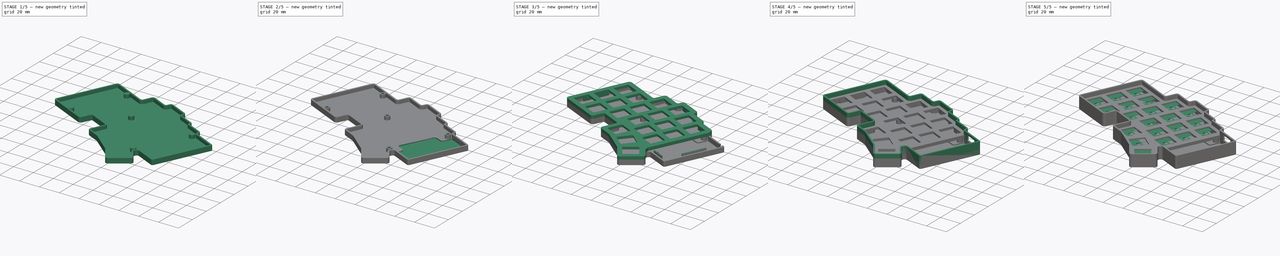
[diagram: build sequence overview — one tinted view per stage of 5, left to right]
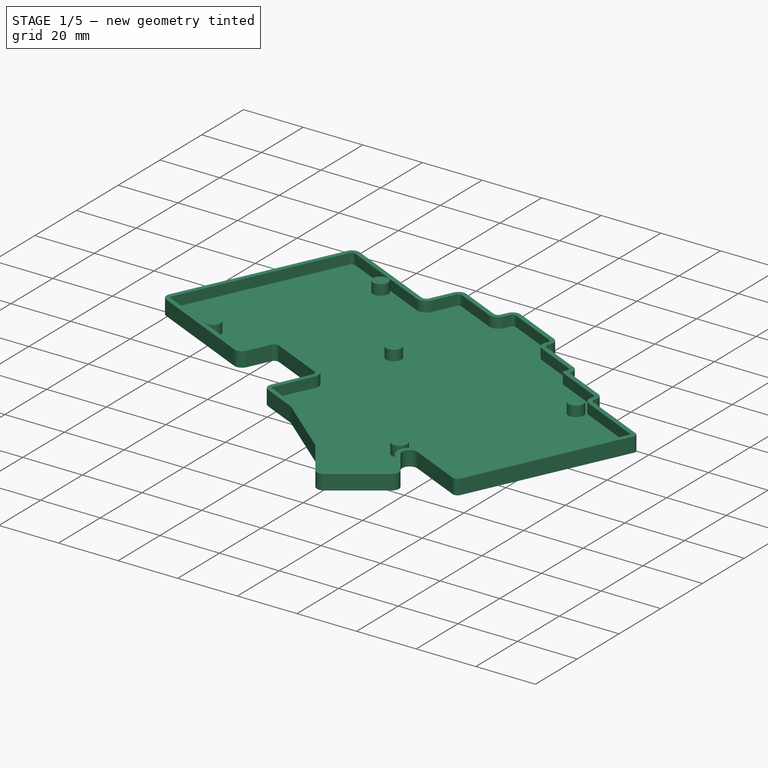
[diagram: stage 1 of 5 — iso view after this stage's code; geometry added in this stage tinted green]
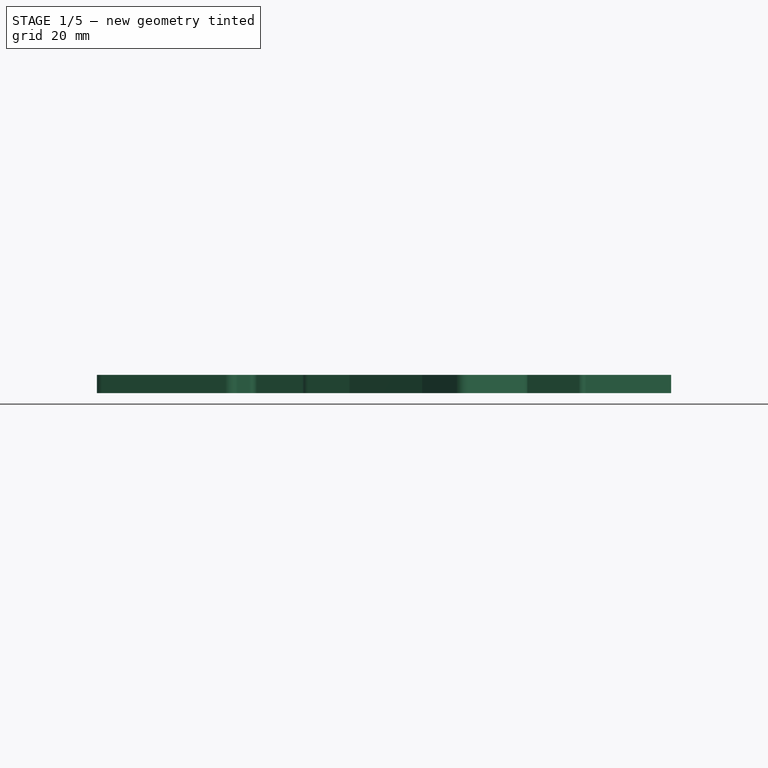
[diagram: stage 1 of 5 — front view after this stage's code; geometry added in this stage tinted green]
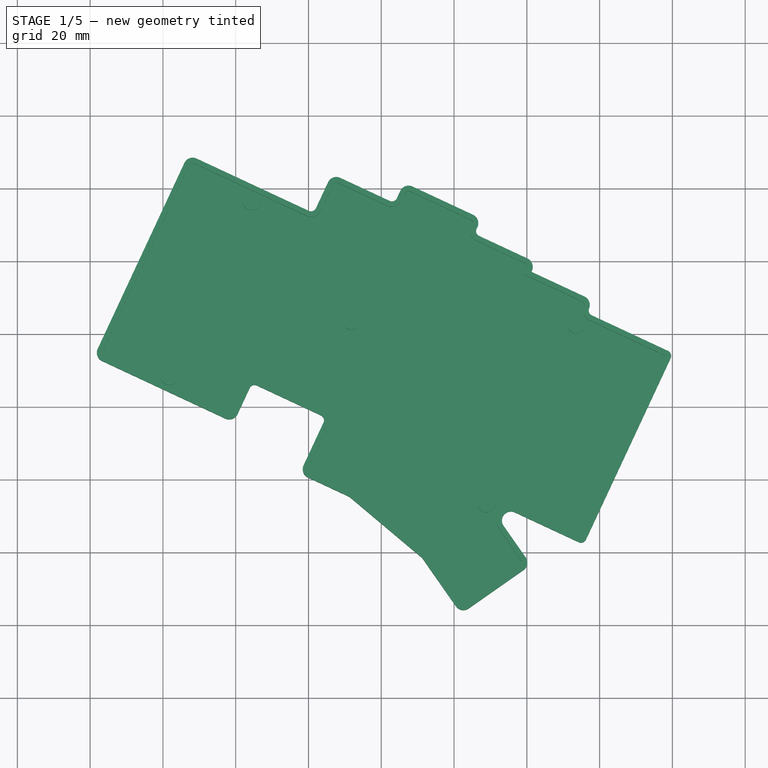
[diagram: stage 1 of 5 — top view after this stage's code; geometry added in this stage tinted green]
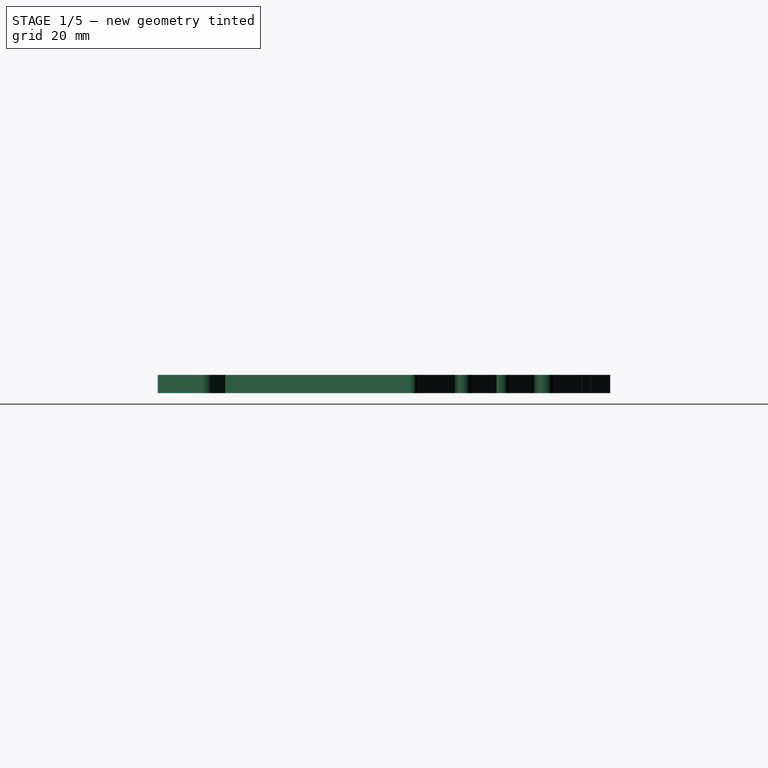
[diagram: stage 1 of 5 — right view after this stage's code; geometry added in this stage tinted green]
FCSTD DOCUMENT  (FreeCAD 0.20R29177 +426 (Git))
Label: Corne_Slim
License: All rights reserved
LicenseURL: http://en.wikipedia.org/wiki/All_rights_reserved
objects: Sketcher::SketchObject×16, PartDesign::Pad×8, PartDesign::Pocket×8, PartDesign::Body×3
note: 51 computed .brp shape members not serialized (recipe doc carries the construction recipe); baked Part::Feature solids carry a one-line shape summary decoded from their .brp

FEATURE [PartDesign::Body] Body002  label="Base_SW_E"
  Group = -> [Sketch004,Pad002,Sketch008,Pocket002,Sketch012,Pad004,Sketch014,Pocket006,Sketch015,Pad006,Sketch016,Pocket007]
  Origin = -> Origin002
  Tip = -> Pocket007
FEATURE [Sketcher::SketchObject] Sketch017
  FullyConstrained = false
  Placement = pos=(0,0,0) rot=(0,0,1;3.14159rad)
  sketch-geometry (88):
    g0: ArcOfCircle CenterX=-107.644 CenterY=-0.677146 CenterZ=0 NormalX=0 NormalY=0 NormalZ=1 AngleXU=3.14159 Radius=1 StartAngle=1.13446 EndAngle=2.70526
    g1: ArcOfCircle CenterX=-127.488 CenterY=1.70474 CenterZ=0 NormalX=0 NormalY=0 NormalZ=1 AngleXU=3.14159 Radius=1 StartAngle=1.13446 EndAngle=2.70526
    g2: LineSegment StartX=-127.911 StartY=0.798428 StartZ=0 EndX=-144.587 EndY=8.5746 EndZ=0
    g3: ArcOfCircle CenterX=-144.164 CenterY=9.48091 CenterZ=0 NormalX=0 NormalY=0 NormalZ=1 AngleXU=3.14159 Radius=1 StartAngle=5.84685 EndAngle=7.41765
    g4: ArcOfCircle CenterX=-100.907 CenterY=77.1421 CenterZ=0 NormalX=0 NormalY=0 NormalZ=1 AngleXU=3.14159 Radius=1 StartAngle=2.70526 EndAngle=4.27536
    g5: LineSegment StartX=-108.066 StartY=-1.58345 StartZ=0 EndX=-121.654 EndY=4.75244 EndZ=0
    g6: LineSegment StartX=-126.582 StartY=1.28212 StartZ=0 EndX=-125.64 EndY=3.30137 EndZ=0
    g7: ArcOfCircle CenterX=-122.921 CenterY=2.03352 CenterZ=0 NormalX=0 NormalY=0 NormalZ=1 AngleXU=3.14159 Radius=3 StartAngle=4.27606 EndAngle=5.84685
    g8: LineSegment StartX=-145.071 StartY=9.90353 StartZ=0 EndX=-144.829 EndY=10.4219 EndZ=0
    g9: ArcOfCircle CenterX=-147.548 CenterY=11.6898 CenterZ=0 NormalX=0 NormalY=0 NormalZ=1 AngleXU=3.14159 Radius=3 StartAngle=2.70526 EndAngle=4.27606
    g10: ArcOfCircle CenterX=-85.1953 CenterY=55.4896 CenterZ=0 NormalX=0 NormalY=0 NormalZ=1 AngleXU=3.14159 Radius=3 StartAngle=1.13376 EndAngle=2.70526
    g11: LineSegment StartX=-105.482 StartY=64.9645 StartZ=0 EndX=-100.001 EndY=76.7195 EndZ=0
    g12: LineSegment StartX=-86.4651 StartY=52.7715 StartZ=0 EndX=-104.033 EndY=60.9786 EndZ=0
    g13: ArcOfCircle CenterX=-102.763 CenterY=63.6967 CenterZ=0 NormalX=0 NormalY=0 NormalZ=1 AngleXU=3.14159 Radius=3 StartAngle=5.84685 EndAngle=7.41695
    g14: LineSegment StartX=-100.484 StartY=78.0481 StartZ=0 EndX=-111.722 EndY=83.298 EndZ=0
    g15: ArcOfCircle CenterX=-110.452 CenterY=86.0161 CenterZ=0 NormalX=0 NormalY=0 NormalZ=1 AngleXU=3.14159 Radius=3 StartAngle=0.871929 EndAngle=1.13377
    g16: LineSegment StartX=-160.152 StartY=24.0289 StartZ=0 EndX=-175.22 EndY=31.0553 EndZ=0
    g17: ArcOfCircle CenterX=-160.575 CenterY=23.1226 CenterZ=0 NormalX=0 NormalY=0 NormalZ=1 AngleXU=3.14159 Radius=1 StartAngle=2.70526 EndAngle=4.27606
    g18: LineSegment StartX=-146.28 StartY=14.4087 StartZ=0 EndX=-159.546 EndY=20.5949 EndZ=0
    g19: LineSegment StartX=-160.03 StartY=21.9239 StartZ=0 EndX=-159.668 EndY=22.7 EndZ=0
    g20: ArcOfCircle CenterX=-159.124 CenterY=21.5013 CenterZ=0 NormalX=0 NormalY=0 NormalZ=1 AngleXU=3.14159 Radius=1 StartAngle=5.84685 EndAngle=7.41765
    g21: ArcOfCircle CenterX=-44.3394 CenterY=45.1257 CenterZ=0 NormalX=0 NormalY=0 NormalZ=1 AngleXU=3.14159 Radius=1 StartAngle=2.70526 EndAngle=4.27536
    g22: LineSegment StartX=-43.9162 StartY=46.0317 StartZ=0 EndX=-77.8082 EndY=61.8648 EndZ=0
    g23: LineSegment StartX=-82.4764 StartY=54.2217 StartZ=0 EndX=-79.1378 EndY=61.3814 EndZ=0
    g24: ArcOfCircle CenterX=-78.2315 CenterY=60.9587 CenterZ=0 NormalX=0 NormalY=0 NormalZ=1 AngleXU=3.14159 Radius=1 StartAngle=4.27536 EndAngle=5.84685
    g25: LineSegment StartX=-106.737 StartY=-1.09976 StartZ=0 EndX=-103.409 EndY=6.03832 EndZ=0
    g26: ArcOfCircle CenterX=-100.69 CenterY=4.77046 CenterZ=0 NormalX=0 NormalY=0 NormalZ=1 AngleXU=3.14159 Radius=3 StartAngle=4.27606 EndAngle=5.84685
    g27: LineSegment StartX=-67.2641 StartY=-6.40271 StartZ=0 EndX=-43.4331 EndY=44.7031 EndZ=0
    g28: LineSegment StartX=-68.5931 StartY=-6.8864 StartZ=0 EndX=-99.422 EndY=7.48938 EndZ=0
    g29: ArcOfCircle CenterX=-68.1704 CenterY=-5.98009 CenterZ=0 NormalX=0 NormalY=0 NormalZ=1 AngleXU=3.14159 Radius=1 StartAngle=1.13446 EndAngle=2.70526
    g30: ArcOfCircle CenterX=-142.568 CenterY=113.369 CenterZ=0 NormalX=0 NormalY=0 NormalZ=1 AngleXU=3.14159 Radius=1 StartAngle=3.75176 EndAngle=5.32324
    g31: LineSegment StartX=-158.215 StartY=103.634 StartZ=0 EndX=-143.142 EndY=114.189 EndZ=0
    g32: ArcOfCircle CenterX=-157.642 CenterY=102.815 CenterZ=0 NormalX=0 NormalY=0 NormalZ=1 AngleXU=3.14159 Radius=1 StartAngle=5.32324 EndAngle=6.89404
    g33: LineSegment StartX=-152.38 StartY=93.5569 StartZ=0 EndX=-158.461 EndY=102.241 EndZ=0
    g34: ArcOfCircle CenterX=-155.657 CenterY=91.2626 CenterZ=0 NormalX=0 NormalY=0 NormalZ=1 AngleXU=3.14159 Radius=4 StartAngle=1.13447 EndAngle=3.75245
    g35: LineSegment StartX=-65.9047 StartY=-7.03664 StartZ=0 EndX=-42.0736 EndY=44.0692 EndZ=0
    g36: ArcOfCircle CenterX=-68.1704 CenterY=-5.98009 CenterZ=0 NormalX=0 NormalY=0 NormalZ=1 AngleXU=3.14159 Radius=2.5 StartAngle=1.13446 EndAngle=2.70526
    g37: LineSegment StartX=-69.227 StartY=-8.24586 StartZ=0 EndX=-100.056 EndY=6.12992 EndZ=0
    g38: ArcOfCircle CenterX=-155.657 CenterY=91.2626 CenterZ=0 NormalX=0 NormalY=0 NormalZ=1 AngleXU=3.14159 Radius=2.5 StartAngle=1.13446 EndAngle=3.75244
    g39: LineSegment StartX=-153.609 StartY=92.6965 StartZ=0 EndX=-159.69 EndY=101.381 EndZ=0
    g40: ArcOfCircle CenterX=-157.642 CenterY=102.815 CenterZ=0 NormalX=0 NormalY=0 NormalZ=1 AngleXU=3.14159 Radius=2.5 StartAngle=5.32324 EndAngle=6.89404
    g41: LineSegment StartX=-159.076 StartY=104.863 StartZ=0 EndX=-144.002 EndY=115.417 EndZ=0
    g42: ArcOfCircle CenterX=-142.568 CenterY=113.369 CenterZ=0 NormalX=0 NormalY=0 NormalZ=1 AngleXU=3.14159 Radius=2.5 StartAngle=3.75176 EndAngle=5.32324
    g43: LineSegment StartX=-99.8491 StartY=79.4071 StartZ=0 EndX=-111.087 EndY=84.6571 EndZ=0
    g44: ArcOfCircle CenterX=-110.452 CenterY=86.0161 CenterZ=0 NormalX=0 NormalY=0 NormalZ=1 AngleXU=3.14159 Radius=1.5 StartAngle=0.871929 EndAngle=1.13377
    g45: ArcOfCircle CenterX=-100.907 CenterY=77.1421 CenterZ=0 NormalX=0 NormalY=0 NormalZ=1 AngleXU=3.14159 Radius=2.5 StartAngle=2.70526 EndAngle=4.27536
    g46: LineSegment StartX=-104.123 StartY=64.3306 StartZ=0 EndX=-98.6415 EndY=76.0855 EndZ=0
    g47: ArcOfCircle CenterX=-102.763 CenterY=63.6967 CenterZ=0 NormalX=0 NormalY=0 NormalZ=1 AngleXU=3.14159 Radius=1.5 StartAngle=5.84685 EndAngle=7.41695
    g48: LineSegment StartX=-85.8302 StartY=54.1305 StartZ=0 EndX=-103.398 EndY=62.3376 EndZ=0
    g49: ArcOfCircle CenterX=-85.1953 CenterY=55.4896 CenterZ=0 NormalX=0 NormalY=0 NormalZ=1 AngleXU=3.14159 Radius=1.5 StartAngle=1.13376 EndAngle=2.70526
    g50: LineSegment StartX=-83.8359 StartY=54.8556 StartZ=0 EndX=-80.4973 EndY=62.0153 EndZ=0
    g51: ArcOfCircle CenterX=-78.2315 CenterY=60.9587 CenterZ=0 NormalX=0 NormalY=0 NormalZ=1 AngleXU=3.14159 Radius=2.5 StartAngle=4.27536 EndAngle=5.84685
    g52: LineSegment StartX=-43.2813 StartY=47.3907 StartZ=0 EndX=-77.1734 EndY=63.2238 EndZ=0
    g53: ArcOfCircle CenterX=-44.3394 CenterY=45.1257 CenterZ=0 NormalX=0 NormalY=0 NormalZ=1 AngleXU=3.14159 Radius=2.5 StartAngle=2.70526 EndAngle=4.27536
    g54: ArcOfCircle CenterX=-100.69 CenterY=4.77046 CenterZ=0 NormalX=0 NormalY=0 NormalZ=1 AngleXU=3.14159 Radius=1.5 StartAngle=4.27606 EndAngle=5.84685
    g55: LineSegment StartX=-105.378 StartY=-1.73369 StartZ=0 EndX=-102.049 EndY=5.40439 EndZ=0
    g56: ArcOfCircle CenterX=-107.644 CenterY=-0.677146 CenterZ=0 NormalX=0 NormalY=0 NormalZ=1 AngleXU=3.14159 Radius=2.5 StartAngle=1.13446 EndAngle=2.70526
    g57: LineSegment StartX=-108.7 StartY=-2.94292 StartZ=0 EndX=-122.288 EndY=3.39298 EndZ=0
    g58: ArcOfCircle CenterX=-122.921 CenterY=2.03352 CenterZ=0 NormalX=0 NormalY=0 NormalZ=1 AngleXU=3.14159 Radius=1.5 StartAngle=4.27606 EndAngle=5.84685
    g59: LineSegment StartX=-125.223 StartY=0.64819 StartZ=0 EndX=-124.281 EndY=2.66744 EndZ=0
    g60: ArcOfCircle CenterX=-127.488 CenterY=1.70474 CenterZ=0 NormalX=0 NormalY=0 NormalZ=1 AngleXU=3.14159 Radius=2.5 StartAngle=1.13446 EndAngle=2.70526
    g61: LineSegment StartX=-128.545 StartY=-0.561034 StartZ=0 EndX=-145.221 EndY=7.21514 EndZ=0
    g62: ArcOfCircle CenterX=-144.164 CenterY=9.48091 CenterZ=0 NormalX=0 NormalY=0 NormalZ=1 AngleXU=3.14159 Radius=2.5 StartAngle=5.84685 EndAngle=7.41765
    g63: LineSegment StartX=-146.43 StartY=10.5375 StartZ=0 EndX=-146.188 EndY=11.0559 EndZ=0
    g64: ArcOfCircle CenterX=-147.548 CenterY=11.6898 CenterZ=0 NormalX=0 NormalY=0 NormalZ=1 AngleXU=3.14159 Radius=1.5 StartAngle=2.70526 EndAngle=4.27606
    g65: LineSegment StartX=-146.914 StartY=13.0493 StartZ=0 EndX=-160.18 EndY=19.2355 EndZ=0
    g66: ArcOfCircle CenterX=-159.124 CenterY=21.5013 CenterZ=0 NormalX=0 NormalY=0 NormalZ=1 AngleXU=3.14159 Radius=2.5 StartAngle=5.84685 EndAngle=7.41765
    g67: LineSegment StartX=-161.39 StartY=22.5578 StartZ=0 EndX=-161.366 EndY=22.6089 EndZ=0
    g68: LineSegment StartX=-161.511 StartY=23.0075 StartZ=0 EndX=-175.854 EndY=29.6958 EndZ=0
    g69: ArcOfCircle CenterX=-161.638 CenterY=22.7357 CenterZ=0 NormalX=0 NormalY=0 NormalZ=1 AngleXU=3.14159 Radius=0.3 StartAngle=2.70526 EndAngle=4.27606
    g70: LineSegment StartX=-177.859 StartY=34.8612 StartZ=0 EndX=-198.794 EndY=44.6233 EndZ=0
    g71: ArcOfCircle CenterX=-198.16 CenterY=45.9828 CenterZ=0 NormalX=0 NormalY=0 NormalZ=1 AngleXU=3.14159 Radius=1.5 StartAngle=5.84657 EndAngle=7.41765
    g72: LineSegment StartX=-177.225 StartY=36.2207 StartZ=0 EndX=-198.16 EndY=45.9828 EndZ=0
    g73: LineSegment StartX=-157.347 StartY=87.6374 StartZ=0 EndX=-174.902 EndY=95.823 EndZ=0
    g74: LineSegment StartX=-198.16 StartY=45.9828 StartZ=0 EndX=-174.902 EndY=95.823 EndZ=0
    g75: LineSegment StartX=-199.519 StartY=46.6171 StartZ=0 EndX=-176.261 EndY=96.4573 EndZ=0
    g76: LineSegment StartX=-156.713 StartY=88.9968 StartZ=0 EndX=-174.268 EndY=97.1825 EndZ=0
    g77: ArcOfCircle CenterX=-174.902 CenterY=95.823 CenterZ=0 NormalX=0 NormalY=0 NormalZ=1 AngleXU=3.14159 Radius=1.5 StartAngle=4.27606 EndAngle=5.84657
    g78: ArcOfCircle CenterX=-178.493 CenterY=33.5017 CenterZ=0 NormalX=0 NormalY=0 NormalZ=1 AngleXU=3.14159 Radius=3 StartAngle=2.78845 EndAngle=4.27606
    g79: ArcOfCircle CenterX=-174.797 CenterY=31.9616 CenterZ=0 NormalX=0 NormalY=0 NormalZ=1 AngleXU=3.14159 Radius=1 StartAngle=5.93004 EndAngle=7.41765
    g80: LineSegment StartX=-175.678 StartY=32.4642 StartZ=0 EndX=-175.736 EndY=32.3074 EndZ=0
    g81: ArcOfCircle CenterX=-174.797 CenterY=31.9616 CenterZ=0 NormalX=0 NormalY=0 NormalZ=1 AngleXU=3.14159 Radius=2.5 StartAngle=5.93004 EndAngle=7.41765
    g82: ArcOfCircle CenterX=-178.493 CenterY=33.5017 CenterZ=0 NormalX=0 NormalY=0 NormalZ=1 AngleXU=3.14159 Radius=1.5 StartAngle=2.78845 EndAngle=4.27606
    g83: LineSegment StartX=-177.085 StartY=32.983 StartZ=0 EndX=-177.143 EndY=32.8262 EndZ=0
    g84: LineSegment StartX=-131.232 StartY=101.519 StartZ=0 EndX=-140.519 EndY=114.802 EndZ=0
    g85: LineSegment StartX=-111.417 StartY=84.8677 StartZ=0 EndX=-131.232 EndY=101.519 EndZ=0
    g86: LineSegment StartX=-132.349 StartY=100.498 StartZ=0 EndX=-141.748 EndY=113.942 EndZ=0
    g87: LineSegment StartX=-112.383 StartY=83.7194 StartZ=0 EndX=-132.349 EndY=100.498 EndZ=0
  constraints (88):
    c: Coincident(g71,g75)
    c: Coincident(g70,g71)
    c: Coincident(g72,g74)
    c: Coincident(g70,g82)
    c: Coincident(g72,g78)
    c: Coincident(g81,g83)
    c: Coincident(g82,g83)
    c: Coincident(g75,g77)
    c: Coincident(g68,g81)
    c: Coincident(g79,g80)
    c: Coincident(g78,g80)
    c: Coincident(g16,g79)
    c: Coincident(g73,g74)
    c: Coincident(g76,g77)
    c: Coincident(g68,g69)
    c: Coincident(g66,g67)
    c: Coincident(g67,g69)
    c: Coincident(g65,g66)
    c: Coincident(g16,g17)
    c: Coincident(g19,g20)
    c: Coincident(g39,g40)
    c: Coincident(g17,g19)
    c: Coincident(g18,g20)
    c: Coincident(g40,g41)
    c: Coincident(g32,g33)
    c: Coincident(g31,g32)
    c: Coincident(g34,g73)
    c: Coincident(g38,g76)
    c: Coincident(g38,g39)
    c: Coincident(g33,g34)
    c: Coincident(g64,g65)
    c: Coincident(g62,g63)
    c: Coincident(g9,g18)
    c: Coincident(g63,g64)
    c: Coincident(g61,g62)
    c: Coincident(g3,g8)
    c: Coincident(g8,g9)
    c: Coincident(g2,g3)
    c: Coincident(g41,g42)
    c: Coincident(g30,g31)
    c: Coincident(g30,g86)
    c: Coincident(g42,g84)
    c: Coincident(g86,g87)
    c: Coincident(g84,g85)
    c: Coincident(g60,g61)
    c: Coincident(g1,g2)
    c: Coincident(g1,g6)
    c: Coincident(g6,g7)
    c: Coincident(g59,g60)
    c: Coincident(g58,g59)
    c: Coincident(g57,g58)
    c: Coincident(g5,g7)
    c: Coincident(g15,g87)
    c: Coincident(g14,g15)
    c: Coincident(g44,g85)
    c: Coincident(g43,g44)
    c: Coincident(g56,g57)
    c: Coincident(g0,g5)
    c: Coincident(g0,g25)
    c: Coincident(g11,g13)
    c: Coincident(g55,g56)
    c: Coincident(g46,g47)
    c: Coincident(g12,g13)
    c: Coincident(g25,g26)
    c: Coincident(g47,g48)
    c: Coincident(g54,g55)
    c: Coincident(g4,g14)
    c: Coincident(g37,g54)
    c: Coincident(g4,g11)
    c: Coincident(g43,g45)
    c: Coincident(g26,g28)
    c: Coincident(g45,g46)
    c: Coincident(g10,g12)
    c: Coincident(g48,g49)
    c: Coincident(g49,g50)
    c: Coincident(g10,g23)
    c: Coincident(g50,g51)
    c: Coincident(g23,g24)
    c: Coincident(g22,g24)
    c: Coincident(g51,g52)
    c: Coincident(g36,g37)
    c: Coincident(g28,g29)
    c: Coincident(g27,g29)
    c: Coincident(g35,g36)
    c: Coincident(g21,g22)
    c: Coincident(g21,g27)
    c: Coincident(g52,g53)
    c: Coincident(g35,g53)
FEATURE [PartDesign::Pad] Pad007
  Direction = (0,0,1)
  Length = 5
  Length2 = 10
  Placement = pos=(0,0,0) rot=(0,0,1;3.14159rad)
  Profile = -> Sketch017
  ReferenceAxis = -> Sketch017 [N_Axis]
  Reversed = true
  Type = 0
FEATURE [Sketcher::SketchObject] Sketch018
  FullyConstrained = false
  sketch-geometry (5):
    g0: Circle CenterX=148.963 CenterY=-86.4822 CenterZ=0 NormalX=0 NormalY=0 NormalZ=-1 AngleXU=0 Radius=1.4
    g1: Circle CenterX=173.648 CenterY=-37.2613 CenterZ=0 NormalX=0 NormalY=0 NormalZ=-1 AngleXU=0 Radius=1.4
    g2: Circle CenterX=111.811 CenterY=-36.247 CenterZ=0 NormalX=0 NormalY=0 NormalZ=-1 AngleXU=0 Radius=1.4
    g3: Circle CenterX=84.4174 CenterY=-3.42808 CenterZ=0 NormalX=0 NormalY=0 NormalZ=-1 AngleXU=0 Radius=1.4
    g4: Circle CenterX=61.8261 CenterY=-51.4332 CenterZ=0 NormalX=0 NormalY=0 NormalZ=-1 AngleXU=0 Radius=1.4
FEATURE [Sketcher::SketchObject] Sketch019
  FullyConstrained = false
  Placement = pos=(0,0,-5) rot=(0,0,1;0rad)
  sketch-geometry (45):
    g0: LineSegment StartX=65.9047 StartY=7.03664 StartZ=0 EndX=42.0736 EndY=-44.0692 EndZ=0
    g1: ArcOfCircle CenterX=68.1704 CenterY=5.98009 CenterZ=0 NormalX=0 NormalY=0 NormalZ=1 AngleXU=0 Radius=2.5 StartAngle=1.13446 EndAngle=2.70526
    g2: LineSegment StartX=69.227 StartY=8.24586 StartZ=0 EndX=100.056 EndY=-6.12992 EndZ=0
    g3: ArcOfCircle CenterX=155.657 CenterY=-91.2626 CenterZ=0 NormalX=0 NormalY=0 NormalZ=1 AngleXU=0 Radius=2.5 StartAngle=1.13446 EndAngle=3.75244
    g4: LineSegment StartX=153.609 StartY=-92.6965 StartZ=0 EndX=159.69 EndY=-101.381 EndZ=0
    g5: ArcOfCircle CenterX=157.642 CenterY=-102.815 CenterZ=0 NormalX=0 NormalY=0 NormalZ=1 AngleXU=0 Radius=2.5 StartAngle=5.32324 EndAngle=6.89404
    g6: LineSegment StartX=159.076 StartY=-104.863 StartZ=0 EndX=144.002 EndY=-115.417 EndZ=0
    g7: ArcOfCircle CenterX=142.568 CenterY=-113.369 CenterZ=0 NormalX=0 NormalY=0 NormalZ=1 AngleXU=0 Radius=2.5 StartAngle=3.75176 EndAngle=5.32324
    g8: LineSegment StartX=99.8491 StartY=-79.4071 StartZ=0 EndX=111.087 EndY=-84.6571 EndZ=0
    g9: ArcOfCircle CenterX=110.452 CenterY=-86.0161 CenterZ=0 NormalX=0 NormalY=0 NormalZ=1 AngleXU=0 Radius=1.5 StartAngle=0.871929 EndAngle=1.13377
    g10: ArcOfCircle CenterX=100.907 CenterY=-77.1421 CenterZ=0 NormalX=0 NormalY=0 NormalZ=1 AngleXU=0 Radius=2.5 StartAngle=2.70526 EndAngle=4.27536
    g11: LineSegment StartX=104.123 StartY=-64.3306 StartZ=0 EndX=98.6415 EndY=-76.0855 EndZ=0
    g12: ArcOfCircle CenterX=102.763 CenterY=-63.6967 CenterZ=0 NormalX=0 NormalY=0 NormalZ=1 AngleXU=0 Radius=1.5 StartAngle=5.84685 EndAngle=7.41695
    g13: LineSegment StartX=85.8302 StartY=-54.1305 StartZ=0 EndX=103.398 EndY=-62.3376 EndZ=0
    g14: ArcOfCircle CenterX=85.1953 CenterY=-55.4896 CenterZ=0 NormalX=0 NormalY=0 NormalZ=1 AngleXU=0 Radius=1.5 StartAngle=1.13376 EndAngle=2.70526
    g15: LineSegment StartX=83.8359 StartY=-54.8556 StartZ=0 EndX=80.4973 EndY=-62.0153 EndZ=0
    g16: ArcOfCircle CenterX=78.2315 CenterY=-60.9587 CenterZ=0 NormalX=0 NormalY=0 NormalZ=1 AngleXU=0 Radius=2.5 StartAngle=4.27536 EndAngle=5.84685
    g17: LineSegment StartX=43.2813 StartY=-47.3907 StartZ=0 EndX=77.1734 EndY=-63.2238 EndZ=0
    g18: ArcOfCircle CenterX=44.3394 CenterY=-45.1257 CenterZ=0 NormalX=0 NormalY=0 NormalZ=1 AngleXU=0 Radius=2.5 StartAngle=2.70526 EndAngle=4.27536
    g19: ArcOfCircle CenterX=100.69 CenterY=-4.77046 CenterZ=0 NormalX=0 NormalY=0 NormalZ=1 AngleXU=0 Radius=1.5 StartAngle=4.27606 EndAngle=5.84685
    g20: LineSegment StartX=105.378 StartY=1.73369 StartZ=0 EndX=102.049 EndY=-5.40439 EndZ=0
    g21: ArcOfCircle CenterX=107.644 CenterY=0.677146 CenterZ=0 NormalX=0 NormalY=0 NormalZ=1 AngleXU=0 Radius=2.5 StartAngle=1.13446 EndAngle=2.70526
    g22: LineSegment StartX=108.7 StartY=2.94292 StartZ=0 EndX=122.288 EndY=-3.39298 EndZ=0
    g23: ArcOfCircle CenterX=122.921 CenterY=-2.03352 CenterZ=0 NormalX=0 NormalY=0 NormalZ=1 AngleXU=0 Radius=1.5 StartAngle=4.27606 EndAngle=5.84685
    g24: LineSegment StartX=125.223 StartY=-0.64819 StartZ=0 EndX=124.281 EndY=-2.66744 EndZ=0
    g25: ArcOfCircle CenterX=127.488 CenterY=-1.70474 CenterZ=0 NormalX=0 NormalY=0 NormalZ=1 AngleXU=0 Radius=2.5 StartAngle=1.13446 EndAngle=2.70526
    g26: LineSegment StartX=128.545 StartY=0.561034 StartZ=0 EndX=145.221 EndY=-7.21514 EndZ=0
    g27: ArcOfCircle CenterX=144.164 CenterY=-9.48091 CenterZ=0 NormalX=0 NormalY=0 NormalZ=1 AngleXU=0 Radius=2.5 StartAngle=5.84685 EndAngle=7.41765
    g28: LineSegment StartX=146.43 StartY=-10.5375 StartZ=0 EndX=146.188 EndY=-11.0559 EndZ=0
    g29: ArcOfCircle CenterX=147.548 CenterY=-11.6898 CenterZ=0 NormalX=0 NormalY=0 NormalZ=1 AngleXU=0 Radius=1.5 StartAngle=2.70526 EndAngle=4.27606
    g30: LineSegment StartX=146.914 StartY=-13.0493 StartZ=0 EndX=160.18 EndY=-19.2355 EndZ=0
    g31: ArcOfCircle CenterX=159.124 CenterY=-21.5013 CenterZ=0 NormalX=0 NormalY=0 NormalZ=1 AngleXU=0 Radius=2.5 StartAngle=5.84685 EndAngle=7.41765
    g32: LineSegment StartX=161.39 StartY=-22.5578 StartZ=0 EndX=161.366 EndY=-22.6089 EndZ=0
    g33: LineSegment StartX=161.511 StartY=-23.0075 StartZ=0 EndX=175.854 EndY=-29.6958 EndZ=0
    g34: ArcOfCircle CenterX=161.638 CenterY=-22.7357 CenterZ=0 NormalX=0 NormalY=0 NormalZ=1 AngleXU=0 Radius=0.3 StartAngle=2.70526 EndAngle=4.27606
    g35: LineSegment StartX=177.859 StartY=-34.8612 StartZ=0 EndX=198.794 EndY=-44.6233 EndZ=0
    g36: ArcOfCircle CenterX=198.16 CenterY=-45.9828 CenterZ=0 NormalX=0 NormalY=0 NormalZ=1 AngleXU=0 Radius=1.5 StartAngle=5.84657 EndAngle=7.41765
    g37: LineSegment StartX=199.519 StartY=-46.6171 StartZ=0 EndX=176.261 EndY=-96.4573 EndZ=0
    g38: LineSegment StartX=156.713 StartY=-88.9968 StartZ=0 EndX=174.268 EndY=-97.1825 EndZ=0
    g39: ArcOfCircle CenterX=174.902 CenterY=-95.823 CenterZ=0 NormalX=0 NormalY=0 NormalZ=1 AngleXU=0 Radius=1.5 StartAngle=4.27606 EndAngle=5.84657
    g40: ArcOfCircle CenterX=174.797 CenterY=-31.9616 CenterZ=0 NormalX=0 NormalY=0 NormalZ=1 AngleXU=0 Radius=2.5 StartAngle=5.93004 EndAngle=7.41765
    g41: ArcOfCircle CenterX=178.493 CenterY=-33.5017 CenterZ=0 NormalX=0 NormalY=0 NormalZ=1 AngleXU=0 Radius=1.5 StartAngle=2.78845 EndAngle=4.27606
    g42: LineSegment StartX=177.085 StartY=-32.983 StartZ=0 EndX=177.143 EndY=-32.8262 EndZ=0
    g43: LineSegment StartX=131.232 StartY=-101.519 StartZ=0 EndX=140.519 EndY=-114.802 EndZ=0
    g44: LineSegment StartX=111.417 StartY=-84.8677 StartZ=0 EndX=131.232 EndY=-101.519 EndZ=0
  constraints (45):
    c: Coincident(g0,g18)
    c: Coincident(g17,g18)
    c: Coincident(g0,g1)
    c: Coincident(g1,g2)
    c: Coincident(g16,g17)
    c: Coincident(g15,g16)
    c: Coincident(g14,g15)
    c: Coincident(g13,g14)
    c: Coincident(g10,g11)
    c: Coincident(g8,g10)
    c: Coincident(g2,g19)
    c: Coincident(g19,g20)
    c: Coincident(g12,g13)
    c: Coincident(g11,g12)
    c: Coincident(g20,g21)
    c: Coincident(g21,g22)
    c: Coincident(g8,g9)
    c: Coincident(g9,g44)
    c: Coincident(g22,g23)
    c: Coincident(g23,g24)
    c: Coincident(g24,g25)
    c: Coincident(g25,g26)
    c: Coincident(g43,g44)
    c: Coincident(g7,g43)
    c: Coincident(g6,g7)
    c: Coincident(g26,g27)
    c: Coincident(g28,g29)
    c: Coincident(g27,g28)
    c: Coincident(g29,g30)
    c: Coincident(g3,g4)
    c: Coincident(g3,g38)
    c: Coincident(g5,g6)
    c: Coincident(g4,g5)
    c: Coincident(g30,g31)
    c: Coincident(g32,g34)
    c: Coincident(g31,g32)
    c: Coincident(g33,g34)
    c: Coincident(g38,g39)
    c: Coincident(g33,g40)
    c: Coincident(g37,g39)
    c: Coincident(g41,g42)
    c: Coincident(g40,g42)
    c: Coincident(g35,g41)
    c: Coincident(g35,g36)
    c: Coincident(g36,g37)
FEATURE [PartDesign::Pad] Pad008
  BaseFeature = -> Pad007
  Direction = (0,0,1)
  Length = 1.5
  Length2 = 10
  Placement = pos=(0,0,0) rot=(0,0,1;3.14159rad)
  Profile = -> Sketch019
  ReferenceAxis = -> Sketch019 [N_Axis]
  Type = 0
FEATURE [Sketcher::SketchObject] Sketch020
  FullyConstrained = false
  Placement = pos=(0,0,-3.5) rot=(0,0,1;0rad)
  sketch-geometry (5):
    g0: Circle CenterX=148.963 CenterY=-86.4822 CenterZ=0 NormalX=0 NormalY=0 NormalZ=-1 AngleXU=0 Radius=2.55
    g1: Circle CenterX=173.648 CenterY=-37.2613 CenterZ=0 NormalX=0 NormalY=0 NormalZ=-1 AngleXU=0 Radius=2.55
    g2: Circle CenterX=111.811 CenterY=-36.247 CenterZ=0 NormalX=0 NormalY=0 NormalZ=-1 AngleXU=0 Radius=2.55
    g3: Circle CenterX=84.4174 CenterY=-3.42808 CenterZ=0 NormalX=0 NormalY=0 NormalZ=-1 AngleXU=0 Radius=2.55
    g4: Circle CenterX=61.8261 CenterY=-51.4332 CenterZ=0 NormalX=0 NormalY=0 NormalZ=-1 AngleXU=0 Radius=2.55
FEATURE [PartDesign::Pad] Pad009
  BaseFeature = -> Pad008
  Direction = (0,0,1)
  Length = 3.5
  Length2 = 10
  Placement = pos=(0,0,0) rot=(0,0,1;3.14159rad)
  Profile = -> Sketch020
  ReferenceAxis = -> Sketch020 [N_Axis]
  Type = 0
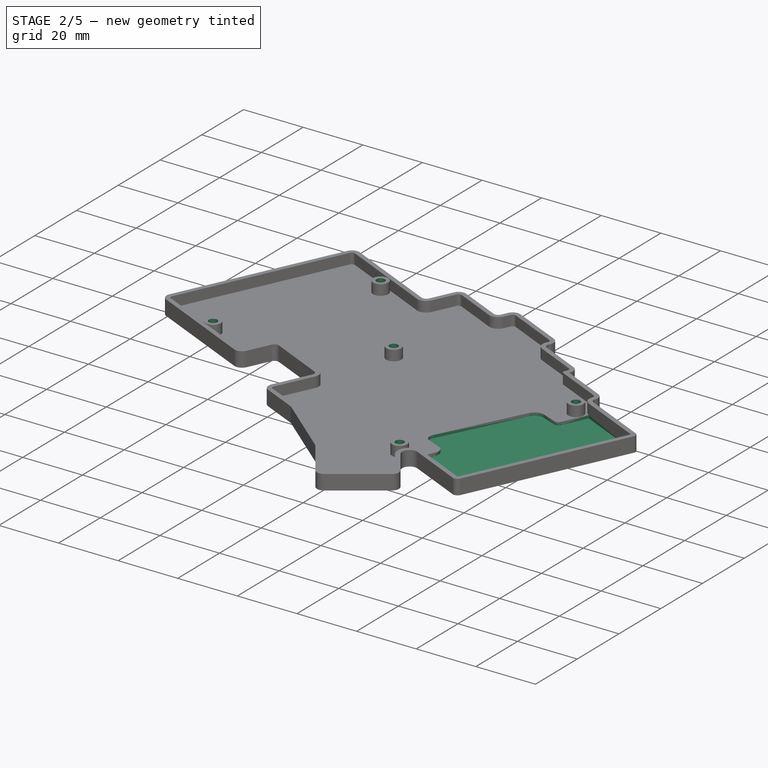
[diagram: stage 2 of 5 — iso view after this stage's code; geometry added in this stage tinted green]
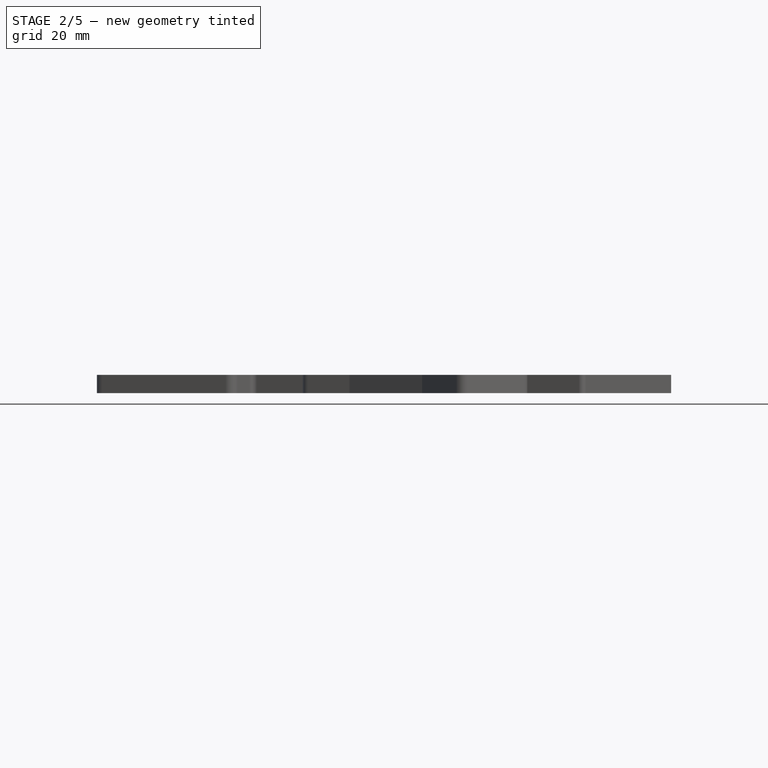
[diagram: stage 2 of 5 — front view after this stage's code; geometry added in this stage tinted green]
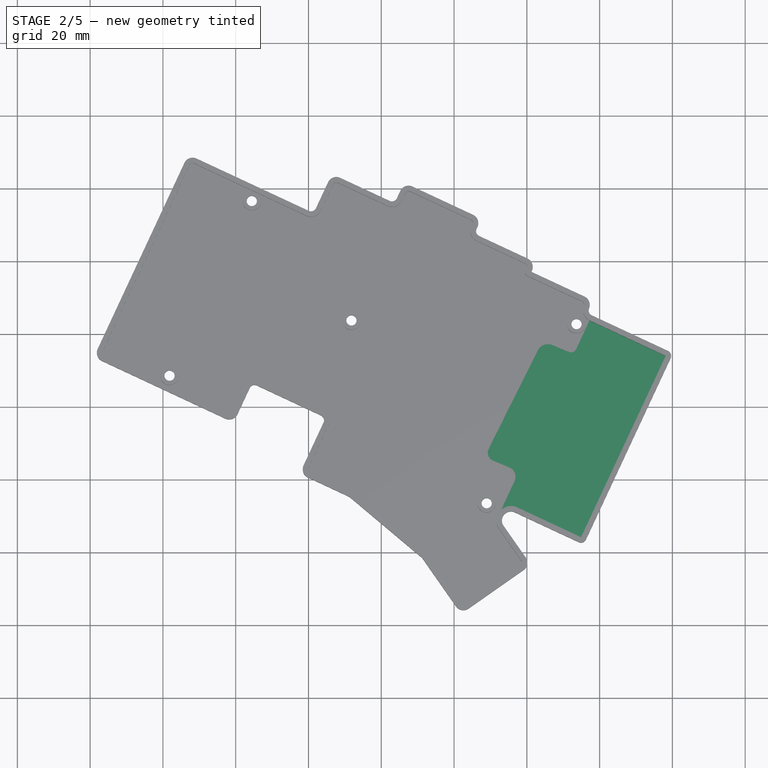
[diagram: stage 2 of 5 — top view after this stage's code; geometry added in this stage tinted green]
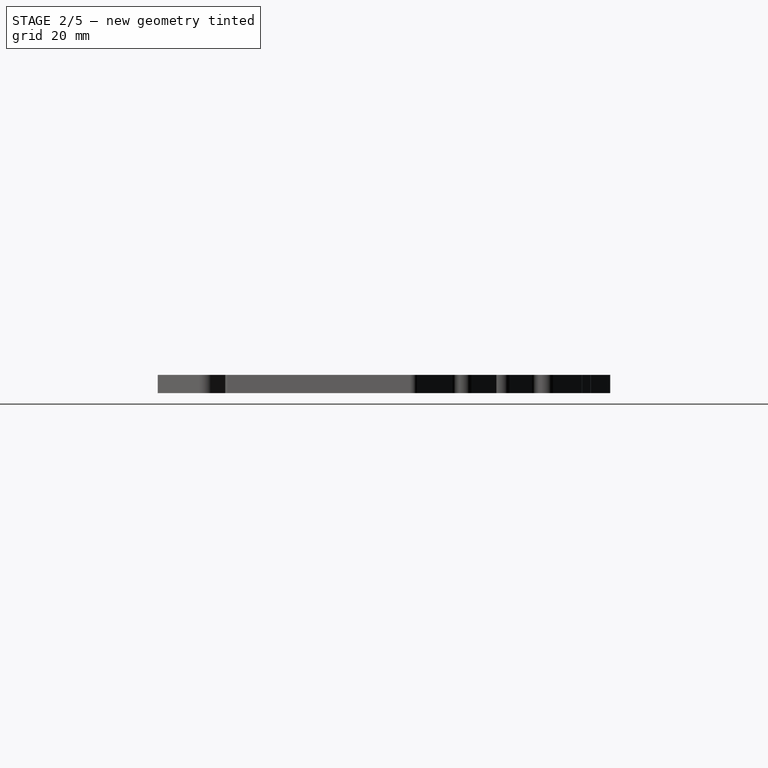
[diagram: stage 2 of 5 — right view after this stage's code; geometry added in this stage tinted green]
FEATURE [PartDesign::Pocket] Pocket008
  BaseFeature = -> Pad009
  Direction = (0,0,-1)
  Length = 5
  Length2 = 5
  Placement = pos=(0,0,0) rot=(0,0,1;3.14159rad)
  Profile = -> Sketch018
  ReferenceAxis = -> Sketch018 [N_Axis]
  Type = 0
FEATURE [Sketcher::SketchObject] Sketch021
  FullyConstrained = false
  Placement = pos=(0,0,-5) rot=(0,0,1;0rad)
  sketch-geometry (5):
    g0: Circle CenterX=148.963 CenterY=-86.4822 CenterZ=0 NormalX=0 NormalY=0 NormalZ=-1 AngleXU=0 Radius=2.55
    g1: Circle CenterX=173.648 CenterY=-37.2613 CenterZ=0 NormalX=0 NormalY=0 NormalZ=-1 AngleXU=0 Radius=2.55
    g2: Circle CenterX=111.811 CenterY=-36.247 CenterZ=0 NormalX=0 NormalY=0 NormalZ=-1 AngleXU=0 Radius=2.55
    g3: Circle CenterX=84.4174 CenterY=-3.42808 CenterZ=0 NormalX=0 NormalY=0 NormalZ=-1 AngleXU=0 Radius=2.55
    g4: Circle CenterX=61.8261 CenterY=-51.4332 CenterZ=0 NormalX=0 NormalY=0 NormalZ=-1 AngleXU=0 Radius=2.55
FEATURE [PartDesign::Pocket] Pocket009
  BaseFeature = -> Pocket008
  Direction = (0,0,-1)
  Length = 1
  Length2 = 5
  Placement = pos=(0,0,0) rot=(0,0,1;3.14159rad)
  Profile = -> Sketch021
  ReferenceAxis = -> Sketch021 [N_Axis]
  Reversed = true
  Type = 0
FEATURE [Sketcher::SketchObject] Sketch023
  FullyConstrained = false
  sketch-geometry (40):
    g0: LineSegment StartX=115.716 StartY=-86.2593 StartZ=0 EndX=116.373 EndY=-85.5053 EndZ=0
    g1: LineSegment StartX=115.716 StartY=-86.2593 StartZ=0 EndX=127.711 EndY=-96.3392 EndZ=0
    g2: LineSegment StartX=116.373 StartY=-85.5053 StartZ=0 EndX=128.361 EndY=-95.5795 EndZ=0
    g3: LineSegment StartX=127.711 StartY=-96.3392 StartZ=0 EndX=128.361 EndY=-95.5795 EndZ=0
    g4: LineSegment StartX=152.782 StartY=-105.974 StartZ=0 EndX=153.411 EndY=-106.754 EndZ=0
    g5: LineSegment StartX=153.411 StartY=-106.754 StartZ=0 EndX=147.258 EndY=-111.062 EndZ=0
    g6: LineSegment StartX=152.782 StartY=-105.974 StartZ=0 EndX=146.72 EndY=-110.218 EndZ=0
    g7: LineSegment StartX=147.258 StartY=-111.062 StartZ=0 EndX=146.72 EndY=-110.218 EndZ=0
    g8: LineSegment StartX=49.0546 StartY=-32.8844 StartZ=0 EndX=49.9609 EndY=-33.3071 EndZ=0
    g9: LineSegment StartX=59.1618 StartY=-11.2093 StartZ=0 EndX=49.0546 EndY=-32.8844 EndZ=0
    g10: LineSegment StartX=59.1618 StartY=-11.2093 StartZ=0 EndX=60.0681 EndY=-11.632 EndZ=0
    g11: LineSegment StartX=60.0681 StartY=-11.632 StartZ=0 EndX=49.9609 EndY=-33.3071 EndZ=0
    g12: LineSegment StartX=89.8765 StartY=-54.2548 StartZ=0 EndX=90.2991 EndY=-53.3485 EndZ=0
    g13: LineSegment StartX=89.8765 StartY=-54.2548 StartZ=0 EndX=100.255 EndY=-59.1031 EndZ=0
    g14: LineSegment StartX=90.2991 StartY=-53.3485 StartZ=0 EndX=100.677 EndY=-58.1968 EndZ=0
    g15: LineSegment StartX=100.255 StartY=-59.1031 StartZ=0 EndX=100.677 EndY=-58.1968 EndZ=0
    g16: LineSegment StartX=158.755 StartY=-88.1833 StartZ=0 EndX=159.177 EndY=-87.277 EndZ=0
    g17: LineSegment StartX=158.755 StartY=-88.1833 StartZ=0 EndX=170.248 EndY=-93.5425 EndZ=0
    g18: LineSegment StartX=159.177 StartY=-87.277 StartZ=0 EndX=170.67 EndY=-92.6362 EndZ=0
    g19: LineSegment StartX=170.248 StartY=-93.5425 StartZ=0 EndX=170.67 EndY=-92.6362 EndZ=0
    g20: LineSegment StartX=190.847 StartY=-59.0524 StartZ=0 EndX=191.753 EndY=-59.475 EndZ=0
    g21: LineSegment StartX=190.847 StartY=-59.0524 StartZ=0 EndX=181.093 EndY=-79.9549 EndZ=0
    g22: LineSegment StartX=191.753 StartY=-59.475 StartZ=0 EndX=181.999 EndY=-80.3775 EndZ=0
    g23: LineSegment StartX=181.093 StartY=-79.9549 StartZ=0 EndX=181.999 EndY=-80.3775 EndZ=0
    g24: LineSegment StartX=127.869 StartY=-0.889059 StartZ=0 EndX=127.446 EndY=-1.79537 EndZ=0
    g25: LineSegment StartX=144.122 StartY=-9.57154 StartZ=0 EndX=144.545 EndY=-8.66523 EndZ=0
    g26: LineSegment StartX=140.654 StartY=-6.85097 StartZ=0 EndX=144.545 EndY=-8.66523 EndZ=0
    g27: LineSegment StartX=140.231 StartY=-7.75727 StartZ=0 EndX=144.122 EndY=-9.57154 EndZ=0
    g28: LineSegment StartX=140.231 StartY=-7.75727 StartZ=0 EndX=140.654 EndY=-6.85097 EndZ=0
    g29: LineSegment StartX=127.869 StartY=-0.889059 StartZ=0 EndX=132.652 EndY=-3.11965 EndZ=0
    g30: LineSegment StartX=132.23 StartY=-4.02596 StartZ=0 EndX=132.652 EndY=-3.11965 EndZ=0
    g31: LineSegment StartX=127.446 StartY=-1.79537 StartZ=0 EndX=132.23 EndY=-4.02596 EndZ=0
    g32: LineSegment StartX=159.077 StartY=-23.8154 StartZ=0 EndX=158.655 EndY=-24.7217 EndZ=0
    g33: LineSegment StartX=159.077 StartY=-23.8154 StartZ=0 EndX=163.861 EndY=-26.046 EndZ=0
    g34: LineSegment StartX=163.438 StartY=-26.9523 StartZ=0 EndX=163.861 EndY=-26.046 EndZ=0
    g35: LineSegment StartX=158.655 StartY=-24.7217 StartZ=0 EndX=163.438 EndY=-26.9523 EndZ=0
    g36: LineSegment StartX=174.408 StartY=-32.0676 StartZ=0 EndX=174.831 EndY=-31.1613 EndZ=0
    g37: LineSegment StartX=170.94 StartY=-29.347 StartZ=0 EndX=174.831 EndY=-31.1613 EndZ=0
    g38: LineSegment StartX=170.517 StartY=-30.2533 StartZ=0 EndX=174.408 EndY=-32.0676 EndZ=0
    g39: LineSegment StartX=170.517 StartY=-30.2533 StartZ=0 EndX=170.94 EndY=-29.347 EndZ=0
  constraints (40):
    c: Coincident(g8,g9)
    c: Coincident(g8,g11)
    c: Coincident(g9,g10)
    c: Coincident(g10,g11)
    c: Coincident(g12,g13)
    c: Coincident(g12,g14)
    c: Coincident(g13,g15)
    c: Coincident(g14,g15)
    c: Coincident(g0,g1)
    c: Coincident(g0,g2)
    c: Coincident(g24,g31)
    c: Coincident(g1,g3)
    c: Coincident(g24,g29)
    c: Coincident(g2,g3)
    c: Coincident(g30,g31)
    c: Coincident(g29,g30)
    c: Coincident(g27,g28)
    c: Coincident(g26,g28)
    c: Coincident(g25,g27)
    c: Coincident(g25,g26)
    c: Coincident(g6,g7)
    c: Coincident(g5,g7)
    c: Coincident(g4,g6)
    c: Coincident(g4,g5)
    c: Coincident(g32,g35)
    c: Coincident(g16,g17)
    c: Coincident(g32,g33)
    c: Coincident(g16,g18)
    c: Coincident(g34,g35)
    c: Coincident(g33,g34)
    c: Coincident(g17,g19)
    c: Coincident(g38,g39)
    c: Coincident(g18,g19)
    c: Coincident(g37,g39)
    c: Coincident(g36,g38)
    c: Coincident(g36,g37)
    c: Coincident(g21,g23)
    c: Coincident(g22,g23)
    c: Coincident(g20,g21)
    c: Coincident(g20,g22)
FEATURE [Sketcher::SketchObject] Sketch025
  FullyConstrained = false
  Placement = pos=(0,0,-3.5) rot=(0,0,1;0rad)
  sketch-geometry (13):
    g0: LineSegment StartX=157.347 StartY=-87.6374 StartZ=0 EndX=174.902 EndY=-95.823 EndZ=0
    g1: LineSegment StartX=198.16 StartY=-45.9828 StartZ=0 EndX=174.902 EndY=-95.823 EndZ=0
    g2: ArcOfCircle CenterX=155.657 CenterY=-91.2626 CenterZ=0 NormalX=0 NormalY=0 NormalZ=1 AngleXU=0 Radius=4 StartAngle=1.13446 EndAngle=2.33701
    g3: LineSegment StartX=177.224 StartY=-36.2203 StartZ=0 EndX=198.16 EndY=-45.9828 EndZ=0
    g4: LineSegment StartX=155.169 StartY=-76.595 StartZ=0 EndX=150.684 EndY=-74.7105 EndZ=0
    g5: LineSegment StartX=171.53 StartY=-44.8702 StartZ=0 EndX=166.983 EndY=-42.9755 EndZ=0
    g6: LineSegment StartX=162.979 StartY=-44.4697 StartZ=0 EndX=149.508 EndY=-71.5454 EndZ=0
    g7: LineSegment StartX=177.224 StartY=-36.2203 StartZ=0 EndX=173.554 EndY=-44.0859 EndZ=0
    g8: LineSegment StartX=156.623 StartY=-80.3656 StartZ=0 EndX=152.883 EndY=-88.3804 EndZ=0
    g9: ArcOfCircle CenterX=172.133 CenterY=-43.4229 CenterZ=0 NormalX=0 NormalY=0 NormalZ=1 AngleXU=0 Radius=1.56793 StartAngle=4.3176 EndAngle=5.84657
    g10: ArcOfCircle CenterX=165.779 CenterY=-45.8632 CenterZ=0 NormalX=0 NormalY=0 NormalZ=1 AngleXU=0 Radius=3.12828 StartAngle=1.176 EndAngle=2.67993
    g11: ArcOfCircle CenterX=151.58 CenterY=-72.5764 CenterZ=0 NormalX=0 NormalY=0 NormalZ=1 AngleXU=0 Radius=2.31475 StartAngle=2.67993 EndAngle=4.31462
    g12: ArcOfCircle CenterX=154.083 CenterY=-79.1799 CenterZ=0 NormalX=0 NormalY=0 NormalZ=1 AngleXU=0 Radius=2.80381 StartAngle=5.84657 EndAngle=7.45621
  constraints (13):
    c: Coincident(g2,g8)
    c: Coincident(g0,g2)
    c: Coincident(g0,g1)
    c: Coincident(g7,g3)
    c: Coincident(g1,g3)
    c: Tangent(g5,g9) = 1.5708
    c: Tangent(g7,g9) = 1.5708
    c: Tangent(g6,g10) = -1.5708
    c: Tangent(g5,g10) = -1.5708
    c: Tangent(g6,g11) = -1.5708
    c: Tangent(g4,g11) = 1.5708
    c: Tangent(g4,g12) = -1.5708
    c: Tangent(g8,g12) = 1.5708
FEATURE [PartDesign::Pocket] Pocket010
  BaseFeature = -> Pocket009
  Direction = (0,0,-1)
  Length = 1
  Length2 = 5
  Placement = pos=(0,0,0) rot=(0,0,1;3.14159rad)
  Profile = -> Sketch025
  ReferenceAxis = -> Sketch025 [N_Axis]
  Type = 0
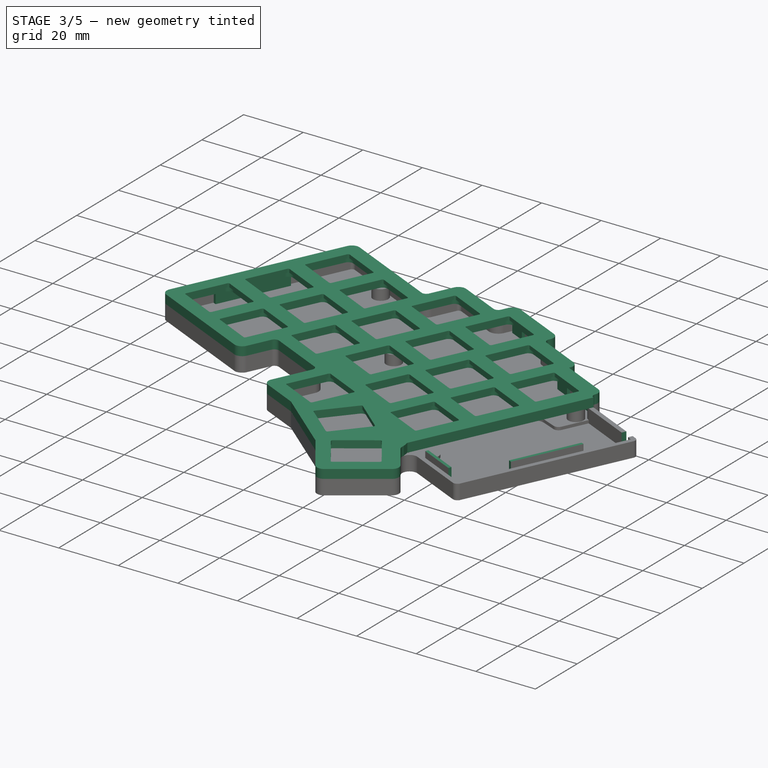
[diagram: stage 3 of 5 — iso view after this stage's code; geometry added in this stage tinted green]
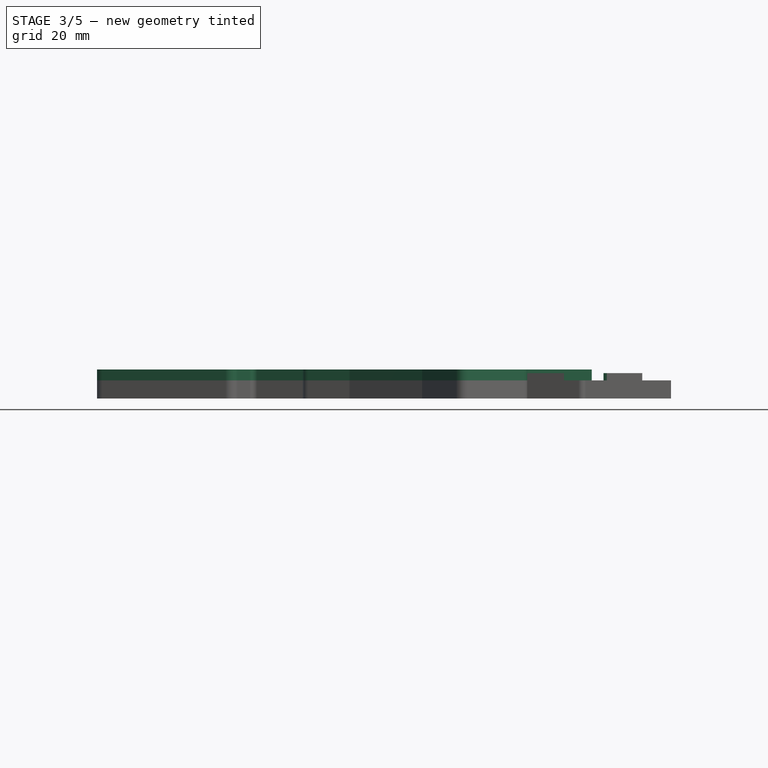
[diagram: stage 3 of 5 — front view after this stage's code; geometry added in this stage tinted green]
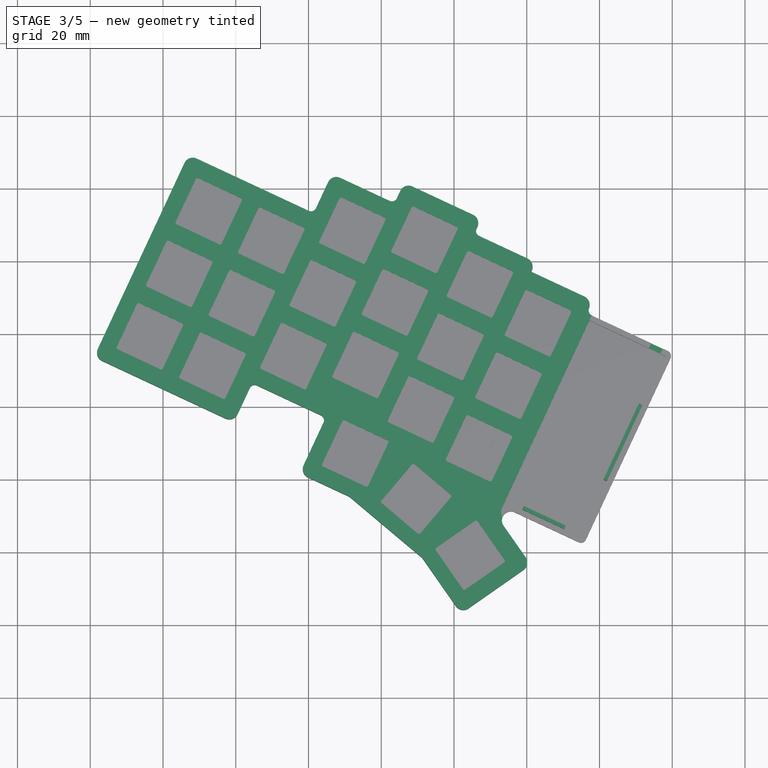
[diagram: stage 3 of 5 — top view after this stage's code; geometry added in this stage tinted green]
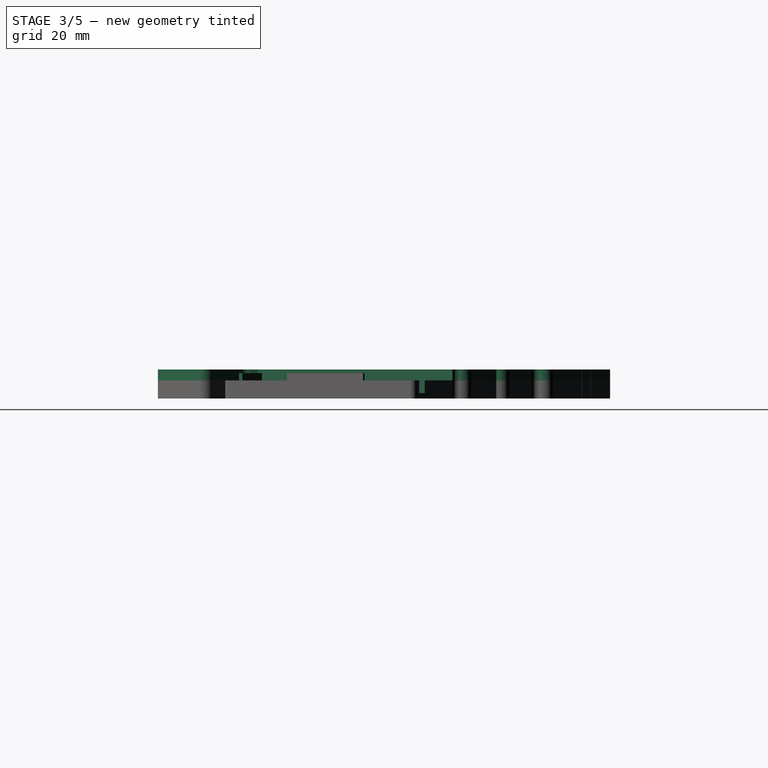
[diagram: stage 3 of 5 — right view after this stage's code; geometry added in this stage tinted green]
FEATURE [PartDesign::Body] Body  label="Base_LED_E"
  Group = -> [Sketch,Pad,Sketch001,Pocket]
  Origin = -> Origin
  Placement = pos=(0,0,-1) rot=(0,0,1;0rad)
  Tip = -> Pocket
FEATURE [Sketcher::SketchObject] Sketch004
  FullyConstrained = false
  sketch-geometry (210):
    g0: LineSegment StartX=98.8639 StartY=-11.451 StartZ=0 EndX=93.3287 EndY=-23.2138 EndZ=0
    g1: LineSegment StartX=86.8616 StartY=-5.25058 StartZ=0 EndX=98.6243 EndY=-10.7857 EndZ=0
    g2: LineSegment StartX=80.9045 StartY=-17.9099 StartZ=0 EndX=92.6634 EndY=-23.4533 EndZ=0
    g3: LineSegment StartX=86.1963 StartY=-5.49011 StartZ=0 EndX=80.665 EndY=-17.2446 EndZ=0
    g4: ArcOfCircle CenterX=81.1174 CenterY=-17.4575 CenterZ=0 NormalX=0 NormalY=0 NormalZ=1 AngleXU=0 Radius=0.500001 StartAngle=2.70177 EndAngle=4.27256
    g5: ArcOfCircle CenterX=86.6487 CenterY=-5.703 CenterZ=0 NormalX=0 NormalY=0 NormalZ=1 AngleXU=0 Radius=0.500001 StartAngle=1.13098 EndAngle=2.70177
    g6: ArcOfCircle CenterX=92.8763 CenterY=-23.0009 CenterZ=0 NormalX=0 NormalY=0 NormalZ=1 AngleXU=0 Radius=0.500001 StartAngle=4.27257 EndAngle=5.84336
    g7: ArcOfCircle CenterX=98.4114 CenterY=-11.2381 CenterZ=0 NormalX=0 NormalY=0 NormalZ=1 AngleXU=0 Radius=0.500001 StartAngle=5.84336 EndAngle=7.41416
    g8: LineSegment StartX=103.206 StartY=-15.1418 StartZ=0 EndX=114.964 EndY=-20.6852 EndZ=0
    g9: ArcOfCircle CenterX=103.418 CenterY=-14.6894 CenterZ=0 NormalX=0 NormalY=0 NormalZ=1 AngleXU=0 Radius=0.500001 StartAngle=2.70177 EndAngle=4.27256
    g10: ArcOfCircle CenterX=115.177 CenterY=-20.2328 CenterZ=0 NormalX=0 NormalY=0 NormalZ=1 AngleXU=0 Radius=0.500001 StartAngle=4.27257 EndAngle=5.84336
    g11: LineSegment StartX=78.1065 StartY=-22.6818 StartZ=0 EndX=72.5752 EndY=-34.4364 EndZ=0
    g12: LineSegment StartX=90.7741 StartY=-28.6427 StartZ=0 EndX=85.2389 EndY=-40.4055 EndZ=0
    g13: LineSegment StartX=78.7718 StartY=-22.4423 StartZ=0 EndX=90.5345 EndY=-27.9774 EndZ=0
    g14: LineSegment StartX=72.8147 StartY=-35.1017 StartZ=0 EndX=84.5736 EndY=-40.645 EndZ=0
    g15: ArcOfCircle CenterX=90.3216 CenterY=-28.4298 CenterZ=0 NormalX=0 NormalY=0 NormalZ=1 AngleXU=0 Radius=0.500001 StartAngle=5.84336 EndAngle=7.41416
    g16: ArcOfCircle CenterX=78.5589 CenterY=-22.8947 CenterZ=0 NormalX=0 NormalY=0 NormalZ=1 AngleXU=0 Radius=0.5 StartAngle=1.13098 EndAngle=2.70177
    g17: ArcOfCircle CenterX=73.0276 CenterY=-34.6493 CenterZ=0 NormalX=0 NormalY=0 NormalZ=1 AngleXU=0 Radius=0.500001 StartAngle=2.70177 EndAngle=4.27256
    g18: ArcOfCircle CenterX=84.7865 CenterY=-40.1926 CenterZ=0 NormalX=0 NormalY=0 NormalZ=1 AngleXU=0 Radius=0.500001 StartAngle=4.27257 EndAngle=5.84336
    g19: LineSegment StartX=113.044 StartY=-25.9416 StartZ=0 EndX=107.508 EndY=-37.7043 EndZ=0
    g20: LineSegment StartX=101.041 StartY=-19.7411 StartZ=0 EndX=112.804 EndY=-25.2763 EndZ=0
    g21: LineSegment StartX=95.0843 StartY=-32.4005 StartZ=0 EndX=106.843 EndY=-37.9438 EndZ=0
    g22: LineSegment StartX=100.376 StartY=-19.9807 StartZ=0 EndX=94.8448 EndY=-31.7352 EndZ=0
    g23: ArcOfCircle CenterX=107.056 CenterY=-37.4914 CenterZ=0 NormalX=0 NormalY=0 NormalZ=1 AngleXU=0 Radius=0.500001 StartAngle=4.27257 EndAngle=5.84336
    g24: ArcOfCircle CenterX=95.2972 CenterY=-31.9481 CenterZ=0 NormalX=0 NormalY=0 NormalZ=1 AngleXU=0 Radius=0.500001 StartAngle=2.70177 EndAngle=4.27256
    g25: ArcOfCircle CenterX=100.828 CenterY=-20.1936 CenterZ=0 NormalX=0 NormalY=0 NormalZ=1 AngleXU=0 Radius=0.500001 StartAngle=1.13098 EndAngle=2.70177
    g26: ArcOfCircle CenterX=112.591 CenterY=-25.7287 CenterZ=0 NormalX=0 NormalY=0 NormalZ=1 AngleXU=0 Radius=0.500001 StartAngle=5.84336 EndAngle=7.41416
    g27: LineSegment StartX=114.914 StartY=-34.884 StartZ=0 EndX=126.673 EndY=-40.4273 EndZ=0
    g28: LineSegment StartX=120.206 StartY=-22.4642 StartZ=0 EndX=114.675 EndY=-34.2187 EndZ=0
    g29: LineSegment StartX=132.873 StartY=-28.4251 StartZ=0 EndX=127.338 EndY=-40.1878 EndZ=0
    g30: ArcOfCircle CenterX=126.886 CenterY=-39.9749 CenterZ=0 NormalX=0 NormalY=0 NormalZ=1 AngleXU=0 Radius=0.500001 StartAngle=4.27257 EndAngle=5.84336
    g31: ArcOfCircle CenterX=115.127 CenterY=-34.4316 CenterZ=0 NormalX=0 NormalY=0 NormalZ=1 AngleXU=0 Radius=0.500001 StartAngle=2.70177 EndAngle=4.27256
    g32: LineSegment StartX=148.119 StartY=-40.6517 StartZ=0 EndX=142.583 EndY=-52.4145 EndZ=0
    g33: LineSegment StartX=130.159 StartY=-47.1107 StartZ=0 EndX=141.918 EndY=-52.654 EndZ=0
    g34: LineSegment StartX=135.451 StartY=-34.6908 StartZ=0 EndX=129.92 EndY=-46.4454 EndZ=0
    g35: LineSegment StartX=136.116 StartY=-34.4513 StartZ=0 EndX=147.879 EndY=-39.9864 EndZ=0
    g36: ArcOfCircle CenterX=135.903 CenterY=-34.9037 CenterZ=0 NormalX=0 NormalY=0 NormalZ=1 AngleXU=0 Radius=0.500001 StartAngle=1.13098 EndAngle=2.70177
    g37: ArcOfCircle CenterX=142.131 CenterY=-52.2016 CenterZ=0 NormalX=0 NormalY=0 NormalZ=1 AngleXU=0 Radius=0.500001 StartAngle=4.27257 EndAngle=5.84336
    g38: ArcOfCircle CenterX=147.666 CenterY=-40.4389 CenterZ=0 NormalX=0 NormalY=0 NormalZ=1 AngleXU=0 Radius=0.500001 StartAngle=5.84336 EndAngle=7.41416
    g39: ArcOfCircle CenterX=130.372 CenterY=-46.6582 CenterZ=0 NormalX=0 NormalY=0 NormalZ=1 AngleXU=0 Radius=0.500001 StartAngle=2.70177 EndAngle=4.27256
    g40: LineSegment StartX=82.6842 StartY=-45.8344 StartZ=0 EndX=77.1491 EndY=-57.5972 EndZ=0
    g41: LineSegment StartX=70.0167 StartY=-39.8735 StartZ=0 EndX=64.4854 EndY=-51.6281 EndZ=0
    g42: LineSegment StartX=70.682 StartY=-39.634 StartZ=0 EndX=82.4447 EndY=-45.1691 EndZ=0
    g43: LineSegment StartX=64.7249 StartY=-52.2934 StartZ=0 EndX=76.4838 EndY=-57.8367 EndZ=0
    g44: ArcOfCircle CenterX=82.2318 CenterY=-45.6216 CenterZ=0 NormalX=0 NormalY=0 NormalZ=1 AngleXU=0 Radius=0.500001 StartAngle=5.84336 EndAngle=7.41416
    g45: ArcOfCircle CenterX=76.6967 CenterY=-57.3843 CenterZ=0 NormalX=0 NormalY=0 NormalZ=1 AngleXU=0 Radius=0.500001 StartAngle=4.27257 EndAngle=5.84336
    g46: ArcOfCircle CenterX=64.9378 CenterY=-51.841 CenterZ=0 NormalX=0 NormalY=0 NormalZ=1 AngleXU=0 Radius=0.500001 StartAngle=2.70177 EndAngle=4.27256
    g47: ArcOfCircle CenterX=70.4691 CenterY=-40.0864 CenterZ=0 NormalX=0 NormalY=0 NormalZ=1 AngleXU=0 Radius=0.500001 StartAngle=1.13098 EndAngle=2.70177
    g48: LineSegment StartX=104.94 StartY=-43.1819 StartZ=0 EndX=99.4046 EndY=-54.9447 EndZ=0
    g49: LineSegment StartX=92.2722 StartY=-37.221 StartZ=0 EndX=86.7409 EndY=-48.9756 EndZ=0
    g50: LineSegment StartX=92.9375 StartY=-36.9815 StartZ=0 EndX=104.7 EndY=-42.5166 EndZ=0
    g51: LineSegment StartX=86.9804 StartY=-49.6409 StartZ=0 EndX=98.7393 EndY=-55.1842 EndZ=0
    g52: ArcOfCircle CenterX=92.7246 CenterY=-37.4339 CenterZ=0 NormalX=0 NormalY=0 NormalZ=1 AngleXU=0 Radius=0.500001 StartAngle=1.13098 EndAngle=2.70177
    g53: ArcOfCircle CenterX=87.1933 CenterY=-49.1885 CenterZ=0 NormalX=0 NormalY=0 NormalZ=1 AngleXU=0 Radius=0.500001 StartAngle=2.70177 EndAngle=4.27256
    g54: ArcOfCircle CenterX=98.9522 CenterY=-54.7318 CenterZ=0 NormalX=0 NormalY=0 NormalZ=1 AngleXU=0 Radius=0.500001 StartAngle=4.27257 EndAngle=5.84336
    g55: ArcOfCircle CenterX=104.487 CenterY=-42.969 CenterZ=0 NormalX=0 NormalY=0 NormalZ=1 AngleXU=0 Radius=0.500001 StartAngle=5.84336 EndAngle=7.41416
    g56: LineSegment StartX=112.108 StartY=-39.6722 StartZ=0 EndX=106.577 EndY=-51.4268 EndZ=0
    g57: LineSegment StartX=124.776 StartY=-45.6331 StartZ=0 EndX=119.241 EndY=-57.3958 EndZ=0
    g58: LineSegment StartX=106.817 StartY=-52.0921 StartZ=0 EndX=118.576 EndY=-57.6353 EndZ=0
    g59: LineSegment StartX=112.774 StartY=-39.4326 StartZ=0 EndX=124.536 EndY=-44.9678 EndZ=0
    g60: ArcOfCircle CenterX=112.561 CenterY=-39.8851 CenterZ=0 NormalX=0 NormalY=0 NormalZ=1 AngleXU=0 Radius=0.500001 StartAngle=1.13098 EndAngle=2.70177
    g61: ArcOfCircle CenterX=124.324 CenterY=-45.4202 CenterZ=0 NormalX=0 NormalY=0 NormalZ=1 AngleXU=0 Radius=0.500001 StartAngle=5.84336 EndAngle=7.41416
    g62: ArcOfCircle CenterX=118.788 CenterY=-57.1829 CenterZ=0 NormalX=0 NormalY=0 NormalZ=1 AngleXU=0 Radius=0.500001 StartAngle=4.27257 EndAngle=5.84336
    g63: ArcOfCircle CenterX=107.03 CenterY=-51.6397 CenterZ=0 NormalX=0 NormalY=0 NormalZ=1 AngleXU=0 Radius=0.500001 StartAngle=2.70177 EndAngle=4.27256
    g64: LineSegment StartX=128.019 StartY=-51.6593 StartZ=0 EndX=139.782 EndY=-57.1944 EndZ=0
    g65: LineSegment StartX=127.353 StartY=-51.8988 StartZ=0 EndX=121.822 EndY=-63.6534 EndZ=0
    g66: LineSegment StartX=140.021 StartY=-57.8597 StartZ=0 EndX=134.486 EndY=-69.6225 EndZ=0
    g67: LineSegment StartX=122.062 StartY=-64.3187 StartZ=0 EndX=133.821 EndY=-69.862 EndZ=0
    g68: ArcOfCircle CenterX=127.806 CenterY=-52.1117 CenterZ=0 NormalX=0 NormalY=0 NormalZ=1 AngleXU=0 Radius=0.500001 StartAngle=1.13098 EndAngle=2.70177
    g69: ArcOfCircle CenterX=134.033 CenterY=-69.4096 CenterZ=0 NormalX=0 NormalY=0 NormalZ=1 AngleXU=0 Radius=0.500001 StartAngle=4.27257 EndAngle=5.84336
    g70: ArcOfCircle CenterX=139.569 CenterY=-57.6469 CenterZ=0 NormalX=0 NormalY=0 NormalZ=1 AngleXU=0 Radius=0.500001 StartAngle=5.84336 EndAngle=7.41416
    g71: ArcOfCircle CenterX=122.275 CenterY=-63.8663 CenterZ=0 NormalX=0 NormalY=0 NormalZ=1 AngleXU=0 Radius=0.500001 StartAngle=2.70177 EndAngle=4.27256
    g72: LineSegment StartX=129.147 StartY=-75.8145 StartZ=0 EndX=139.076 EndY=-84.2058 EndZ=0
    g73: LineSegment StartX=128.442 StartY=-75.8737 StartZ=0 EndX=120.057 EndY=-85.796 EndZ=0
    g74: LineSegment StartX=139.135 StartY=-84.9104 StartZ=0 EndX=130.744 EndY=-94.8396 EndZ=0
    g75: ArcOfCircle CenterX=138.753 CenterY=-84.5877 CenterZ=0 NormalX=0 NormalY=0 NormalZ=1 AngleXU=0 Radius=0.500001 StartAngle=5.58157 EndAngle=7.15236
    g76: ArcOfCircle CenterX=128.824 CenterY=-76.1964 CenterZ=0 NormalX=0 NormalY=0 NormalZ=1 AngleXU=0 Radius=0.500001 StartAngle=0.869177 EndAngle=2.43997
    g77: LineSegment StartX=81.6649 StartY=-3.35781 StartZ=0 EndX=76.1298 EndY=-15.1206 EndZ=0
    g78: LineSegment StartX=69.6626 StartY=2.84263 StartZ=0 EndX=81.4254 EndY=-2.6925 EndZ=0
    g79: LineSegment StartX=63.7056 StartY=-9.81672 StartZ=0 EndX=75.4645 EndY=-15.3601 EndZ=0
    g80: LineSegment StartX=68.9973 StartY=2.6031 StartZ=0 EndX=63.4661 EndY=-9.15141 EndZ=0
    g81: ArcOfCircle CenterX=63.9185 CenterY=-9.3643 CenterZ=0 NormalX=0 NormalY=0 NormalZ=1 AngleXU=0 Radius=0.500001 StartAngle=2.70177 EndAngle=4.27256
    g82: ArcOfCircle CenterX=69.4497 CenterY=2.39021 CenterZ=0 NormalX=0 NormalY=0 NormalZ=1 AngleXU=0 Radius=0.500001 StartAngle=1.13098 EndAngle=2.70177
    g83: ArcOfCircle CenterX=75.6774 CenterY=-14.9077 CenterZ=0 NormalX=0 NormalY=0 NormalZ=1 AngleXU=0 Radius=0.500001 StartAngle=4.27257 EndAngle=5.84336
    g84: ArcOfCircle CenterX=81.2125 CenterY=-3.14492 CenterZ=0 NormalX=0 NormalY=0 NormalZ=1 AngleXU=0 Radius=0.500001 StartAngle=5.84336 EndAngle=7.41416
    g85: LineSegment StartX=60.9075 StartY=-14.5886 StartZ=0 EndX=55.3762 EndY=-26.3432 EndZ=0
    g86: LineSegment StartX=73.5751 StartY=-20.5495 StartZ=0 EndX=68.04 EndY=-32.3123 EndZ=0
    g87: LineSegment StartX=61.5728 StartY=-14.3491 StartZ=0 EndX=73.3356 EndY=-19.8842 EndZ=0
    g88: LineSegment StartX=55.6157 StartY=-27.0085 StartZ=0 EndX=67.3747 EndY=-32.5518 EndZ=0
    g89: ArcOfCircle CenterX=73.1227 CenterY=-20.3366 CenterZ=0 NormalX=0 NormalY=0 NormalZ=1 AngleXU=0 Radius=0.500001 StartAngle=5.84336 EndAngle=7.41416
    g90: ArcOfCircle CenterX=55.8286 CenterY=-26.5561 CenterZ=0 NormalX=0 NormalY=0 NormalZ=1 AngleXU=0 Radius=0.500001 StartAngle=2.70177 EndAngle=4.27256
    g91: ArcOfCircle CenterX=67.5876 CenterY=-32.0994 CenterZ=0 NormalX=0 NormalY=0 NormalZ=1 AngleXU=0 Radius=0.500001 StartAngle=4.27257 EndAngle=5.84336
    g92: LineSegment StartX=65.4853 StartY=-37.7412 StartZ=0 EndX=59.9502 EndY=-49.504 EndZ=0
    g93: LineSegment StartX=52.8177 StartY=-31.7803 StartZ=0 EndX=47.2864 EndY=-43.5349 EndZ=0
    g94: LineSegment StartX=53.483 StartY=-31.5408 StartZ=0 EndX=65.2458 EndY=-37.0759 EndZ=0
    g95: LineSegment StartX=47.5259 StartY=-44.2002 StartZ=0 EndX=59.2849 EndY=-49.7435 EndZ=0
    g96: ArcOfCircle CenterX=65.0329 CenterY=-37.5283 CenterZ=0 NormalX=0 NormalY=0 NormalZ=1 AngleXU=0 Radius=0.500001 StartAngle=5.84336 EndAngle=7.41416
    g97: ArcOfCircle CenterX=59.4977 CenterY=-49.2911 CenterZ=0 NormalX=0 NormalY=0 NormalZ=1 AngleXU=0 Radius=0.500001 StartAngle=4.27257 EndAngle=5.84336
    g98: ArcOfCircle CenterX=47.7388 CenterY=-43.7478 CenterZ=0 NormalX=0 NormalY=0 NormalZ=1 AngleXU=0 Radius=0.500001 StartAngle=2.70177 EndAngle=4.27256
    g99: ArcOfCircle CenterX=53.2701 CenterY=-31.9932 CenterZ=0 NormalX=0 NormalY=0 NormalZ=1 AngleXU=0 Radius=0.500001 StartAngle=1.13098 EndAngle=2.70177
    g100: LineSegment StartX=120.117 StartY=-86.5006 StartZ=0 EndX=130.039 EndY=-94.8988 EndZ=0
    g101: ArcOfCircle CenterX=130.362 CenterY=-94.5169 CenterZ=0 NormalX=0 NormalY=0 NormalZ=1 AngleXU=0 Radius=0.500001 StartAngle=4.01077 EndAngle=5.58156
    g102: ArcOfCircle CenterX=120.439 CenterY=-86.1187 CenterZ=0 NormalX=0 NormalY=0 NormalZ=1 AngleXU=0 Radius=0.5 StartAngle=2.43997 EndAngle=4.01077
    g103: LineSegment StartX=109.163 StartY=-2.48246 StartZ=0 EndX=120.925 EndY=-8.0176 EndZ=0
    g104: ArcOfCircle CenterX=108.95 CenterY=-2.93488 CenterZ=0 NormalX=0 NormalY=0 NormalZ=1 AngleXU=0 Radius=0.500001 StartAngle=1.13098 EndAngle=2.70177
    g105: ArcOfCircle CenterX=120.713 CenterY=-8.47001 CenterZ=0 NormalX=0 NormalY=0 NormalZ=1 AngleXU=0 Radius=0.500001 StartAngle=5.84336 EndAngle=7.41416
    g106: LineSegment StartX=128.969 StartY=-5.01663 StartZ=0 EndX=140.731 EndY=-10.5518 EndZ=0
    g107: LineSegment StartX=123.012 StartY=-17.676 StartZ=0 EndX=134.77 EndY=-23.2193 EndZ=0
    g108: LineSegment StartX=128.303 StartY=-5.25616 StartZ=0 EndX=122.772 EndY=-17.0107 EndZ=0
    g109: LineSegment StartX=140.971 StartY=-11.2171 StartZ=0 EndX=135.436 EndY=-22.9798 EndZ=0
    g110: ArcOfCircle CenterX=128.756 CenterY=-5.46905 CenterZ=0 NormalX=0 NormalY=0 NormalZ=1 AngleXU=0 Radius=0.500001 StartAngle=1.13098 EndAngle=2.70177
    g111: ArcOfCircle CenterX=134.983 CenterY=-22.7669 CenterZ=0 NormalX=0 NormalY=0 NormalZ=1 AngleXU=0 Radius=0.500001 StartAngle=4.27257 EndAngle=5.84336
    g112: ArcOfCircle CenterX=123.224 CenterY=-17.2236 CenterZ=0 NormalX=0 NormalY=0 NormalZ=1 AngleXU=0 Radius=0.500001 StartAngle=2.70177 EndAngle=4.27256
    g113: ArcOfCircle CenterX=140.519 CenterY=-11.0042 CenterZ=0 NormalX=0 NormalY=0 NormalZ=1 AngleXU=0 Radius=0.500001 StartAngle=5.84336 EndAngle=7.41416
    g114: LineSegment StartX=144.208 StartY=-17.2408 StartZ=0 EndX=155.971 EndY=-22.7759 EndZ=0
    g115: ArcOfCircle CenterX=155.758 CenterY=-23.2283 CenterZ=0 NormalX=0 NormalY=0 NormalZ=1 AngleXU=0 Radius=0.500001 StartAngle=5.84336 EndAngle=7.41416
    g116: ArcOfCircle CenterX=143.995 CenterY=-17.6932 CenterZ=0 NormalX=0 NormalY=0 NormalZ=1 AngleXU=0 Radius=0.500001 StartAngle=1.13098 EndAngle=2.70177
    g117: LineSegment StartX=121.165 StartY=-8.6829 StartZ=0 EndX=115.63 EndY=-20.4457 EndZ=0
    g118: LineSegment StartX=108.497 StartY=-2.72199 StartZ=0 EndX=102.966 EndY=-14.4765 EndZ=0
    g119: LineSegment StartX=138.251 StartY=-29.9001 StartZ=0 EndX=150.01 EndY=-35.4435 EndZ=0
    g120: LineSegment StartX=143.543 StartY=-17.4803 StartZ=0 EndX=138.012 EndY=-29.2348 EndZ=0
    g121: LineSegment StartX=156.211 StartY=-23.4412 StartZ=0 EndX=150.675 EndY=-35.2039 EndZ=0
    g122: ArcOfCircle CenterX=150.223 CenterY=-34.9911 CenterZ=0 NormalX=0 NormalY=0 NormalZ=1 AngleXU=0 Radius=0.500001 StartAngle=4.27257 EndAngle=5.84336
    g123: ArcOfCircle CenterX=138.464 CenterY=-29.4477 CenterZ=0 NormalX=0 NormalY=0 NormalZ=1 AngleXU=0 Radius=0.500001 StartAngle=2.70177 EndAngle=4.27256
    g124: LineSegment StartX=120.871 StartY=-22.2246 StartZ=0 EndX=132.634 EndY=-27.7598 EndZ=0
    g125: ArcOfCircle CenterX=132.421 CenterY=-28.2122 CenterZ=0 NormalX=0 NormalY=0 NormalZ=1 AngleXU=0 Radius=0.500001 StartAngle=5.84336 EndAngle=7.41416
    g126: ArcOfCircle CenterX=120.658 CenterY=-22.677 CenterZ=0 NormalX=0 NormalY=0 NormalZ=1 AngleXU=0 Radius=0.500001 StartAngle=1.13098 EndAngle=2.70177
    g127: LineSegment StartX=172.18 StartY=-34.1434 StartZ=0 EndX=166.644 EndY=-45.9061 EndZ=0
    g128: LineSegment StartX=154.22 StartY=-40.6023 StartZ=0 EndX=165.979 EndY=-46.1457 EndZ=0
    g129: ArcOfCircle CenterX=154.433 CenterY=-40.1499 CenterZ=0 NormalX=0 NormalY=0 NormalZ=1 AngleXU=0 Radius=0.500001 StartAngle=2.70177 EndAngle=4.27256
    g130: ArcOfCircle CenterX=166.192 CenterY=-45.6933 CenterZ=0 NormalX=0 NormalY=0 NormalZ=1 AngleXU=0 Radius=0.500001 StartAngle=4.27257 EndAngle=5.84336
    g131: LineSegment StartX=164.076 StartY=-51.3175 StartZ=0 EndX=158.541 EndY=-63.0803 EndZ=0
    g132: LineSegment StartX=152.074 StartY=-45.1171 StartZ=0 EndX=163.836 EndY=-50.6522 EndZ=0
    g133: LineSegment StartX=146.117 StartY=-57.7765 StartZ=0 EndX=157.876 EndY=-63.3198 EndZ=0
    g134: LineSegment StartX=151.408 StartY=-45.3566 StartZ=0 EndX=145.877 EndY=-57.1111 EndZ=0
    g135: ArcOfCircle CenterX=158.088 CenterY=-62.8674 CenterZ=0 NormalX=0 NormalY=0 NormalZ=1 AngleXU=0 Radius=0.500001 StartAngle=4.27257 EndAngle=5.84336
    g136: ArcOfCircle CenterX=151.861 CenterY=-45.5695 CenterZ=0 NormalX=0 NormalY=0 NormalZ=1 AngleXU=0 Radius=0.500001 StartAngle=1.13098 EndAngle=2.70177
    g137: ArcOfCircle CenterX=163.624 CenterY=-51.1047 CenterZ=0 NormalX=0 NormalY=0 NormalZ=1 AngleXU=0 Radius=0.500001 StartAngle=5.84336 EndAngle=7.41416
    g138: ArcOfCircle CenterX=146.33 CenterY=-57.324 CenterZ=0 NormalX=0 NormalY=0 NormalZ=1 AngleXU=0 Radius=0.500001 StartAngle=2.70177 EndAngle=4.27256
    g139: LineSegment StartX=143.976 StartY=-62.3251 StartZ=0 EndX=155.739 EndY=-67.8602 EndZ=0
    g140: LineSegment StartX=143.311 StartY=-62.5646 StartZ=0 EndX=137.78 EndY=-74.3192 EndZ=0
    g141: LineSegment StartX=138.019 StartY=-74.9845 StartZ=0 EndX=149.778 EndY=-80.5278 EndZ=0
    g142: LineSegment StartX=155.978 StartY=-68.5255 StartZ=0 EndX=150.443 EndY=-80.2883 EndZ=0
    g143: ArcOfCircle CenterX=149.991 CenterY=-80.0754 CenterZ=0 NormalX=0 NormalY=0 NormalZ=1 AngleXU=0 Radius=0.500001 StartAngle=4.27257 EndAngle=5.84336
    g144: ArcOfCircle CenterX=155.526 CenterY=-68.3127 CenterZ=0 NormalX=0 NormalY=0 NormalZ=1 AngleXU=0 Radius=0.500001 StartAngle=5.84336 EndAngle=7.41416
    g145: ArcOfCircle CenterX=143.763 CenterY=-62.7775 CenterZ=0 NormalX=0 NormalY=0 NormalZ=1 AngleXU=0 Radius=0.500001 StartAngle=1.13098 EndAngle=2.70177
    g146: ArcOfCircle CenterX=138.232 CenterY=-74.5321 CenterZ=0 NormalX=0 NormalY=0 NormalZ=1 AngleXU=0 Radius=0.500001 StartAngle=2.70177 EndAngle=4.27256
    g147: LineSegment StartX=160.177 StartY=-27.943 StartZ=0 EndX=171.94 EndY=-33.4781 EndZ=0
    g148: ArcOfCircle CenterX=159.964 CenterY=-28.3954 CenterZ=0 NormalX=0 NormalY=0 NormalZ=1 AngleXU=0 Radius=0.500001 StartAngle=1.13098 EndAngle=2.70177
    g149: LineSegment StartX=159.512 StartY=-28.1825 StartZ=0 EndX=153.981 EndY=-39.937 EndZ=0
    g150: ArcOfCircle CenterX=171.727 CenterY=-33.9305 CenterZ=0 NormalX=0 NormalY=0 NormalZ=1 AngleXU=0 Radius=0.500001 StartAngle=5.84336 EndAngle=7.41416
    g151: LineSegment StartX=109.273 StartY=-63.9938 StartZ=0 EndX=103.742 EndY=-75.7485 EndZ=0
    g152: LineSegment StartX=121.941 StartY=-69.9548 StartZ=0 EndX=116.406 EndY=-81.7175 EndZ=0
    g153: LineSegment StartX=109.939 StartY=-63.7543 StartZ=0 EndX=121.702 EndY=-69.2895 EndZ=0
    g154: ArcOfCircle CenterX=109.726 CenterY=-64.2067 CenterZ=0 NormalX=0 NormalY=0 NormalZ=1 AngleXU=0 Radius=0.500001 StartAngle=1.13098 EndAngle=2.70177
    g155: ArcOfCircle CenterX=121.489 CenterY=-69.7419 CenterZ=0 NormalX=0 NormalY=0 NormalZ=1 AngleXU=0 Radius=0.500001 StartAngle=5.84336 EndAngle=7.41416
    g156: LineSegment StartX=103.982 StartY=-76.4138 StartZ=0 EndX=115.741 EndY=-81.957 EndZ=0
    g157: ArcOfCircle CenterX=115.954 CenterY=-81.5046 CenterZ=0 NormalX=0 NormalY=0 NormalZ=1 AngleXU=0 Radius=0.500001 StartAngle=4.27257 EndAngle=5.84336
    g158: ArcOfCircle CenterX=104.195 CenterY=-75.9613 CenterZ=0 NormalX=0 NormalY=0 NormalZ=1 AngleXU=0 Radius=0.500001 StartAngle=2.70177 EndAngle=4.27256
    g159: LineSegment StartX=146.481 StartY=-91.4874 StartZ=0 EndX=153.9 EndY=-102.162 EndZ=0
    g160: LineSegment StartX=153.775 StartY=-102.858 StartZ=0 EndX=143.1 EndY=-110.277 EndZ=0
    g161: LineSegment StartX=145.785 StartY=-91.3622 StartZ=0 EndX=135.117 EndY=-98.7756 EndZ=0
    g162: LineSegment StartX=134.992 StartY=-99.4715 StartZ=0 EndX=142.404 EndY=-110.152 EndZ=0
    g163: ArcOfCircle CenterX=142.815 CenterY=-109.867 CenterZ=0 NormalX=0 NormalY=0 NormalZ=1 AngleXU=0 Radius=0.499993 StartAngle=3.74897 EndAngle=5.31976
    g164: ArcOfCircle CenterX=135.403 CenterY=-99.1862 CenterZ=0 NormalX=0 NormalY=0 NormalZ=1 AngleXU=0 Radius=0.500001 StartAngle=2.17817 EndAngle=3.74897
    g165: ArcOfCircle CenterX=146.07 CenterY=-91.7727 CenterZ=0 NormalX=0 NormalY=0 NormalZ=1 AngleXU=0 Radius=0.500001 StartAngle=0.607376 EndAngle=2.17817
    g166: ArcOfCircle CenterX=153.489 CenterY=-102.448 CenterZ=0 NormalX=0 NormalY=0 NormalZ=1 AngleXU=0 Radius=0.500001 StartAngle=5.31977 EndAngle=6.89056
    g167: LineSegment StartX=65.9047 StartY=7.03664 StartZ=0 EndX=42.0736 EndY=-44.0692 EndZ=0
    g168: ArcOfCircle CenterX=68.1704 CenterY=5.98009 CenterZ=0 NormalX=0 NormalY=0 NormalZ=1 AngleXU=0 Radius=2.5 StartAngle=1.13446 EndAngle=2.70526
    g169: LineSegment StartX=69.227 StartY=8.24586 StartZ=0 EndX=100.056 EndY=-6.12992 EndZ=0
    g170: LineSegment StartX=153.609 StartY=-92.6965 StartZ=0 EndX=159.69 EndY=-101.381 EndZ=0
    g171: ArcOfCircle CenterX=157.642 CenterY=-102.815 CenterZ=0 NormalX=0 NormalY=0 NormalZ=1 AngleXU=0 Radius=2.5 StartAngle=5.32324 EndAngle=6.89404
    g172: LineSegment StartX=159.076 StartY=-104.863 StartZ=0 EndX=144.002 EndY=-115.417 EndZ=0
    g173: ArcOfCircle CenterX=142.568 CenterY=-113.369 CenterZ=0 NormalX=0 NormalY=0 NormalZ=1 AngleXU=0 Radius=2.5 StartAngle=3.75176 EndAngle=5.32324
    g174: LineSegment StartX=99.8491 StartY=-79.4071 StartZ=0 EndX=111.087 EndY=-84.6571 EndZ=0
    g175: ArcOfCircle CenterX=110.452 CenterY=-86.0161 CenterZ=0 NormalX=0 NormalY=0 NormalZ=1 AngleXU=0 Radius=1.5 StartAngle=0.871929 EndAngle=1.13377
    g176: ArcOfCircle CenterX=100.907 CenterY=-77.1421 CenterZ=0 NormalX=0 NormalY=0 NormalZ=1 AngleXU=0 Radius=2.5 StartAngle=2.70526 EndAngle=4.27536
    g177: LineSegment StartX=104.123 StartY=-64.3306 StartZ=0 EndX=98.6415 EndY=-76.0855 EndZ=0
    g178: ArcOfCircle CenterX=102.763 CenterY=-63.6967 CenterZ=0 NormalX=0 NormalY=0 NormalZ=1 AngleXU=0 Radius=1.5 StartAngle=5.84685 EndAngle=7.41695
    g179: LineSegment StartX=85.8302 StartY=-54.1305 StartZ=0 EndX=103.398 EndY=-62.3376 EndZ=0
    g180: ArcOfCircle CenterX=85.1953 CenterY=-55.4896 CenterZ=0 NormalX=0 NormalY=0 NormalZ=1 AngleXU=0 Radius=1.5 StartAngle=1.13376 EndAngle=2.70526
    g181: LineSegment StartX=83.8359 StartY=-54.8556 StartZ=0 EndX=80.4973 EndY=-62.0153 EndZ=0
    g182: ArcOfCircle CenterX=78.2315 CenterY=-60.9587 CenterZ=0 NormalX=0 NormalY=0 NormalZ=1 AngleXU=0 Radius=2.5 StartAngle=4.27536 EndAngle=5.84685
    g183: LineSegment StartX=43.2813 StartY=-47.3907 StartZ=0 EndX=77.1734 EndY=-63.2238 EndZ=0
    g184: ArcOfCircle CenterX=44.3394 CenterY=-45.1257 CenterZ=0 NormalX=0 NormalY=0 NormalZ=1 AngleXU=0 Radius=2.5 StartAngle=2.70526 EndAngle=4.27536
    g185: ArcOfCircle CenterX=100.69 CenterY=-4.77046 CenterZ=0 NormalX=0 NormalY=0 NormalZ=1 AngleXU=0 Radius=1.5 StartAngle=4.27606 EndAngle=5.84685
    g186: LineSegment StartX=105.378 StartY=1.73369 StartZ=0 EndX=102.049 EndY=-5.40439 EndZ=0
    g187: ArcOfCircle CenterX=107.644 CenterY=0.677146 CenterZ=0 NormalX=0 NormalY=0 NormalZ=1 AngleXU=0 Radius=2.5 StartAngle=1.13446 EndAngle=2.70526
    g188: LineSegment StartX=108.7 StartY=2.94292 StartZ=0 EndX=122.288 EndY=-3.39298 EndZ=0
    g189: ArcOfCircle CenterX=122.921 CenterY=-2.03352 CenterZ=0 NormalX=0 NormalY=0 NormalZ=1 AngleXU=0 Radius=1.5 StartAngle=4.27606 EndAngle=5.84685
    g190: LineSegment StartX=125.223 StartY=-0.64819 StartZ=0 EndX=124.281 EndY=-2.66744 EndZ=0
    g191: ArcOfCircle CenterX=127.488 CenterY=-1.70474 CenterZ=0 NormalX=0 NormalY=0 NormalZ=1 AngleXU=0 Radius=2.5 StartAngle=1.13446 EndAngle=2.70526
    g192: LineSegment StartX=128.545 StartY=0.561034 StartZ=0 EndX=145.221 EndY=-7.21514 EndZ=0
    g193: ArcOfCircle CenterX=144.164 CenterY=-9.48091 CenterZ=0 NormalX=0 NormalY=0 NormalZ=1 AngleXU=0 Radius=2.5 StartAngle=5.84685 EndAngle=7.41765
    g194: LineSegment StartX=146.43 StartY=-10.5375 StartZ=0 EndX=146.188 EndY=-11.0559 EndZ=0
    g195: ArcOfCircle CenterX=147.548 CenterY=-11.6898 CenterZ=0 NormalX=0 NormalY=0 NormalZ=1 AngleXU=0 Radius=1.5 StartAngle=2.70526 EndAngle=4.27606
    g196: LineSegment StartX=146.914 StartY=-13.0493 StartZ=0 EndX=160.18 EndY=-19.2355 EndZ=0
    g197: ArcOfCircle CenterX=159.124 CenterY=-21.5013 CenterZ=0 NormalX=0 NormalY=0 NormalZ=1 AngleXU=0 Radius=2.5 StartAngle=5.84685 EndAngle=7.41765
    g198: LineSegment StartX=161.39 StartY=-22.5578 StartZ=0 EndX=161.366 EndY=-22.6089 EndZ=0
    g199: LineSegment StartX=161.511 StartY=-23.0075 StartZ=0 EndX=175.854 EndY=-29.6958 EndZ=0
    g200: ArcOfCircle CenterX=161.638 CenterY=-22.7357 CenterZ=0 NormalX=0 NormalY=0 NormalZ=1 AngleXU=0 Radius=0.3 StartAngle=2.70526 EndAngle=4.27606
    g201: ArcOfCircle CenterX=174.797 CenterY=-31.9616 CenterZ=0 NormalX=0 NormalY=0 NormalZ=1 AngleXU=0 Radius=2.5 StartAngle=5.93004 EndAngle=7.41765
    g202: LineSegment StartX=177.085 StartY=-32.983 StartZ=0 EndX=177.143 EndY=-32.8262 EndZ=0
    g203: LineSegment StartX=131.232 StartY=-101.519 StartZ=0 EndX=140.519 EndY=-114.802 EndZ=0
    g204: LineSegment StartX=111.417 StartY=-84.8677 StartZ=0 EndX=131.232 EndY=-101.519 EndZ=0
    g205: ArcOfCircle CenterX=155.657 CenterY=-91.2626 CenterZ=0 NormalX=0 NormalY=0 NormalZ=1 AngleXU=0 Radius=2.5 StartAngle=2.91115 EndAngle=3.75245
    g206: LineSegment StartX=152.883 StartY=-88.3804 StartZ=0 EndX=153.223 EndY=-90.6916 EndZ=0
    g207: ArcOfCircle CenterX=61.3599 CenterY=-14.8015 CenterZ=0 NormalX=0 NormalY=0 NormalZ=1 AngleXU=0 Radius=0.500001 StartAngle=1.13098 EndAngle=2.70177
    g208: LineSegment StartX=177.858 StartY=-34.861 StartZ=0 EndX=152.883 EndY=-88.3804 EndZ=0
    g209: ArcOfCircle CenterX=178.493 CenterY=-33.5017 CenterZ=0 NormalX=0 NormalY=0 NormalZ=1 AngleXU=0 Radius=1.5 StartAngle=2.78845 EndAngle=4.27577
  constraints (210):
    c: Coincident(g167,g184)
    c: Coincident(g183,g184)
    c: Coincident(g93,g98)
    c: Coincident(g95,g98)
    c: Coincident(g93,g99)
    c: Coincident(g94,g99)
    c: Coincident(g85,g90)
    c: Coincident(g88,g90)
    c: Coincident(g95,g97)
    c: Coincident(g92,g97)
    c: Coincident(g85,g207)
    c: Coincident(g87,g207)
    c: Coincident(g80,g81)
    c: Coincident(g79,g81)
    c: Coincident(g41,g46)
    c: Coincident(g43,g46)
    c: Coincident(g94,g96)
    c: Coincident(g92,g96)
    c: Coincident(g167,g168)
    c: Coincident(g88,g91)
    c: Coincident(g86,g91)
    c: Coincident(g80,g82)
    c: Coincident(g168,g169)
    c: Coincident(g78,g82)
    c: Coincident(g41,g47)
    c: Coincident(g42,g47)
    c: Coincident(g11,g17)
    c: Coincident(g14,g17)
    c: Coincident(g87,g89)
    c: Coincident(g86,g89)
    c: Coincident(g79,g83)
    c: Coincident(g77,g83)
    c: Coincident(g43,g45)
    c: Coincident(g40,g45)
    c: Coincident(g182,g183)
    c: Coincident(g11,g16)
    c: Coincident(g13,g16)
    c: Coincident(g181,g182)
    c: Coincident(g3,g4)
    c: Coincident(g2,g4)
    c: Coincident(g78,g84)
    c: Coincident(g77,g84)
    c: Coincident(g42,g44)
    c: Coincident(g40,g44)
    c: Coincident(g180,g181)
    c: Coincident(g14,g18)
    c: Coincident(g12,g18)
    c: Coincident(g179,g180)
    c: Coincident(g3,g5)
    c: Coincident(g49,g53)
    c: Coincident(g1,g5)
    c: Coincident(g51,g53)
    c: Coincident(g13,g15)
    c: Coincident(g12,g15)
    c: Coincident(g49,g52)
    c: Coincident(g2,g6)
    c: Coincident(g50,g52)
    c: Coincident(g0,g6)
    c: Coincident(g22,g24)
    c: Coincident(g21,g24)
    c: Coincident(g1,g7)
    c: Coincident(g176,g177)
    c: Coincident(g51,g54)
    c: Coincident(g0,g7)
    c: Coincident(g48,g54)
    c: Coincident(g174,g176)
    c: Coincident(g169,g185)
    c: Coincident(g22,g25)
    c: Coincident(g20,g25)
    c: Coincident(g185,g186)
    c: Coincident(g9,g118)
    c: Coincident(g8,g9)
    c: Coincident(g178,g179)
    c: Coincident(g151,g158)
    c: Coincident(g156,g158)
    c: Coincident(g177,g178)
    c: Coincident(g50,g55)
    c: Coincident(g48,g55)
    c: Coincident(g186,g187)
    c: Coincident(g56,g63)
    c: Coincident(g58,g63)
    c: Coincident(g21,g23)
    c: Coincident(g19,g23)
    c: Coincident(g104,g118)
    c: Coincident(g187,g188)
    c: Coincident(g103,g104)
    c: Coincident(g151,g154)
    c: Coincident(g153,g154)
    c: Coincident(g174,g175)
    c: Coincident(g175,g204)
    c: Coincident(g56,g60)
    c: Coincident(g59,g60)
    c: Coincident(g20,g26)
    c: Coincident(g19,g26)
    c: Coincident(g28,g31)
    c: Coincident(g27,g31)
    c: Coincident(g8,g10)
    c: Coincident(g10,g117)
    c: Coincident(g156,g157)
    c: Coincident(g152,g157)
    c: Coincident(g58,g62)
    c: Coincident(g57,g62)
    c: Coincident(g28,g126)
    c: Coincident(g124,g126)
    c: Coincident(g103,g105)
    c: Coincident(g105,g117)
    c: Coincident(g153,g155)
    c: Coincident(g65,g71)
    c: Coincident(g152,g155)
    c: Coincident(g67,g71)
    c: Coincident(g188,g189)
    c: Coincident(g108,g112)
    c: Coincident(g107,g112)
    c: Coincident(g189,g190)
    c: Coincident(g59,g61)
    c: Coincident(g57,g61)
    c: Coincident(g190,g191)
    c: Coincident(g27,g30)
    c: Coincident(g29,g30)
    c: Coincident(g65,g68)
    c: Coincident(g64,g68)
    c: Coincident(g108,g110)
    c: Coincident(g191,g192)
    c: Coincident(g106,g110)
    c: Coincident(g34,g39)
    c: Coincident(g33,g39)
    c: Coincident(g203,g204)
    c: Coincident(g124,g125)
    c: Coincident(g29,g125)
    c: Coincident(g67,g69)
    c: Coincident(g66,g69)
    c: Coincident(g107,g111)
    c: Coincident(g162,g164)
    c: Coincident(g161,g164)
    c: Coincident(g109,g111)
    c: Coincident(g34,g36)
    c: Coincident(g35,g36)
    c: Coincident(g140,g146)
    c: Coincident(g120,g123)
    c: Coincident(g141,g146)
    c: Coincident(g119,g123)
    c: Coincident(g64,g70)
    c: Coincident(g66,g70)
    c: Coincident(g173,g203)
    c: Coincident(g106,g113)
    c: Coincident(g109,g113)
    c: Coincident(g33,g37)
    c: Coincident(g162,g163)
    c: Coincident(g32,g37)
    c: Coincident(g160,g163)
    c: Coincident(g140,g145)
    c: Coincident(g116,g120)
    c: Coincident(g139,g145)
    c: Coincident(g172,g173)
    c: Coincident(g114,g116)
    c: Coincident(g192,g193)
    c: Coincident(g161,g165)
    c: Coincident(g134,g138)
    c: Coincident(g133,g138)
    c: Coincident(g194,g195)
    c: Coincident(g193,g194)
    c: Coincident(g159,g165)
    c: Coincident(g195,g196)
    c: Coincident(g35,g38)
    c: Coincident(g32,g38)
    c: Coincident(g141,g143)
    c: Coincident(g119,g122)
    c: Coincident(g142,g143)
    c: Coincident(g121,g122)
    c: Coincident(g134,g136)
    c: Coincident(g132,g136)
    c: Coincident(g206,g208)
    c: Coincident(g205,g206)
    c: Coincident(g170,g205)
    c: Coincident(g160,g166)
    c: Coincident(g159,g166)
    c: Coincident(g129,g149)
    c: Coincident(g128,g129)
    c: Coincident(g139,g144)
    c: Coincident(g114,g115)
    c: Coincident(g142,g144)
    c: Coincident(g115,g121)
    c: Coincident(g133,g135)
    c: Coincident(g131,g135)
    c: Coincident(g171,g172)
    c: Coincident(g148,g149)
    c: Coincident(g170,g171)
    c: Coincident(g147,g148)
    c: Coincident(g196,g197)
    c: Coincident(g198,g200)
    c: Coincident(g197,g198)
    c: Coincident(g199,g200)
    c: Coincident(g132,g137)
    c: Coincident(g131,g137)
    c: Coincident(g128,g130)
    c: Coincident(g127,g130)
    c: Coincident(g147,g150)
    c: Coincident(g127,g150)
    c: Coincident(g199,g201)
    c: Coincident(g202,g209)
    c: Coincident(g201,g202)
    c: Coincident(g208,g209)
    c: Coincident(g73,g102)
    c: Coincident(g100,g102)
    c: Coincident(g73,g76)
    c: Coincident(g72,g76)
    c: Coincident(g100,g101)
    c: Coincident(g74,g101)
    c: Coincident(g72,g75)
    c: Coincident(g74,g75)
FEATURE [PartDesign::Pad] Pad002
  Direction = (0,0,1)
  Length = 3
  Length2 = 10
  Profile = -> Sketch004
  ReferenceAxis = -> Sketch004 [N_Axis]
  Type = 0
FEATURE [Sketcher::SketchObject] Sketch008
  FullyConstrained = false
  sketch-geometry (168):
    g0: LineSegment StartX=67.9115 StartY=3.11404 StartZ=0 EndX=62.3803 EndY=-8.64048 EndZ=0
    g1: ArcOfCircle CenterX=69.4497 CenterY=2.39021 CenterZ=0 NormalX=0 NormalY=0 NormalZ=1 AngleXU=0 Radius=1.7 StartAngle=1.13098 EndAngle=2.70177
    g2: LineSegment StartX=70.1736 StartY=3.92842 StartZ=0 EndX=81.9363 EndY=-1.60671 EndZ=0
    g3: ArcOfCircle CenterX=81.2125 CenterY=-3.14492 CenterZ=0 NormalX=0 NormalY=0 NormalZ=1 AngleXU=0 Radius=1.7 StartAngle=5.84336 EndAngle=7.41416
    g4: LineSegment StartX=82.7507 StartY=-3.86874 StartZ=0 EndX=77.2156 EndY=-15.6315 EndZ=0
    g5: ArcOfCircle CenterX=75.6774 CenterY=-14.9077 CenterZ=0 NormalX=0 NormalY=0 NormalZ=1 AngleXU=0 Radius=1.7 StartAngle=4.27257 EndAngle=5.84336
    g6: LineSegment StartX=63.1947 StartY=-10.9025 StartZ=0 EndX=74.9535 EndY=-16.4459 EndZ=0
    g7: ArcOfCircle CenterX=63.9185 CenterY=-9.3643 CenterZ=0 NormalX=0 NormalY=0 NormalZ=1 AngleXU=0 Radius=1.7 StartAngle=2.70177 EndAngle=4.27256
    g8: LineSegment StartX=85.1105 StartY=-4.97917 StartZ=0 EndX=79.5792 EndY=-16.7337 EndZ=0
    g9: ArcOfCircle CenterX=86.6487 CenterY=-5.703 CenterZ=0 NormalX=0 NormalY=0 NormalZ=1 AngleXU=0 Radius=1.7 StartAngle=1.13098 EndAngle=2.70177
    g10: LineSegment StartX=87.3725 StartY=-4.16479 StartZ=0 EndX=99.1353 EndY=-9.69992 EndZ=0
    g11: ArcOfCircle CenterX=98.4114 CenterY=-11.2381 CenterZ=0 NormalX=0 NormalY=0 NormalZ=1 AngleXU=0 Radius=1.7 StartAngle=5.84336 EndAngle=7.41416
    g12: LineSegment StartX=99.9497 StartY=-11.962 StartZ=0 EndX=94.4145 EndY=-23.7247 EndZ=0
    g13: ArcOfCircle CenterX=92.8763 CenterY=-23.0009 CenterZ=0 NormalX=0 NormalY=0 NormalZ=1 AngleXU=0 Radius=1.7 StartAngle=4.27257 EndAngle=5.84336
    g14: LineSegment StartX=80.3928 StartY=-18.9957 StartZ=0 EndX=92.1525 EndY=-24.5391 EndZ=0
    g15: ArcOfCircle CenterX=81.1174 CenterY=-17.4578 CenterZ=0 NormalX=0 NormalY=0 NormalZ=1 AngleXU=0 Radius=1.7001 StartAngle=2.70164 EndAngle=4.2721
    g16: LineSegment StartX=59.8217 StartY=-14.0777 StartZ=0 EndX=54.2905 EndY=-25.8322 EndZ=0
    g17: ArcOfCircle CenterX=61.3599 CenterY=-14.8015 CenterZ=0 NormalX=0 NormalY=0 NormalZ=1 AngleXU=0 Radius=1.7 StartAngle=1.13098 EndAngle=2.70177
    g18: LineSegment StartX=62.0838 StartY=-13.2633 StartZ=0 EndX=73.8465 EndY=-18.7984 EndZ=0
    g19: ArcOfCircle CenterX=73.1227 CenterY=-20.3366 CenterZ=0 NormalX=0 NormalY=0 NormalZ=1 AngleXU=0 Radius=1.7 StartAngle=5.84336 EndAngle=7.41416
    g20: LineSegment StartX=74.6609 StartY=-21.0605 StartZ=0 EndX=69.1258 EndY=-32.8232 EndZ=0
    g21: ArcOfCircle CenterX=67.5876 CenterY=-32.0994 CenterZ=0 NormalX=0 NormalY=0 NormalZ=1 AngleXU=0 Radius=1.7 StartAngle=4.27257 EndAngle=5.84336
    g22: LineSegment StartX=55.1048 StartY=-28.0939 StartZ=0 EndX=66.8637 EndY=-33.6376 EndZ=0
    g23: ArcOfCircle CenterX=55.8287 CenterY=-26.5558 CenterZ=0 NormalX=0 NormalY=0 NormalZ=1 AngleXU=0 Radius=1.6999 StartAngle=2.7019 EndAngle=4.27254
    g24: LineSegment StartX=77.0207 StartY=-22.1709 StartZ=0 EndX=71.4894 EndY=-33.9254 EndZ=0
    g25: ArcOfCircle CenterX=78.5589 CenterY=-22.8947 CenterZ=0 NormalX=0 NormalY=0 NormalZ=1 AngleXU=0 Radius=1.7 StartAngle=1.13098 EndAngle=2.70177
    g26: LineSegment StartX=79.2827 StartY=-21.3565 StartZ=0 EndX=91.0455 EndY=-26.8916 EndZ=0
    g27: ArcOfCircle CenterX=90.3216 CenterY=-28.4298 CenterZ=0 NormalX=0 NormalY=0 NormalZ=1 AngleXU=0 Radius=1.7 StartAngle=5.84336 EndAngle=7.41416
    g28: LineSegment StartX=91.8598 StartY=-29.1537 StartZ=0 EndX=86.3247 EndY=-40.9164 EndZ=0
    g29: ArcOfCircle CenterX=84.7865 CenterY=-40.1926 CenterZ=0 NormalX=0 NormalY=0 NormalZ=1 AngleXU=0 Radius=1.7 StartAngle=4.27257 EndAngle=5.84336
    g30: LineSegment StartX=72.3038 StartY=-36.1871 StartZ=0 EndX=84.0627 EndY=-41.7308 EndZ=0
    g31: ArcOfCircle CenterX=73.0276 CenterY=-34.649 CenterZ=0 NormalX=0 NormalY=0 NormalZ=1 AngleXU=0 Radius=1.6999 StartAngle=2.7019 EndAngle=4.27254
    g32: LineSegment StartX=51.7319 StartY=-31.2694 StartZ=0 EndX=46.2007 EndY=-43.0239 EndZ=0
    g33: ArcOfCircle CenterX=53.2701 CenterY=-31.9932 CenterZ=0 NormalX=0 NormalY=0 NormalZ=1 AngleXU=0 Radius=1.7 StartAngle=1.13098 EndAngle=2.70177
    g34: LineSegment StartX=53.9939 StartY=-30.455 StartZ=0 EndX=65.7567 EndY=-35.9901 EndZ=0
    g35: ArcOfCircle CenterX=65.0329 CenterY=-37.5283 CenterZ=0 NormalX=0 NormalY=0 NormalZ=1 AngleXU=0 Radius=1.7 StartAngle=5.84336 EndAngle=7.41416
    g36: LineSegment StartX=66.5711 StartY=-38.2522 StartZ=0 EndX=61.036 EndY=-50.0149 EndZ=0
    g37: ArcOfCircle CenterX=59.4977 CenterY=-49.2911 CenterZ=0 NormalX=0 NormalY=0 NormalZ=1 AngleXU=0 Radius=1.7 StartAngle=4.27257 EndAngle=5.84336
    g38: LineSegment StartX=47.0143 StartY=-45.2856 StartZ=0 EndX=58.7739 EndY=-50.8293 EndZ=0
    g39: ArcOfCircle CenterX=47.7389 CenterY=-43.7477 CenterZ=0 NormalX=0 NormalY=0 NormalZ=1 AngleXU=0 Radius=1.7 StartAngle=2.70177 EndAngle=4.27207
    g40: LineSegment StartX=68.9309 StartY=-39.3626 StartZ=0 EndX=63.3996 EndY=-51.1171 EndZ=0
    g41: ArcOfCircle CenterX=70.4691 CenterY=-40.0864 CenterZ=0 NormalX=0 NormalY=0 NormalZ=1 AngleXU=0 Radius=1.7 StartAngle=1.13098 EndAngle=2.70177
    g42: LineSegment StartX=71.1929 StartY=-38.5482 StartZ=0 EndX=82.9557 EndY=-44.0834 EndZ=0
    g43: ArcOfCircle CenterX=82.2318 CenterY=-45.6216 CenterZ=0 NormalX=0 NormalY=0 NormalZ=1 AngleXU=0 Radius=1.7 StartAngle=5.84336 EndAngle=7.41416
    g44: LineSegment StartX=83.77 StartY=-46.3454 StartZ=0 EndX=78.2349 EndY=-58.1081 EndZ=0
    g45: ArcOfCircle CenterX=76.6967 CenterY=-57.3843 CenterZ=0 NormalX=0 NormalY=0 NormalZ=1 AngleXU=0 Radius=1.7 StartAngle=4.27257 EndAngle=5.84336
    g46: LineSegment StartX=64.2132 StartY=-53.3791 StartZ=0 EndX=75.9729 EndY=-58.9225 EndZ=0
    g47: ArcOfCircle CenterX=64.9378 CenterY=-51.8412 CenterZ=0 NormalX=0 NormalY=0 NormalZ=1 AngleXU=0 Radius=1.7001 StartAngle=2.70164 EndAngle=4.2721
    g48: LineSegment StartX=107.366 StartY=-2.32666 StartZ=0 EndX=101.835 EndY=-14.0812 EndZ=0
    g49: ArcOfCircle CenterX=108.904 CenterY=-3.05048 CenterZ=0 NormalX=0 NormalY=0 NormalZ=1 AngleXU=0 Radius=1.7 StartAngle=1.13098 EndAngle=2.70177
    g50: LineSegment StartX=109.628 StartY=-1.51228 StartZ=0 EndX=121.391 EndY=-7.04741 EndZ=0
    g51: ArcOfCircle CenterX=120.667 CenterY=-8.58562 CenterZ=0 NormalX=0 NormalY=0 NormalZ=1 AngleXU=0 Radius=1.7 StartAngle=5.84336 EndAngle=7.41416
    g52: LineSegment StartX=122.205 StartY=-9.30944 StartZ=0 EndX=116.67 EndY=-21.0722 EndZ=0
    g53: ArcOfCircle CenterX=115.132 CenterY=-20.3484 CenterZ=0 NormalX=0 NormalY=0 NormalZ=1 AngleXU=0 Radius=1.7 StartAngle=4.27257 EndAngle=5.84336
    g54: LineSegment StartX=102.648 StartY=-16.3432 StartZ=0 EndX=114.408 EndY=-21.8866 EndZ=0
    g55: ArcOfCircle CenterX=103.373 CenterY=-14.8052 CenterZ=0 NormalX=0 NormalY=0 NormalZ=1 AngleXU=0 Radius=1.7001 StartAngle=2.70164 EndAngle=4.2721
    g56: LineSegment StartX=99.2762 StartY=-19.5184 StartZ=0 EndX=93.7449 EndY=-31.2729 EndZ=0
    g57: ArcOfCircle CenterX=100.814 CenterY=-20.2422 CenterZ=0 NormalX=0 NormalY=0 NormalZ=1 AngleXU=0 Radius=1.7 StartAngle=1.13098 EndAngle=2.70177
    g58: LineSegment StartX=101.538 StartY=-18.704 StartZ=0 EndX=113.301 EndY=-24.2391 EndZ=0
    g59: ArcOfCircle CenterX=112.577 CenterY=-25.7773 CenterZ=0 NormalX=0 NormalY=0 NormalZ=1 AngleXU=0 Radius=1.7 StartAngle=5.84336 EndAngle=7.41416
    g60: LineSegment StartX=114.115 StartY=-26.5012 StartZ=0 EndX=108.58 EndY=-38.2639 EndZ=0
    g61: ArcOfCircle CenterX=107.042 CenterY=-37.5401 CenterZ=0 NormalX=0 NormalY=0 NormalZ=1 AngleXU=0 Radius=1.7 StartAngle=4.27257 EndAngle=5.84336
    g62: LineSegment StartX=94.5586 StartY=-33.5346 StartZ=0 EndX=106.318 EndY=-39.0783 EndZ=0
    g63: ArcOfCircle CenterX=95.2831 CenterY=-31.9967 CenterZ=0 NormalX=0 NormalY=0 NormalZ=1 AngleXU=0 Radius=1.7 StartAngle=2.70177 EndAngle=4.27207
    g64: LineSegment StartX=91.1864 StartY=-36.7101 StartZ=0 EndX=85.6551 EndY=-48.4646 EndZ=0
    g65: ArcOfCircle CenterX=92.7246 CenterY=-37.4339 CenterZ=0 NormalX=0 NormalY=0 NormalZ=1 AngleXU=0 Radius=1.7 StartAngle=1.13098 EndAngle=2.70177
    g66: LineSegment StartX=93.4484 StartY=-35.8957 StartZ=0 EndX=105.211 EndY=-41.4308 EndZ=0
    g67: ArcOfCircle CenterX=104.487 CenterY=-42.969 CenterZ=0 NormalX=0 NormalY=0 NormalZ=1 AngleXU=0 Radius=1.7 StartAngle=5.84336 EndAngle=7.41416
    g68: LineSegment StartX=106.026 StartY=-43.6929 StartZ=0 EndX=100.49 EndY=-55.4556 EndZ=0
    g69: ArcOfCircle CenterX=98.9522 CenterY=-54.7318 CenterZ=0 NormalX=0 NormalY=0 NormalZ=1 AngleXU=0 Radius=1.7 StartAngle=4.27257 EndAngle=5.84336
    g70: LineSegment StartX=86.4687 StartY=-50.7263 StartZ=0 EndX=98.2284 EndY=-56.27 EndZ=0
    g71: ArcOfCircle CenterX=87.1933 CenterY=-49.1884 CenterZ=0 NormalX=0 NormalY=0 NormalZ=1 AngleXU=0 Radius=1.7 StartAngle=2.70177 EndAngle=4.27207
    g72: LineSegment StartX=127.202 StartY=-4.7778 StartZ=0 EndX=121.671 EndY=-16.5323 EndZ=0
    g73: ArcOfCircle CenterX=128.74 CenterY=-5.50162 CenterZ=0 NormalX=0 NormalY=0 NormalZ=1 AngleXU=0 Radius=1.7 StartAngle=1.13098 EndAngle=2.70177
    g74: LineSegment StartX=129.464 StartY=-3.96341 StartZ=0 EndX=141.227 EndY=-9.49855 EndZ=0
    g75: ArcOfCircle CenterX=140.503 CenterY=-11.0368 CenterZ=0 NormalX=0 NormalY=0 NormalZ=1 AngleXU=0 Radius=1.7 StartAngle=5.84336 EndAngle=7.41416
    g76: LineSegment StartX=142.041 StartY=-11.7606 StartZ=0 EndX=136.506 EndY=-23.5233 EndZ=0
    g77: ArcOfCircle CenterX=134.968 CenterY=-22.7995 CenterZ=0 NormalX=0 NormalY=0 NormalZ=1 AngleXU=0 Radius=1.7 StartAngle=4.27257 EndAngle=5.84336
    g78: LineSegment StartX=122.485 StartY=-18.7943 StartZ=0 EndX=134.244 EndY=-24.3377 EndZ=0
    g79: ArcOfCircle CenterX=123.209 CenterY=-17.2564 CenterZ=0 NormalX=0 NormalY=0 NormalZ=1 AngleXU=0 Radius=1.7001 StartAngle=2.70164 EndAngle=4.2721
    g80: LineSegment StartX=119.112 StartY=-21.9695 StartZ=0 EndX=113.581 EndY=-33.724 EndZ=0
    g81: ArcOfCircle CenterX=120.651 CenterY=-22.6933 CenterZ=0 NormalX=0 NormalY=0 NormalZ=1 AngleXU=0 Radius=1.7 StartAngle=1.13098 EndAngle=2.70177
    g82: LineSegment StartX=121.374 StartY=-21.1551 StartZ=0 EndX=133.137 EndY=-26.6903 EndZ=0
    g83: ArcOfCircle CenterX=132.413 CenterY=-28.2285 CenterZ=0 NormalX=0 NormalY=0 NormalZ=1 AngleXU=0 Radius=1.7 StartAngle=5.84336 EndAngle=7.41416
    g84: LineSegment StartX=133.952 StartY=-28.9523 StartZ=0 EndX=128.416 EndY=-40.715 EndZ=0
    g85: ArcOfCircle CenterX=126.878 CenterY=-39.9912 CenterZ=0 NormalX=0 NormalY=0 NormalZ=1 AngleXU=0 Radius=1.7 StartAngle=4.27257 EndAngle=5.84336
    g86: LineSegment StartX=114.396 StartY=-35.9861 StartZ=0 EndX=126.154 EndY=-41.5294 EndZ=0
    g87: ArcOfCircle CenterX=115.119 CenterY=-34.4479 CenterZ=0 NormalX=0 NormalY=0 NormalZ=1 AngleXU=0 Radius=1.7 StartAngle=2.70177 EndAngle=4.27256
    g88: LineSegment StartX=111.023 StartY=-39.1612 StartZ=0 EndX=105.491 EndY=-50.9157 EndZ=0
    g89: ArcOfCircle CenterX=112.561 CenterY=-39.8851 CenterZ=0 NormalX=0 NormalY=0 NormalZ=1 AngleXU=0 Radius=1.7 StartAngle=1.13098 EndAngle=2.70177
    g90: LineSegment StartX=113.285 StartY=-38.3468 StartZ=0 EndX=125.047 EndY=-43.882 EndZ=0
    g91: ArcOfCircle CenterX=124.324 CenterY=-45.4202 CenterZ=0 NormalX=0 NormalY=0 NormalZ=1 AngleXU=0 Radius=1.7 StartAngle=5.84336 EndAngle=7.41416
    g92: LineSegment StartX=125.862 StartY=-46.144 StartZ=0 EndX=120.327 EndY=-57.9068 EndZ=0
    g93: ArcOfCircle CenterX=118.788 CenterY=-57.1829 CenterZ=0 NormalX=0 NormalY=0 NormalZ=1 AngleXU=0 Radius=1.7 StartAngle=4.27257 EndAngle=5.84336
    g94: LineSegment StartX=106.305 StartY=-53.1778 StartZ=0 EndX=118.065 EndY=-58.7211 EndZ=0
    g95: ArcOfCircle CenterX=107.03 CenterY=-51.6398 CenterZ=0 NormalX=0 NormalY=0 NormalZ=1 AngleXU=0 Radius=1.7001 StartAngle=2.70164 EndAngle=4.2721
    g96: LineSegment StartX=142.447 StartY=-17.0045 StartZ=0 EndX=136.916 EndY=-28.759 EndZ=0
    g97: ArcOfCircle CenterX=143.985 CenterY=-17.7283 CenterZ=0 NormalX=0 NormalY=0 NormalZ=1 AngleXU=0 Radius=1.7 StartAngle=1.13098 EndAngle=2.70177
    g98: LineSegment StartX=144.709 StartY=-16.1901 StartZ=0 EndX=156.472 EndY=-21.7252 EndZ=0
    g99: ArcOfCircle CenterX=155.748 CenterY=-23.2634 CenterZ=0 NormalX=0 NormalY=0 NormalZ=1 AngleXU=0 Radius=1.7 StartAngle=5.84336 EndAngle=7.41416
    g100: LineSegment StartX=157.286 StartY=-23.9873 StartZ=0 EndX=151.751 EndY=-35.75 EndZ=0
    g101: ArcOfCircle CenterX=150.213 CenterY=-35.0262 CenterZ=0 NormalX=0 NormalY=0 NormalZ=1 AngleXU=0 Radius=1.7 StartAngle=4.27257 EndAngle=5.84336
    g102: LineSegment StartX=137.73 StartY=-31.0207 StartZ=0 EndX=149.489 EndY=-36.5644 EndZ=0
    g103: ArcOfCircle CenterX=138.454 CenterY=-29.4826 CenterZ=0 NormalX=0 NormalY=0 NormalZ=1 AngleXU=0 Radius=1.6999 StartAngle=2.7019 EndAngle=4.27254
    g104: LineSegment StartX=134.357 StartY=-34.1962 StartZ=0 EndX=128.826 EndY=-45.9507 EndZ=0
    g105: ArcOfCircle CenterX=135.896 CenterY=-34.92 CenterZ=0 NormalX=0 NormalY=0 NormalZ=1 AngleXU=0 Radius=1.7 StartAngle=1.13098 EndAngle=2.70177
    g106: LineSegment StartX=136.619 StartY=-33.3818 StartZ=0 EndX=148.382 EndY=-38.9169 EndZ=0
    g107: ArcOfCircle CenterX=147.658 CenterY=-40.4551 CenterZ=0 NormalX=0 NormalY=0 NormalZ=1 AngleXU=0 Radius=1.7 StartAngle=5.84336 EndAngle=7.41416
    g108: LineSegment StartX=149.197 StartY=-41.179 StartZ=0 EndX=143.661 EndY=-52.9417 EndZ=0
    g109: ArcOfCircle CenterX=142.123 CenterY=-52.2179 CenterZ=0 NormalX=0 NormalY=0 NormalZ=1 AngleXU=0 Radius=1.7 StartAngle=4.27257 EndAngle=5.84336
    g110: LineSegment StartX=129.641 StartY=-48.2124 StartZ=0 EndX=141.399 EndY=-53.7561 EndZ=0
    g111: ArcOfCircle CenterX=130.364 CenterY=-46.6743 CenterZ=0 NormalX=0 NormalY=0 NormalZ=1 AngleXU=0 Radius=1.6999 StartAngle=2.7019 EndAngle=4.27254
    g112: LineSegment StartX=126.268 StartY=-51.3879 StartZ=0 EndX=120.736 EndY=-63.1424 EndZ=0
    g113: ArcOfCircle CenterX=127.806 CenterY=-52.1117 CenterZ=0 NormalX=0 NormalY=0 NormalZ=1 AngleXU=0 Radius=1.7 StartAngle=1.13098 EndAngle=2.70177
    g114: LineSegment StartX=128.53 StartY=-50.5735 StartZ=0 EndX=140.292 EndY=-56.1087 EndZ=0
    g115: ArcOfCircle CenterX=139.569 CenterY=-57.6469 CenterZ=0 NormalX=0 NormalY=0 NormalZ=1 AngleXU=0 Radius=1.7 StartAngle=5.84336 EndAngle=7.41416
    g116: LineSegment StartX=141.107 StartY=-58.3707 StartZ=0 EndX=135.572 EndY=-70.1334 EndZ=0
    g117: ArcOfCircle CenterX=134.033 CenterY=-69.4096 CenterZ=0 NormalX=0 NormalY=0 NormalZ=1 AngleXU=0 Radius=1.7 StartAngle=4.27257 EndAngle=5.84336
    g118: LineSegment StartX=121.551 StartY=-65.4041 StartZ=0 EndX=133.31 EndY=-70.9478 EndZ=0
    g119: ArcOfCircle CenterX=122.275 CenterY=-63.866 CenterZ=0 NormalX=0 NormalY=0 NormalZ=1 AngleXU=0 Radius=1.6999 StartAngle=2.7019 EndAngle=4.27254
    g120: ArcOfCircle CenterX=128.824 CenterY=-76.1964 CenterZ=0 NormalX=0 NormalY=0 NormalZ=1 AngleXU=0 Radius=1.7 StartAngle=0.869177 EndAngle=2.43997
    g121: LineSegment StartX=129.921 StartY=-74.898 StartZ=0 EndX=139.85 EndY=-83.289 EndZ=0
    g122: LineSegment StartX=127.526 StartY=-75.0992 StartZ=0 EndX=119.141 EndY=-85.0218 EndZ=0
    g123: LineSegment StartX=119.342 StartY=-87.4164 StartZ=0 EndX=129.265 EndY=-95.8153 EndZ=0
    g124: ArcOfCircle CenterX=120.439 CenterY=-86.1184 CenterZ=0 NormalX=0 NormalY=0 NormalZ=1 AngleXU=0 Radius=1.69969 StartAngle=2.44039 EndAngle=4.01061
    g125: ArcOfCircle CenterX=138.753 CenterY=-84.5876 CenterZ=0 NormalX=0 NormalY=0 NormalZ=1 AngleXU=0 Radius=1.70007 StartAngle=5.58152 EndAngle=7.15239
    g126: LineSegment StartX=140.052 StartY=-85.685 StartZ=0 EndX=131.66 EndY=-95.6141 EndZ=0
    g127: ArcOfCircle CenterX=130.362 CenterY=-94.5169 CenterZ=0 NormalX=0 NormalY=0 NormalZ=1 AngleXU=0 Radius=1.7 StartAngle=4.01077 EndAngle=5.58156
    g128: LineSegment StartX=158.405 StartY=-27.6703 StartZ=0 EndX=152.873 EndY=-39.4248 EndZ=0
    g129: ArcOfCircle CenterX=159.943 CenterY=-28.3941 CenterZ=0 NormalX=0 NormalY=0 NormalZ=1 AngleXU=0 Radius=1.7 StartAngle=1.13098 EndAngle=2.70177
    g130: ArcOfCircle CenterX=171.706 CenterY=-33.9292 CenterZ=0 NormalX=0 NormalY=0 NormalZ=1 AngleXU=0 Radius=1.7 StartAngle=5.84336 EndAngle=7.41416
    g131: LineSegment StartX=173.244 StartY=-34.653 StartZ=0 EndX=167.709 EndY=-46.4158 EndZ=0
    g132: ArcOfCircle CenterX=166.171 CenterY=-45.692 CenterZ=0 NormalX=0 NormalY=0 NormalZ=1 AngleXU=0 Radius=1.7 StartAngle=4.27257 EndAngle=5.84336
    g133: LineSegment StartX=153.687 StartY=-41.6868 StartZ=0 EndX=165.447 EndY=-47.2302 EndZ=0
    g134: ArcOfCircle CenterX=154.412 CenterY=-40.1489 CenterZ=0 NormalX=0 NormalY=0 NormalZ=1 AngleXU=0 Radius=1.7001 StartAngle=2.70164 EndAngle=4.2721
    g135: LineSegment StartX=150.315 StartY=-44.862 StartZ=0 EndX=144.784 EndY=-56.6165 EndZ=0
    g136: ArcOfCircle CenterX=151.853 CenterY=-45.5858 CenterZ=0 NormalX=0 NormalY=0 NormalZ=1 AngleXU=0 Radius=1.7 StartAngle=1.13098 EndAngle=2.70177
    g137: LineSegment StartX=152.577 StartY=-44.0476 StartZ=0 EndX=164.34 EndY=-49.5827 EndZ=0
    g138: ArcOfCircle CenterX=163.616 CenterY=-51.1209 CenterZ=0 NormalX=0 NormalY=0 NormalZ=1 AngleXU=0 Radius=1.7 StartAngle=5.84336 EndAngle=7.41416
    g139: LineSegment StartX=165.154 StartY=-51.8448 StartZ=0 EndX=159.619 EndY=-63.6075 EndZ=0
    g140: ArcOfCircle CenterX=158.081 CenterY=-62.8837 CenterZ=0 NormalX=0 NormalY=0 NormalZ=1 AngleXU=0 Radius=1.7 StartAngle=4.27257 EndAngle=5.84336
    g141: LineSegment StartX=145.597 StartY=-58.8782 StartZ=0 EndX=157.357 EndY=-64.4219 EndZ=0
    g142: ArcOfCircle CenterX=146.322 CenterY=-57.3403 CenterZ=0 NormalX=0 NormalY=0 NormalZ=1 AngleXU=0 Radius=1.7 StartAngle=2.70177 EndAngle=4.27207
    g143: LineSegment StartX=142.225 StartY=-62.0537 StartZ=0 EndX=136.694 EndY=-73.8082 EndZ=0
    g144: ArcOfCircle CenterX=143.763 CenterY=-62.7775 CenterZ=0 NormalX=0 NormalY=0 NormalZ=1 AngleXU=0 Radius=1.7 StartAngle=1.13098 EndAngle=2.70177
    g145: LineSegment StartX=144.487 StartY=-61.2393 StartZ=0 EndX=156.25 EndY=-66.7744 EndZ=0
    g146: ArcOfCircle CenterX=155.526 CenterY=-68.3127 CenterZ=0 NormalX=0 NormalY=0 NormalZ=1 AngleXU=0 Radius=1.7 StartAngle=5.84336 EndAngle=7.41416
    g147: LineSegment StartX=157.064 StartY=-69.0365 StartZ=0 EndX=151.529 EndY=-80.7992 EndZ=0
    g148: ArcOfCircle CenterX=149.991 CenterY=-80.0754 CenterZ=0 NormalX=0 NormalY=0 NormalZ=1 AngleXU=0 Radius=1.7 StartAngle=4.27257 EndAngle=5.84336
    g149: LineSegment StartX=137.507 StartY=-76.0699 StartZ=0 EndX=149.267 EndY=-81.6136 EndZ=0
    g150: ArcOfCircle CenterX=138.232 CenterY=-74.532 CenterZ=0 NormalX=0 NormalY=0 NormalZ=1 AngleXU=0 Radius=1.7 StartAngle=2.70177 EndAngle=4.27207
    g151: LineSegment StartX=160.667 StartY=-26.8559 StartZ=0 EndX=172.429 EndY=-32.391 EndZ=0
    g152: LineSegment StartX=110.45 StartY=-62.6685 StartZ=0 EndX=122.212 EndY=-68.2037 EndZ=0
    g153: LineSegment StartX=123.027 StartY=-70.4657 StartZ=0 EndX=117.492 EndY=-82.2284 EndZ=0
    g154: LineSegment StartX=108.188 StartY=-63.4829 StartZ=0 EndX=102.656 EndY=-75.2375 EndZ=0
    g155: ArcOfCircle CenterX=109.726 CenterY=-64.2067 CenterZ=0 NormalX=0 NormalY=0 NormalZ=1 AngleXU=0 Radius=1.7 StartAngle=1.13097 EndAngle=2.70177
    g156: ArcOfCircle CenterX=121.489 CenterY=-69.7419 CenterZ=0 NormalX=0 NormalY=0 NormalZ=1 AngleXU=0 Radius=1.7 StartAngle=5.84336 EndAngle=7.41416
    g157: ArcOfCircle CenterX=115.954 CenterY=-81.5046 CenterZ=0 NormalX=0 NormalY=0 NormalZ=1 AngleXU=0 Radius=1.7 StartAngle=4.27257 EndAngle=5.84336
    g158: LineSegment StartX=103.471 StartY=-77.4996 StartZ=0 EndX=115.23 EndY=-83.0428 EndZ=0
    g159: ArcOfCircle CenterX=104.195 CenterY=-75.9613 CenterZ=0 NormalX=0 NormalY=0 NormalZ=1 AngleXU=0 Radius=1.7 StartAngle=2.70177 EndAngle=4.27256
    g160: LineSegment StartX=145.1 StartY=-90.3768 StartZ=0 EndX=134.432 EndY=-97.7902 EndZ=0
    g161: ArcOfCircle CenterX=146.07 CenterY=-91.7727 CenterZ=0 NormalX=0 NormalY=0 NormalZ=1 AngleXU=0 Radius=1.69998 StartAngle=0.607385 EndAngle=2.17815
    g162: LineSegment StartX=147.466 StartY=-90.8025 StartZ=0 EndX=154.885 EndY=-101.477 EndZ=0
    g163: ArcOfCircle CenterX=153.489 CenterY=-102.448 CenterZ=0 NormalX=0 NormalY=0 NormalZ=1 AngleXU=0 Radius=1.7 StartAngle=5.31977 EndAngle=6.89056
    g164: LineSegment StartX=154.46 StartY=-103.843 StartZ=0 EndX=143.785 EndY=-111.262 EndZ=0
    g165: ArcOfCircle CenterX=142.815 CenterY=-109.867 CenterZ=0 NormalX=0 NormalY=0 NormalZ=1 AngleXU=0 Radius=1.69999 StartAngle=3.74897 EndAngle=5.31976
    g166: LineSegment StartX=134.006 StartY=-100.156 StartZ=0 EndX=141.419 EndY=-110.837 EndZ=0
    g167: ArcOfCircle CenterX=135.403 CenterY=-99.1865 CenterZ=0 NormalX=0 NormalY=0 NormalZ=1 AngleXU=0 Radius=1.70021 StartAngle=2.17804 EndAngle=3.74866
  constraints (168):
    c: Coincident(g32,g39)
    c: Coincident(g32,g33)
    c: Coincident(g33,g34)
    c: Coincident(g16,g23)
    c: Coincident(g16,g17)
    c: Coincident(g36,g37)
    c: Coincident(g17,g18)
    c: Coincident(g0,g7)
    c: Coincident(g40,g47)
    c: Coincident(g34,g35)
    c: Coincident(g35,g36)
    c: Coincident(g0,g1)
    c: Coincident(g40,g41)
    c: Coincident(g20,g21)
    c: Coincident(g1,g2)
    c: Coincident(g41,g42)
    c: Coincident(g24,g31)
    c: Coincident(g18,g19)
    c: Coincident(g19,g20)
    c: Coincident(g24,g25)
    c: Coincident(g4,g5)
    c: Coincident(g44,g45)
    c: Coincident(g25,g26)
    c: Coincident(g8,g15)
    c: Coincident(g2,g3)
    c: Coincident(g3,g4)
    c: Coincident(g42,g43)
    c: Coincident(g43,g44)
    c: Coincident(g8,g9)
    c: Coincident(g64,g71)
    c: Coincident(g28,g29)
    c: Coincident(g9,g10)
    c: Coincident(g26,g27)
    c: Coincident(g64,g65)
    c: Coincident(g27,g28)
    c: Coincident(g65,g66)
    c: Coincident(g56,g63)
    c: Coincident(g12,g13)
    c: Coincident(g10,g11)
    c: Coincident(g56,g57)
    c: Coincident(g11,g12)
    c: Coincident(g68,g69)
    c: Coincident(g57,g58)
    c: Coincident(g48,g55)
    c: Coincident(g154,g159)
    c: Coincident(g66,g67)
    c: Coincident(g88,g95)
    c: Coincident(g67,g68)
    c: Coincident(g48,g49)
    c: Coincident(g154,g155)
    c: Coincident(g60,g61)
    c: Coincident(g49,g50)
    c: Coincident(g152,g155)
    c: Coincident(g88,g89)
    c: Coincident(g89,g90)
    c: Coincident(g58,g59)
    c: Coincident(g80,g87)
    c: Coincident(g59,g60)
    c: Coincident(g52,g53)
    c: Coincident(g153,g157)
    c: Coincident(g80,g81)
    c: Coincident(g92,g93)
    c: Coincident(g112,g119)
    c: Coincident(g81,g82)
    c: Coincident(g50,g51)
    c: Coincident(g72,g79)
    c: Coincident(g51,g52)
    c: Coincident(g152,g156)
    c: Coincident(g153,g156)
    c: Coincident(g90,g91)
    c: Coincident(g91,g92)
    c: Coincident(g112,g113)
    c: Coincident(g72,g73)
    c: Coincident(g84,g85)
    c: Coincident(g113,g114)
    c: Coincident(g104,g111)
    c: Coincident(g73,g74)
    c: Coincident(g82,g83)
    c: Coincident(g83,g84)
    c: Coincident(g104,g105)
    c: Coincident(g160,g167)
    c: Coincident(g116,g117)
    c: Coincident(g76,g77)
    c: Coincident(g105,g106)
    c: Coincident(g143,g150)
    c: Coincident(g96,g103)
    c: Coincident(g114,g115)
    c: Coincident(g115,g116)
    c: Coincident(g74,g75)
    c: Coincident(g75,g76)
    c: Coincident(g143,g144)
    c: Coincident(g96,g97)
    c: Coincident(g108,g109)
    c: Coincident(g164,g165)
    c: Coincident(g144,g145)
    c: Coincident(g97,g98)
    c: Coincident(g135,g142)
    c: Coincident(g160,g161)
    c: Coincident(g161,g162)
    c: Coincident(g106,g107)
    c: Coincident(g107,g108)
    c: Coincident(g135,g136)
    c: Coincident(g147,g148)
    c: Coincident(g100,g101)
    c: Coincident(g136,g137)
    c: Coincident(g128,g134)
    c: Coincident(g163,g164)
    c: Coincident(g162,g163)
    c: Coincident(g145,g146)
    c: Coincident(g98,g99)
    c: Coincident(g146,g147)
    c: Coincident(g99,g100)
    c: Coincident(g128,g129)
    c: Coincident(g139,g140)
    c: Coincident(g129,g151)
    c: Coincident(g137,g138)
    c: Coincident(g138,g139)
    c: Coincident(g131,g132)
    c: Coincident(g130,g131)
    c: Coincident(g38,g39)
    c: Coincident(g22,g23)
    c: Coincident(g37,g38)
    c: Coincident(g6,g7)
    c: Coincident(g46,g47)
    c: Coincident(g21,g22)
    c: Coincident(g30,g31)
    c: Coincident(g5,g6)
    c: Coincident(g45,g46)
    c: Coincident(g14,g15)
    c: Coincident(g29,g30)
    c: Coincident(g70,g71)
    c: Coincident(g13,g14)
    c: Coincident(g62,g63)
    c: Coincident(g69,g70)
    c: Coincident(g54,g55)
    c: Coincident(g158,g159)
    c: Coincident(g94,g95)
    c: Coincident(g61,g62)
    c: Coincident(g86,g87)
    c: Coincident(g53,g54)
    c: Coincident(g157,g158)
    c: Coincident(g93,g94)
    c: Coincident(g122,g124)
    c: Coincident(g118,g119)
    c: Coincident(g78,g79)
    c: Coincident(g85,g86)
    c: Coincident(g120,g122)
    c: Coincident(g123,g127)
    c: Coincident(g110,g111)
    c: Coincident(g120,g121)
    c: Coincident(g126,g127)
    c: Coincident(g117,g118)
    c: Coincident(g166,g167)
    c: Coincident(g77,g78)
    c: Coincident(g149,g150)
    c: Coincident(g102,g103)
    c: Coincident(g121,g125)
    c: Coincident(g125,g126)
    c: Coincident(g109,g110)
    c: Coincident(g165,g166)
    c: Coincident(g141,g142)
    c: Coincident(g148,g149)
    c: Coincident(g101,g102)
    c: Coincident(g133,g134)
    c: Coincident(g140,g141)
    c: Coincident(g132,g133)
    c: Coincident(g123,g124)
    c: Coincident(g130,g151)
FEATURE [PartDesign::Pocket] Pocket002
  BaseFeature = -> Pad002
  Direction = (0,0,-1)
  Length = 1.8
  Length2 = 5
  Profile = -> Sketch008
  ReferenceAxis = -> Sketch008 [N_Axis]
  Reversed = true
  Type = 0
FEATURE [PartDesign::Pad] Pad010
  BaseFeature = -> Pocket010
  Direction = (0,0,1)
  Length = 2
  Length2 = 5
  Placement = pos=(0,0,0) rot=(0,0,1;3.14159rad)
  Profile = -> Sketch023
  ReferenceAxis = -> Sketch023 [N_Axis]
  Type = 4
FEATURE [Sketcher::SketchObject] Sketch026
  FullyConstrained = true
  MapMode = 5
  Placement = pos=(18.4141,39.4891,0) rot=(0.15487,0.698575,0.698575;2.83429rad)
  Support = -> [Pad010]
  sketch-geometry (4):
    g0: LineSegment StartX=-197.5 StartY=0 StartZ=0 EndX=-194 EndY=0 EndZ=0
    g1: LineSegment StartX=-194 StartY=0 StartZ=0 EndX=-194 EndY=-3.5 EndZ=0
    g2: LineSegment StartX=-194 StartY=-3.5 StartZ=0 EndX=-197.5 EndY=-3.5 EndZ=0
    g3: LineSegment StartX=-197.5 StartY=-3.5 StartZ=0 EndX=-197.5 EndY=0 EndZ=0
  constraints (12):
    c: Coincident(g0,g1)
    c: Coincident(g1,g2)
    c: Coincident(g2,g3)
    c: Coincident(g3,g0)
    c: Horizontal(g0)
    c: Horizontal(g2)
    c: Vertical(g1)
    c: Vertical(g3)
    c: DistanceX(g0,g-1) = 194
    c: DistanceY(g1,g-1) = 3.5
    c: DistanceX(g0,g0) = 3.5
    c: DistanceY(g3,g3) = 3.5
FEATURE [PartDesign::Pocket] Pocket011
  BaseFeature = -> Pad010
  Direction = (-0.422618,-0.906308,0)
  Length = 5
  Length2 = 5
  Placement = pos=(0,0,0) rot=(0,0,1;3.14159rad)
  Profile = -> Sketch026
  ReferenceAxis = -> Sketch026 [N_Axis]
  Type = 0
FEATURE [PartDesign::Body] Body003  label="Base_E"
  Group = -> [Sketch017,Pad007,Sketch019,Pad008,Sketch020,Pad009,Sketch018,Pocket008,Sketch021,Pocket009,Sketch025,Pocket010,Sketch023,Pad010,Sketch026,Pocket011]
  Origin = -> Origin003
  Placement = pos=(0,0,-5) rot=(0,0,1;0rad)
  Tip = -> Pocket011
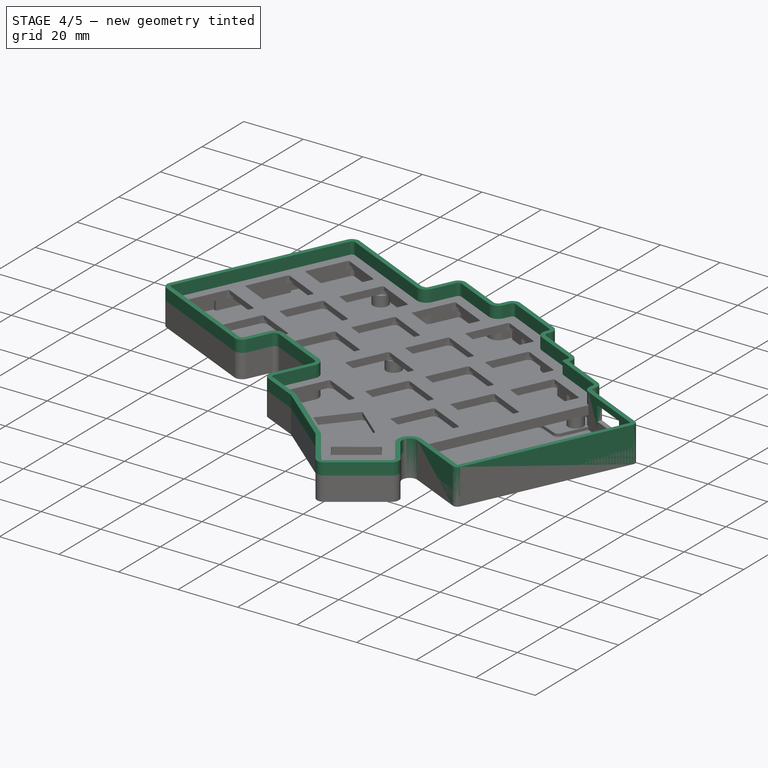
[diagram: stage 4 of 5 — iso view after this stage's code; geometry added in this stage tinted green]
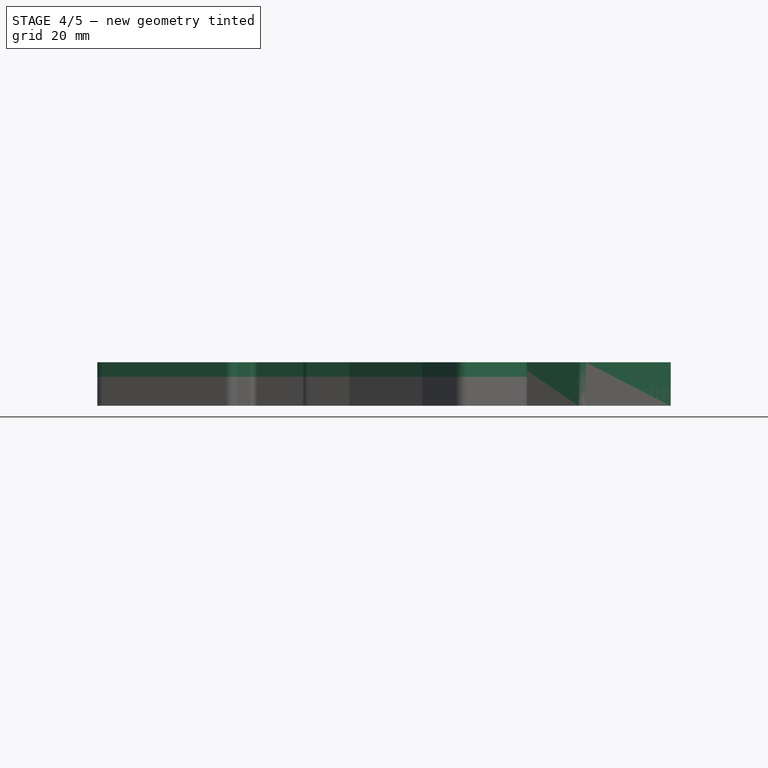
[diagram: stage 4 of 5 — front view after this stage's code; geometry added in this stage tinted green]
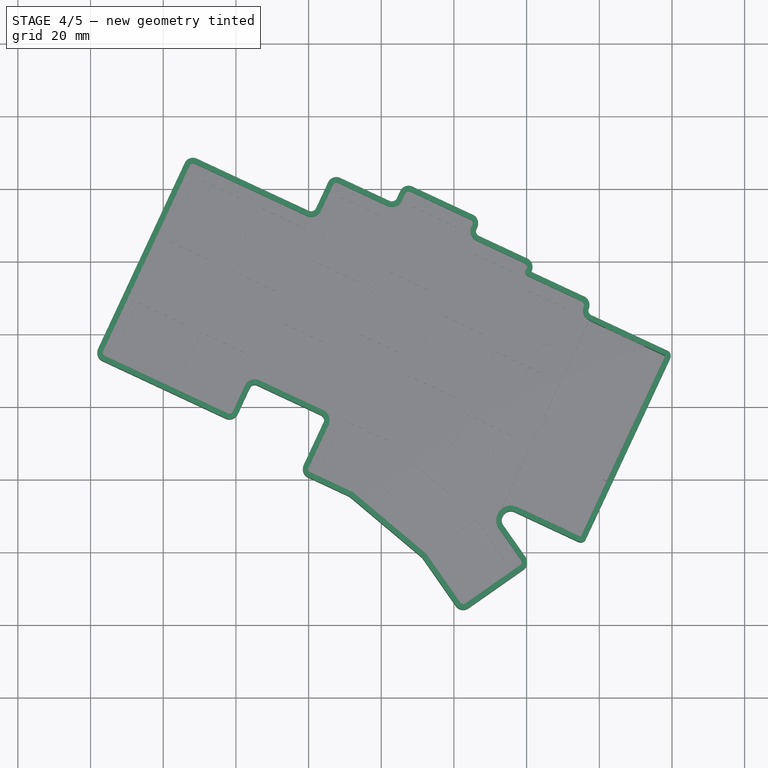
[diagram: stage 4 of 5 — top view after this stage's code; geometry added in this stage tinted green]
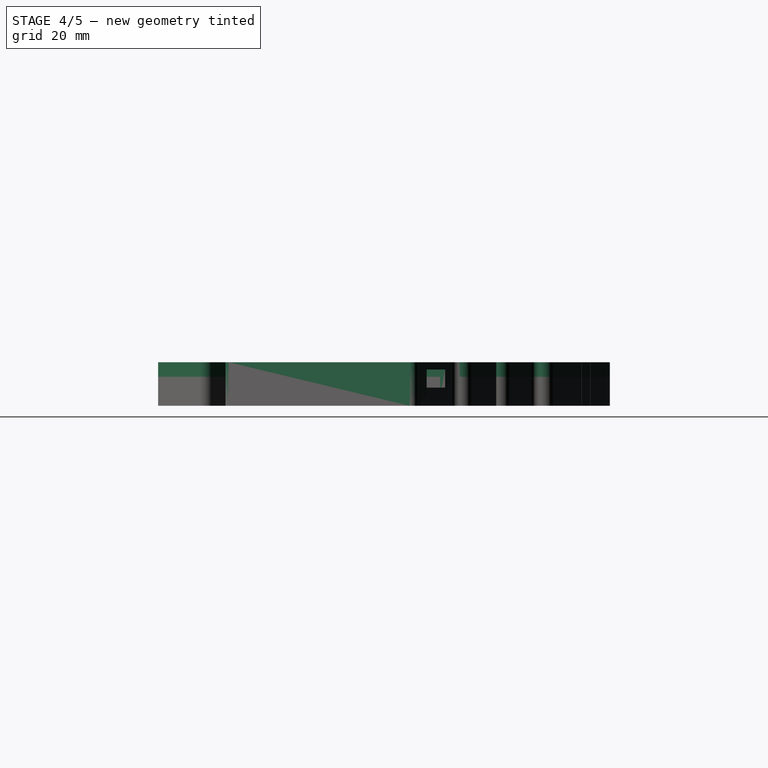
[diagram: stage 4 of 5 — right view after this stage's code; geometry added in this stage tinted green]
FEATURE [Sketcher::SketchObject] Sketch012
  FullyConstrained = false
  sketch-geometry (88):
    g0: ArcOfCircle CenterX=107.644 CenterY=0.677146 CenterZ=0 NormalX=0 NormalY=0 NormalZ=1 AngleXU=0 Radius=1 StartAngle=1.13446 EndAngle=2.70526
    g1: ArcOfCircle CenterX=127.488 CenterY=-1.70474 CenterZ=0 NormalX=0 NormalY=0 NormalZ=1 AngleXU=0 Radius=1 StartAngle=1.13446 EndAngle=2.70526
    g2: LineSegment StartX=127.911 StartY=-0.798428 StartZ=0 EndX=144.587 EndY=-8.5746 EndZ=0
    g3: ArcOfCircle CenterX=144.164 CenterY=-9.48091 CenterZ=0 NormalX=0 NormalY=0 NormalZ=1 AngleXU=0 Radius=1 StartAngle=5.84685 EndAngle=7.41765
    g4: ArcOfCircle CenterX=100.907 CenterY=-77.1421 CenterZ=0 NormalX=0 NormalY=0 NormalZ=1 AngleXU=0 Radius=1 StartAngle=2.70526 EndAngle=4.27536
    g5: LineSegment StartX=108.066 StartY=1.58345 StartZ=0 EndX=121.654 EndY=-4.75244 EndZ=0
    g6: LineSegment StartX=126.582 StartY=-1.28212 StartZ=0 EndX=125.64 EndY=-3.30137 EndZ=0
    g7: ArcOfCircle CenterX=122.921 CenterY=-2.03352 CenterZ=0 NormalX=0 NormalY=0 NormalZ=1 AngleXU=0 Radius=3 StartAngle=4.27606 EndAngle=5.84685
    g8: LineSegment StartX=145.071 StartY=-9.90353 StartZ=0 EndX=144.829 EndY=-10.4219 EndZ=0
    g9: ArcOfCircle CenterX=147.548 CenterY=-11.6898 CenterZ=0 NormalX=0 NormalY=0 NormalZ=1 AngleXU=0 Radius=3 StartAngle=2.70526 EndAngle=4.27606
    g10: ArcOfCircle CenterX=85.1953 CenterY=-55.4896 CenterZ=0 NormalX=0 NormalY=0 NormalZ=1 AngleXU=0 Radius=3 StartAngle=1.13376 EndAngle=2.70526
    g11: LineSegment StartX=105.482 StartY=-64.9645 StartZ=0 EndX=100.001 EndY=-76.7195 EndZ=0
    g12: LineSegment StartX=86.4651 StartY=-52.7715 StartZ=0 EndX=104.033 EndY=-60.9786 EndZ=0
    g13: ArcOfCircle CenterX=102.763 CenterY=-63.6967 CenterZ=0 NormalX=0 NormalY=0 NormalZ=1 AngleXU=0 Radius=3 StartAngle=5.84685 EndAngle=7.41695
    g14: LineSegment StartX=100.484 StartY=-78.0481 StartZ=0 EndX=111.722 EndY=-83.298 EndZ=0
    g15: ArcOfCircle CenterX=110.452 CenterY=-86.0161 CenterZ=0 NormalX=0 NormalY=0 NormalZ=1 AngleXU=0 Radius=3 StartAngle=0.871929 EndAngle=1.13377
    g16: LineSegment StartX=160.152 StartY=-24.0289 StartZ=0 EndX=175.22 EndY=-31.0553 EndZ=0
    g17: ArcOfCircle CenterX=160.575 CenterY=-23.1226 CenterZ=0 NormalX=0 NormalY=0 NormalZ=1 AngleXU=0 Radius=1 StartAngle=2.70526 EndAngle=4.27606
    g18: LineSegment StartX=146.28 StartY=-14.4087 StartZ=0 EndX=159.546 EndY=-20.5949 EndZ=0
    g19: LineSegment StartX=160.03 StartY=-21.9239 StartZ=0 EndX=159.668 EndY=-22.7 EndZ=0
    g20: ArcOfCircle CenterX=159.124 CenterY=-21.5013 CenterZ=0 NormalX=0 NormalY=0 NormalZ=1 AngleXU=0 Radius=1 StartAngle=5.84685 EndAngle=7.41765
    g21: ArcOfCircle CenterX=44.3394 CenterY=-45.1257 CenterZ=0 NormalX=0 NormalY=0 NormalZ=1 AngleXU=0 Radius=1 StartAngle=2.70526 EndAngle=4.27536
    g22: LineSegment StartX=43.9162 StartY=-46.0317 StartZ=0 EndX=77.8082 EndY=-61.8648 EndZ=0
    g23: LineSegment StartX=82.4764 StartY=-54.2217 StartZ=0 EndX=79.1378 EndY=-61.3814 EndZ=0
    g24: ArcOfCircle CenterX=78.2315 CenterY=-60.9587 CenterZ=0 NormalX=0 NormalY=0 NormalZ=1 AngleXU=0 Radius=1 StartAngle=4.27536 EndAngle=5.84685
    g25: LineSegment StartX=106.737 StartY=1.09976 StartZ=0 EndX=103.409 EndY=-6.03832 EndZ=0
    g26: ArcOfCircle CenterX=100.69 CenterY=-4.77046 CenterZ=0 NormalX=0 NormalY=0 NormalZ=1 AngleXU=0 Radius=3 StartAngle=4.27606 EndAngle=5.84685
    g27: LineSegment StartX=67.2641 StartY=6.40271 StartZ=0 EndX=43.4331 EndY=-44.7031 EndZ=0
    g28: LineSegment StartX=68.5931 StartY=6.8864 StartZ=0 EndX=99.422 EndY=-7.48938 EndZ=0
    g29: ArcOfCircle CenterX=68.1704 CenterY=5.98009 CenterZ=0 NormalX=0 NormalY=0 NormalZ=1 AngleXU=0 Radius=1 StartAngle=1.13446 EndAngle=2.70526
    g30: ArcOfCircle CenterX=142.568 CenterY=-113.369 CenterZ=0 NormalX=0 NormalY=0 NormalZ=1 AngleXU=0 Radius=1 StartAngle=3.75176 EndAngle=5.32324
    g31: LineSegment StartX=158.215 StartY=-103.634 StartZ=0 EndX=143.142 EndY=-114.189 EndZ=0
    g32: ArcOfCircle CenterX=157.642 CenterY=-102.815 CenterZ=0 NormalX=0 NormalY=0 NormalZ=1 AngleXU=0 Radius=1 StartAngle=5.32324 EndAngle=6.89404
    g33: LineSegment StartX=152.38 StartY=-93.5569 StartZ=0 EndX=158.461 EndY=-102.241 EndZ=0
    g34: ArcOfCircle CenterX=155.657 CenterY=-91.2626 CenterZ=0 NormalX=0 NormalY=0 NormalZ=1 AngleXU=0 Radius=4 StartAngle=1.13446 EndAngle=3.75245
    g35: LineSegment StartX=65.9047 StartY=7.03664 StartZ=0 EndX=42.0736 EndY=-44.0692 EndZ=0
    g36: ArcOfCircle CenterX=68.1704 CenterY=5.98009 CenterZ=0 NormalX=0 NormalY=0 NormalZ=1 AngleXU=0 Radius=2.5 StartAngle=1.13446 EndAngle=2.70526
    g37: LineSegment StartX=69.227 StartY=8.24586 StartZ=0 EndX=100.056 EndY=-6.12992 EndZ=0
    g38: ArcOfCircle CenterX=155.657 CenterY=-91.2626 CenterZ=0 NormalX=0 NormalY=0 NormalZ=1 AngleXU=0 Radius=2.5 StartAngle=1.13446 EndAngle=3.75244
    g39: LineSegment StartX=153.609 StartY=-92.6965 StartZ=0 EndX=159.69 EndY=-101.381 EndZ=0
    g40: ArcOfCircle CenterX=157.642 CenterY=-102.815 CenterZ=0 NormalX=0 NormalY=0 NormalZ=1 AngleXU=0 Radius=2.5 StartAngle=5.32324 EndAngle=6.89404
    g41: LineSegment StartX=159.076 StartY=-104.863 StartZ=0 EndX=144.002 EndY=-115.417 EndZ=0
    g42: ArcOfCircle CenterX=142.568 CenterY=-113.369 CenterZ=0 NormalX=0 NormalY=0 NormalZ=1 AngleXU=0 Radius=2.5 StartAngle=3.75176 EndAngle=5.32324
    g43: LineSegment StartX=99.8491 StartY=-79.4071 StartZ=0 EndX=111.087 EndY=-84.6571 EndZ=0
    g44: ArcOfCircle CenterX=110.452 CenterY=-86.0161 CenterZ=0 NormalX=0 NormalY=0 NormalZ=1 AngleXU=0 Radius=1.5 StartAngle=0.871929 EndAngle=1.13377
    g45: ArcOfCircle CenterX=100.907 CenterY=-77.1421 CenterZ=0 NormalX=0 NormalY=0 NormalZ=1 AngleXU=0 Radius=2.5 StartAngle=2.70526 EndAngle=4.27536
    g46: LineSegment StartX=104.123 StartY=-64.3306 StartZ=0 EndX=98.6415 EndY=-76.0855 EndZ=0
    g47: ArcOfCircle CenterX=102.763 CenterY=-63.6967 CenterZ=0 NormalX=0 NormalY=0 NormalZ=1 AngleXU=0 Radius=1.5 StartAngle=5.84685 EndAngle=7.41695
    g48: LineSegment StartX=85.8302 StartY=-54.1305 StartZ=0 EndX=103.398 EndY=-62.3376 EndZ=0
    g49: ArcOfCircle CenterX=85.1953 CenterY=-55.4896 CenterZ=0 NormalX=0 NormalY=0 NormalZ=1 AngleXU=0 Radius=1.5 StartAngle=1.13376 EndAngle=2.70526
    g50: LineSegment StartX=83.8359 StartY=-54.8556 StartZ=0 EndX=80.4973 EndY=-62.0153 EndZ=0
    g51: ArcOfCircle CenterX=78.2315 CenterY=-60.9587 CenterZ=0 NormalX=0 NormalY=0 NormalZ=1 AngleXU=0 Radius=2.5 StartAngle=4.27536 EndAngle=5.84685
    g52: LineSegment StartX=43.2813 StartY=-47.3907 StartZ=0 EndX=77.1734 EndY=-63.2238 EndZ=0
    g53: ArcOfCircle CenterX=44.3394 CenterY=-45.1257 CenterZ=0 NormalX=0 NormalY=0 NormalZ=1 AngleXU=0 Radius=2.5 StartAngle=2.70526 EndAngle=4.27536
    g54: ArcOfCircle CenterX=100.69 CenterY=-4.77046 CenterZ=0 NormalX=0 NormalY=0 NormalZ=1 AngleXU=0 Radius=1.5 StartAngle=4.27606 EndAngle=5.84685
    g55: LineSegment StartX=105.378 StartY=1.73369 StartZ=0 EndX=102.049 EndY=-5.40439 EndZ=0
    g56: ArcOfCircle CenterX=107.644 CenterY=0.677146 CenterZ=0 NormalX=0 NormalY=0 NormalZ=1 AngleXU=0 Radius=2.5 StartAngle=1.13446 EndAngle=2.70526
    g57: LineSegment StartX=108.7 StartY=2.94292 StartZ=0 EndX=122.288 EndY=-3.39298 EndZ=0
    g58: ArcOfCircle CenterX=122.921 CenterY=-2.03352 CenterZ=0 NormalX=0 NormalY=0 NormalZ=1 AngleXU=0 Radius=1.5 StartAngle=4.27606 EndAngle=5.84685
    g59: LineSegment StartX=125.223 StartY=-0.64819 StartZ=0 EndX=124.281 EndY=-2.66744 EndZ=0
    g60: ArcOfCircle CenterX=127.488 CenterY=-1.70474 CenterZ=0 NormalX=0 NormalY=0 NormalZ=1 AngleXU=0 Radius=2.5 StartAngle=1.13446 EndAngle=2.70526
    g61: LineSegment StartX=128.545 StartY=0.561034 StartZ=0 EndX=145.221 EndY=-7.21514 EndZ=0
    g62: ArcOfCircle CenterX=144.164 CenterY=-9.48091 CenterZ=0 NormalX=0 NormalY=0 NormalZ=1 AngleXU=0 Radius=2.5 StartAngle=5.84685 EndAngle=7.41765
    g63: LineSegment StartX=146.43 StartY=-10.5375 StartZ=0 EndX=146.188 EndY=-11.0559 EndZ=0
    g64: ArcOfCircle CenterX=147.548 CenterY=-11.6898 CenterZ=0 NormalX=0 NormalY=0 NormalZ=1 AngleXU=0 Radius=1.5 StartAngle=2.70526 EndAngle=4.27606
    g65: LineSegment StartX=146.914 StartY=-13.0493 StartZ=0 EndX=160.18 EndY=-19.2355 EndZ=0
    g66: ArcOfCircle CenterX=159.124 CenterY=-21.5013 CenterZ=0 NormalX=0 NormalY=0 NormalZ=1 AngleXU=0 Radius=2.5 StartAngle=5.84685 EndAngle=7.41765
    g67: LineSegment StartX=161.39 StartY=-22.5578 StartZ=0 EndX=161.366 EndY=-22.6089 EndZ=0
    g68: LineSegment StartX=161.511 StartY=-23.0075 StartZ=0 EndX=175.854 EndY=-29.6958 EndZ=0
    g69: ArcOfCircle CenterX=161.638 CenterY=-22.7357 CenterZ=0 NormalX=0 NormalY=0 NormalZ=1 AngleXU=0 Radius=0.3 StartAngle=2.70526 EndAngle=4.27606
    g70: LineSegment StartX=177.859 StartY=-34.8612 StartZ=0 EndX=198.794 EndY=-44.6233 EndZ=0
    g71: ArcOfCircle CenterX=198.16 CenterY=-45.9828 CenterZ=0 NormalX=0 NormalY=0 NormalZ=1 AngleXU=0 Radius=1.5 StartAngle=5.84657 EndAngle=7.41765
    g72: LineSegment StartX=177.225 StartY=-36.2207 StartZ=0 EndX=198.16 EndY=-45.9828 EndZ=0
    g73: LineSegment StartX=157.347 StartY=-87.6374 StartZ=0 EndX=174.902 EndY=-95.823 EndZ=0
    g74: LineSegment StartX=198.16 StartY=-45.9828 StartZ=0 EndX=174.902 EndY=-95.823 EndZ=0
    g75: LineSegment StartX=199.519 StartY=-46.6171 StartZ=0 EndX=176.261 EndY=-96.4573 EndZ=0
    g76: LineSegment StartX=156.713 StartY=-88.9968 StartZ=0 EndX=174.268 EndY=-97.1825 EndZ=0
    g77: ArcOfCircle CenterX=174.902 CenterY=-95.823 CenterZ=0 NormalX=0 NormalY=0 NormalZ=1 AngleXU=0 Radius=1.5 StartAngle=4.27606 EndAngle=5.84657
    g78: ArcOfCircle CenterX=178.493 CenterY=-33.5017 CenterZ=0 NormalX=0 NormalY=0 NormalZ=1 AngleXU=0 Radius=3 StartAngle=2.78845 EndAngle=4.27606
    g79: ArcOfCircle CenterX=174.797 CenterY=-31.9616 CenterZ=0 NormalX=0 NormalY=0 NormalZ=1 AngleXU=0 Radius=1 StartAngle=5.93004 EndAngle=7.41765
    g80: LineSegment StartX=175.678 StartY=-32.4642 StartZ=0 EndX=175.736 EndY=-32.3074 EndZ=0
    g81: ArcOfCircle CenterX=174.797 CenterY=-31.9616 CenterZ=0 NormalX=0 NormalY=0 NormalZ=1 AngleXU=0 Radius=2.5 StartAngle=5.93004 EndAngle=7.41765
    g82: ArcOfCircle CenterX=178.493 CenterY=-33.5017 CenterZ=0 NormalX=0 NormalY=0 NormalZ=1 AngleXU=0 Radius=1.5 StartAngle=2.78845 EndAngle=4.27606
    g83: LineSegment StartX=177.085 StartY=-32.983 StartZ=0 EndX=177.143 EndY=-32.8262 EndZ=0
    g84: LineSegment StartX=131.232 StartY=-101.519 StartZ=0 EndX=140.519 EndY=-114.802 EndZ=0
    g85: LineSegment StartX=111.417 StartY=-84.8677 StartZ=0 EndX=131.232 EndY=-101.519 EndZ=0
    g86: LineSegment StartX=132.349 StartY=-100.498 StartZ=0 EndX=141.748 EndY=-113.942 EndZ=0
    g87: LineSegment StartX=112.383 StartY=-83.7194 StartZ=0 EndX=132.349 EndY=-100.498 EndZ=0
  constraints (88):
    c: Coincident(g35,g53)
    c: Coincident(g52,g53)
    c: Coincident(g21,g27)
    c: Coincident(g21,g22)
    c: Coincident(g35,g36)
    c: Coincident(g27,g29)
    c: Coincident(g28,g29)
    c: Coincident(g36,g37)
    c: Coincident(g51,g52)
    c: Coincident(g22,g24)
    c: Coincident(g23,g24)
    c: Coincident(g50,g51)
    c: Coincident(g10,g23)
    c: Coincident(g49,g50)
    c: Coincident(g48,g49)
    c: Coincident(g10,g12)
    c: Coincident(g45,g46)
    c: Coincident(g26,g28)
    c: Coincident(g43,g45)
    c: Coincident(g4,g11)
    c: Coincident(g37,g54)
    c: Coincident(g4,g14)
    c: Coincident(g54,g55)
    c: Coincident(g47,g48)
    c: Coincident(g25,g26)
    c: Coincident(g12,g13)
    c: Coincident(g46,g47)
    c: Coincident(g55,g56)
    c: Coincident(g11,g13)
    c: Coincident(g0,g25)
    c: Coincident(g0,g5)
    c: Coincident(g56,g57)
    c: Coincident(g43,g44)
    c: Coincident(g44,g85)
    c: Coincident(g14,g15)
    c: Coincident(g15,g87)
    c: Coincident(g5,g7)
    c: Coincident(g57,g58)
    c: Coincident(g58,g59)
    c: Coincident(g59,g60)
    c: Coincident(g6,g7)
    c: Coincident(g1,g6)
    c: Coincident(g1,g2)
    c: Coincident(g60,g61)
    c: Coincident(g84,g85)
    c: Coincident(g86,g87)
    c: Coincident(g42,g84)
    c: Coincident(g30,g86)
    c: Coincident(g30,g31)
    c: Coincident(g41,g42)
    c: Coincident(g2,g3)
    c: Coincident(g8,g9)
    c: Coincident(g3,g8)
    c: Coincident(g61,g62)
    c: Coincident(g63,g64)
    c: Coincident(g9,g18)
    c: Coincident(g62,g63)
    c: Coincident(g64,g65)
    c: Coincident(g33,g34)
    c: Coincident(g38,g39)
    c: Coincident(g38,g76)
    c: Coincident(g34,g73)
    c: Coincident(g31,g32)
    c: Coincident(g32,g33)
    c: Coincident(g40,g41)
    c: Coincident(g18,g20)
    c: Coincident(g17,g19)
    c: Coincident(g39,g40)
    c: Coincident(g19,g20)
    c: Coincident(g16,g17)
    c: Coincident(g65,g66)
    c: Coincident(g67,g69)
    c: Coincident(g66,g67)
    c: Coincident(g68,g69)
    c: Coincident(g76,g77)
    c: Coincident(g73,g74)
    c: Coincident(g16,g79)
    c: Coincident(g78,g80)
    c: Coincident(g79,g80)
    c: Coincident(g68,g81)
    c: Coincident(g75,g77)
    c: Coincident(g82,g83)
    c: Coincident(g81,g83)
    c: Coincident(g72,g78)
    c: Coincident(g70,g82)
    c: Coincident(g72,g74)
    c: Coincident(g70,g71)
    c: Coincident(g71,g75)
FEATURE [PartDesign::Pad] Pad004
  BaseFeature = -> Pocket002
  Direction = (0,0,1)
  Length = 7
  Length2 = 5
  Profile = -> Sketch012
  ReferenceAxis = -> Sketch012 [N_Axis]
  Type = 4
FEATURE [Sketcher::SketchObject] Sketch014
  FullyConstrained = false
  MapMode = 5
  Placement = pos=(18.4141,39.4891,0) rot=(0.15487,0.698575,0.698575;2.83429rad)
  Support = -> [Pad004]
  sketch-geometry (4):
    g0: LineSegment StartX=-192.719 StartY=-2 StartZ=0 EndX=-180.719 EndY=-2 EndZ=0
    g1: LineSegment StartX=-180.719 StartY=-2 StartZ=0 EndX=-180.719 EndY=5 EndZ=0
    g2: LineSegment StartX=-180.719 StartY=5 StartZ=0 EndX=-192.719 EndY=5 EndZ=0
    g3: LineSegment StartX=-192.719 StartY=5 StartZ=0 EndX=-192.719 EndY=-2 EndZ=0
  constraints (11):
    c: Coincident(g0,g1)
    c: Coincident(g1,g2)
    c: Coincident(g2,g3)
    c: Coincident(g3,g0)
    c: Horizontal(g0)
    c: Horizontal(g2)
    c: Vertical(g1)
    c: Vertical(g3)
    c: DistanceX(g2,g2) = 12
    c: DistanceY(g1,g1) = 7
    c: DistanceY(g0,g-1) = 2
FEATURE [PartDesign::Pocket] Pocket006
  BaseFeature = -> Pad004
  Direction = (-0.422618,-0.906308,0)
  Length = 5
  Length2 = 5
  Profile = -> Sketch014
  ReferenceAxis = -> Sketch014 [N_Axis]
  Type = 0
FEATURE [Sketcher::SketchObject] Sketch015
  FullyConstrained = false
  sketch-geometry (5):
    g0: Circle CenterX=148.963 CenterY=-86.4822 CenterZ=0 NormalX=0 NormalY=0 NormalZ=-1 AngleXU=0 Radius=2.55
    g1: Circle CenterX=173.648 CenterY=-37.2613 CenterZ=0 NormalX=0 NormalY=0 NormalZ=-1 AngleXU=0 Radius=2.55
    g2: Circle CenterX=111.811 CenterY=-36.247 CenterZ=0 NormalX=0 NormalY=0 NormalZ=-1 AngleXU=0 Radius=2.55
    g3: Circle CenterX=84.4174 CenterY=-3.42808 CenterZ=0 NormalX=0 NormalY=0 NormalZ=-1 AngleXU=0 Radius=2.55
    g4: Circle CenterX=61.8261 CenterY=-51.4332 CenterZ=0 NormalX=0 NormalY=0 NormalZ=-1 AngleXU=0 Radius=2.55
FEATURE [Sketcher::SketchObject] Sketch016
  FullyConstrained = false
  sketch-geometry (5):
    g0: Circle CenterX=148.963 CenterY=-86.4822 CenterZ=0 NormalX=0 NormalY=0 NormalZ=-1 AngleXU=0 Radius=1.4
    g1: Circle CenterX=173.648 CenterY=-37.2613 CenterZ=0 NormalX=0 NormalY=0 NormalZ=-1 AngleXU=0 Radius=1.4
    g2: Circle CenterX=111.811 CenterY=-36.247 CenterZ=0 NormalX=0 NormalY=0 NormalZ=-1 AngleXU=0 Radius=1.4
    g3: Circle CenterX=84.4174 CenterY=-3.42808 CenterZ=0 NormalX=0 NormalY=0 NormalZ=-1 AngleXU=0 Radius=1.4
    g4: Circle CenterX=61.8261 CenterY=-51.4332 CenterZ=0 NormalX=0 NormalY=0 NormalZ=-1 AngleXU=0 Radius=1.4
FEATURE [PartDesign::Pad] Pad006
  BaseFeature = -> Pocket006
  Direction = (0,0,1)
  Length = 5
  Length2 = 10
  Profile = -> Sketch015
  ReferenceAxis = -> Sketch015 [N_Axis]
  Reversed = true
  Type = 0
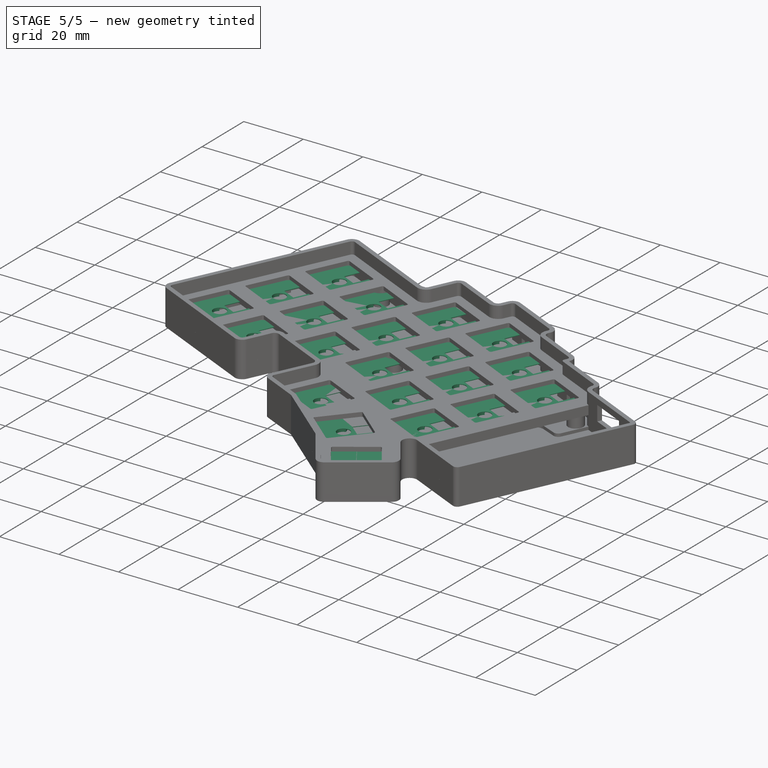
[diagram: stage 5 of 5 — iso view after this stage's code; geometry added in this stage tinted green]
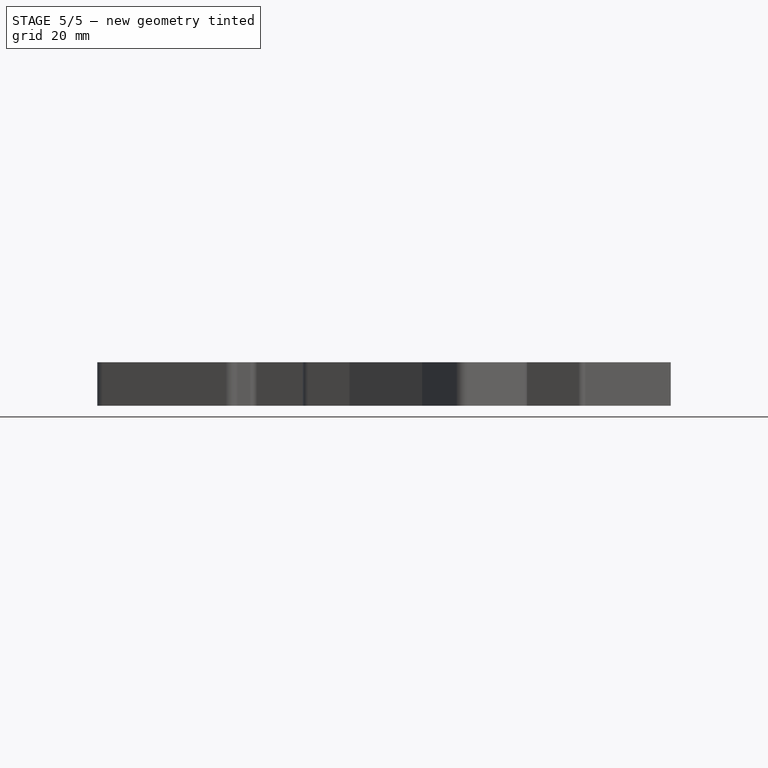
[diagram: stage 5 of 5 — front view after this stage's code; geometry added in this stage tinted green]
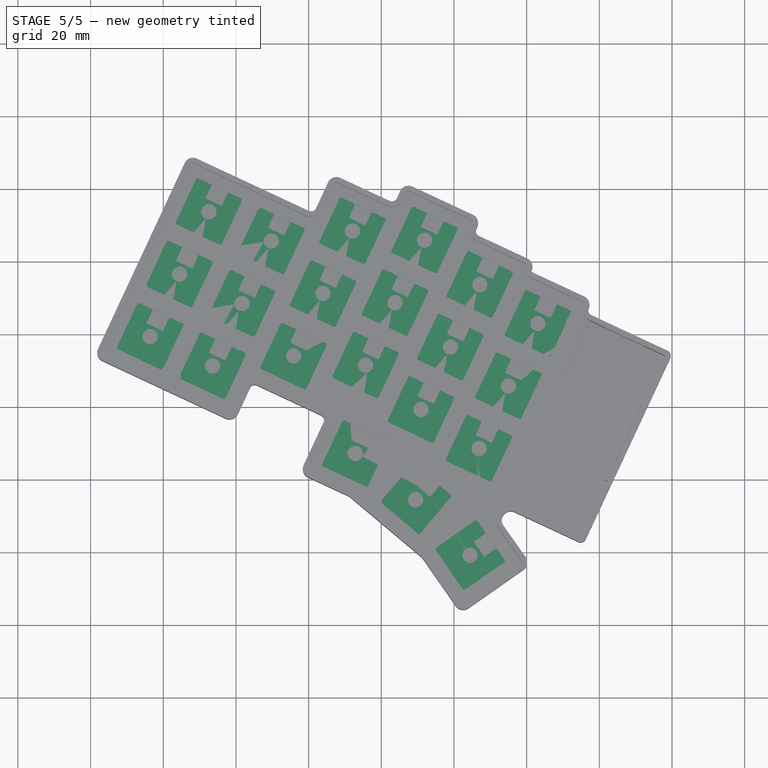
[diagram: stage 5 of 5 — top view after this stage's code; geometry added in this stage tinted green]
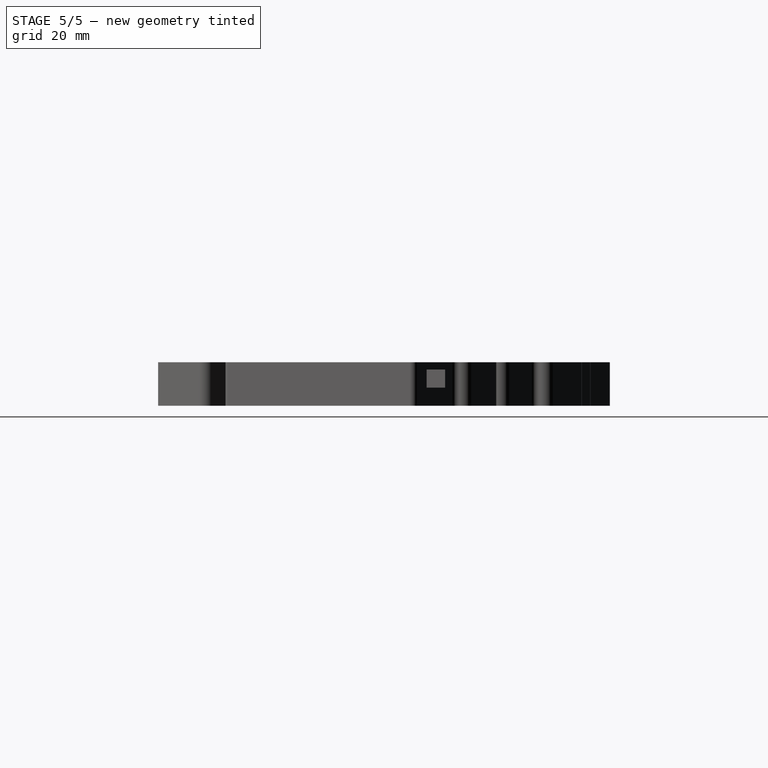
[diagram: stage 5 of 5 — right view after this stage's code; geometry added in this stage tinted green]
FEATURE [Sketcher::SketchObject] Sketch
  FullyConstrained = false
  sketch-geometry (148):
    g0: LineSegment StartX=106.702 StartY=-0.869685 StartZ=0 EndX=102.232 EndY=-10.4548 EndZ=0
    g1: LineSegment StartX=109.36 StartY=0.0976942 StartZ=0 EndX=124.941 EndY=-7.16796 EndZ=0
    g2: LineSegment StartX=106.702 StartY=-0.869685 StartZ=0 EndX=109.36 EndY=0.0976942 EndZ=0
    g3: LineSegment StartX=124.941 StartY=-7.16796 StartZ=0 EndX=126.432 EndY=-3.97051 EndZ=0
    g4: LineSegment StartX=126.432 StartY=-3.97051 StartZ=0 EndX=129.09 EndY=-3.00313 EndZ=0
    g5: LineSegment StartX=129.09 StartY=-3.00313 StartZ=0 EndX=142.14 EndY=-9.08883 EndZ=0
    g6: LineSegment StartX=142.317 StartY=-13.4433 StartZ=0 EndX=143.108 EndY=-11.7467 EndZ=0
    g7: LineSegment StartX=142.14 StartY=-9.08883 StartZ=0 EndX=143.108 EndY=-11.7467 EndZ=0
    g8: LineSegment StartX=158.363 StartY=-23.1326 StartZ=0 EndX=157.705 EndY=-24.5431 EndZ=0
    g9: LineSegment StartX=142.317 StartY=-13.4433 StartZ=0 EndX=157.396 EndY=-20.4748 EndZ=0
    g10: LineSegment StartX=158.363 StartY=-23.1326 StartZ=0 EndX=157.396 EndY=-20.4748 EndZ=0
    g11: LineSegment StartX=131.172 StartY=-97.4196 StartZ=0 EndX=140.914 EndY=-111.353 EndZ=0
    g12: LineSegment StartX=140.914 StartY=-111.353 StartZ=0 EndX=143.699 EndY=-111.845 EndZ=0
    g13: LineSegment StartX=155.823 StartY=-103.356 StartZ=0 EndX=143.699 EndY=-111.845 EndZ=0
    g14: LineSegment StartX=155.823 StartY=-103.356 StartZ=0 EndX=156.314 EndY=-100.57 EndZ=0
    g15: LineSegment StartX=114.973 StartY=-83.8061 StartZ=0 EndX=131.172 EndY=-97.4196 EndZ=0
    g16: LineSegment StartX=102.523 StartY=-77.937 StartZ=0 EndX=114.973 EndY=-83.8061 EndZ=0
    g17: LineSegment StartX=102.523 StartY=-77.937 StartZ=0 EndX=101.559 EndY=-75.2716 EndZ=0
    g18: LineSegment StartX=83.6543 StartY=-49.8028 StartZ=0 EndX=79.4693 EndY=-58.7776 EndZ=0
    g19: LineSegment StartX=79.4693 StartY=-58.7776 StartZ=0 EndX=76.812 EndY=-59.7437 EndZ=0
    g20: LineSegment StartX=45.849 StartY=-43.0716 StartZ=0 EndX=46.8157 EndY=-45.7307 EndZ=0
    g21: LineSegment StartX=67.567 StartY=3.50301 StartZ=0 EndX=45.849 EndY=-43.0716 EndZ=0
    g22: LineSegment StartX=67.567 StartY=3.50301 StartZ=0 EndX=70.2249 EndY=4.47039 EndZ=0
    g23: Circle CenterX=111.811 CenterY=-36.247 CenterZ=0 NormalX=0 NormalY=0 NormalZ=-1 AngleXU=0 Radius=2.95
    g24: LineSegment StartX=102.615 StartY=-51.8801 StartZ=0 EndX=110.691 EndY=-55.6873 EndZ=0
    g25: LineSegment StartX=101.559 StartY=-75.2716 StartZ=0 EndX=110.691 EndY=-55.6873 EndZ=0
    g26: LineSegment StartX=102.615 StartY=-51.8801 StartZ=0 EndX=100.851 EndY=-55.6289 EndZ=0
    g27: LineSegment StartX=83.6543 StartY=-49.8028 StartZ=0 EndX=98.1873 EndY=-56.5921 EndZ=0
    g28: LineSegment StartX=100.851 StartY=-55.6289 StartZ=0 EndX=98.1873 EndY=-56.5921 EndZ=0
    g29: LineSegment StartX=87.3658 StartY=-3.52257 StartZ=0 EndX=102.232 EndY=-10.4548 EndZ=0
    g30: LineSegment StartX=70.2249 StartY=4.47039 StartZ=0 EndX=82.4497 EndY=-1.23014 EndZ=0
    g31: ArcOfCircle CenterX=84.4174 CenterY=-3.42808 CenterZ=0 NormalX=0 NormalY=0 NormalZ=1 AngleXU=0 Radius=2.95 StartAngle=2.30096 EndAngle=6.25115
    g32: LineSegment StartX=46.8157 StartY=-45.7307 StartZ=0 EndX=58.8768 EndY=-51.3652 EndZ=0
    g33: LineSegment StartX=63.7708 StartY=-53.6514 StartZ=0 EndX=76.812 EndY=-59.7437 EndZ=0
    g34: ArcOfCircle CenterX=61.8261 CenterY=-51.4332 CenterZ=0 NormalX=0 NormalY=0 NormalZ=1 AngleXU=0 Radius=2.95 StartAngle=5.43219 EndAngle=9.40171
    g35: LineSegment StartX=157.705 StartY=-24.5431 StartZ=0 EndX=172.548 EndY=-31.4644 EndZ=0
    g36: LineSegment StartX=172.963 StartY=-34.3918 StartZ=0 EndX=172.548 EndY=-31.4644 EndZ=0
    g37: ArcOfCircle CenterX=173.648 CenterY=-37.2613 CenterZ=0 NormalX=0 NormalY=0 NormalZ=1 AngleXU=0 Radius=2.95 StartAngle=1.80502 EndAngle=4.46037
    g38: LineSegment StartX=148.489 StartY=-89.3939 StartZ=0 EndX=156.314 EndY=-100.57 EndZ=0
    g39: ArcOfCircle CenterX=148.963 CenterY=-86.4822 CenterZ=0 NormalX=0 NormalY=0 NormalZ=1 AngleXU=0 Radius=2.95 StartAngle=1.91553 EndAngle=4.55096
    g40: LineSegment StartX=153.371 StartY=-82.0242 StartZ=0 EndX=172.912 EndY=-40.1181 EndZ=0
    g41: LineSegment StartX=148.209 StartY=-83.6302 StartZ=0 EndX=153.371 EndY=-82.0242 EndZ=0
    g42: LineSegment StartX=147.966 StartY=-83.7058 StartZ=0 EndX=148.209 EndY=-83.6302 EndZ=0
    g43: LineSegment StartX=71.5781 StartY=-2.59867 StartZ=0 EndX=76.1096 EndY=-4.71176 EndZ=0
    g44: LineSegment StartX=76.1096 StartY=-4.71176 StartZ=0 EndX=78.2227 EndY=-0.180222 EndZ=0
    g45: LineSegment StartX=78.2227 StartY=-0.180222 StartZ=0 EndX=73.6912 EndY=1.93287 EndZ=0
    g46: LineSegment StartX=73.6912 StartY=1.93287 StartZ=0 EndX=71.5781 EndY=-2.59867 EndZ=0
    g47: LineSegment StartX=63.4883 StartY=-19.7904 StartZ=0 EndX=68.0198 EndY=-21.9035 EndZ=0
    g48: LineSegment StartX=68.0198 StartY=-21.9035 StartZ=0 EndX=70.1329 EndY=-17.3719 EndZ=0
    g49: LineSegment StartX=70.1329 StartY=-17.3719 StartZ=0 EndX=65.6014 EndY=-15.2588 EndZ=0
    g50: LineSegment StartX=65.6014 StartY=-15.2588 StartZ=0 EndX=63.4883 EndY=-19.7904 EndZ=0
    g51: LineSegment StartX=88.7771 StartY=-10.6919 StartZ=0 EndX=93.3086 EndY=-12.805 EndZ=0
    g52: LineSegment StartX=93.3086 StartY=-12.805 StartZ=0 EndX=95.4217 EndY=-8.27343 EndZ=0
    g53: LineSegment StartX=95.4217 StartY=-8.27343 StartZ=0 EndX=90.8901 EndY=-6.16034 EndZ=0
    g54: LineSegment StartX=90.8901 StartY=-6.16034 StartZ=0 EndX=88.7771 EndY=-10.6919 EndZ=0
    g55: LineSegment StartX=55.3985 StartY=-36.9821 StartZ=0 EndX=59.93 EndY=-39.0952 EndZ=0
    g56: LineSegment StartX=59.93 StartY=-39.0952 StartZ=0 EndX=62.0431 EndY=-34.5637 EndZ=0
    g57: LineSegment StartX=62.0431 StartY=-34.5637 StartZ=0 EndX=57.5116 EndY=-32.4506 EndZ=0
    g58: LineSegment StartX=57.5116 StartY=-32.4506 StartZ=0 EndX=55.3985 EndY=-36.9821 EndZ=0
    g59: LineSegment StartX=80.6872 StartY=-27.8836 StartZ=0 EndX=85.2188 EndY=-29.9967 EndZ=0
    g60: LineSegment StartX=85.2188 StartY=-29.9967 StartZ=0 EndX=87.3319 EndY=-25.4651 EndZ=0
    g61: LineSegment StartX=87.3319 StartY=-25.4651 StartZ=0 EndX=82.8003 EndY=-23.3521 EndZ=0
    g62: LineSegment StartX=82.8003 StartY=-23.3521 StartZ=0 EndX=80.6872 EndY=-27.8836 EndZ=0
    g63: LineSegment StartX=72.5974 StartY=-45.0753 StartZ=0 EndX=77.129 EndY=-47.1884 EndZ=0
    g64: LineSegment StartX=77.129 StartY=-47.1884 StartZ=0 EndX=79.2421 EndY=-42.6569 EndZ=0
    g65: LineSegment StartX=79.2421 StartY=-42.6569 StartZ=0 EndX=74.7105 EndY=-40.5438 EndZ=0
    g66: LineSegment StartX=74.7105 StartY=-40.5438 StartZ=0 EndX=72.5974 EndY=-45.0753 EndZ=0
    g67: LineSegment StartX=111.078 StartY=-7.92376 StartZ=0 EndX=115.61 EndY=-10.0369 EndZ=0
    g68: LineSegment StartX=115.61 StartY=-10.0369 StartZ=0 EndX=117.723 EndY=-5.50532 EndZ=0
    g69: LineSegment StartX=117.723 StartY=-5.50532 StartZ=0 EndX=113.191 EndY=-3.39223 EndZ=0
    g70: LineSegment StartX=113.191 StartY=-3.39223 StartZ=0 EndX=111.078 EndY=-7.92376 EndZ=0
    g71: LineSegment StartX=102.988 StartY=-25.1155 StartZ=0 EndX=107.52 EndY=-27.2286 EndZ=0
    g72: LineSegment StartX=107.52 StartY=-27.2286 StartZ=0 EndX=109.633 EndY=-22.697 EndZ=0
    g73: LineSegment StartX=109.633 StartY=-22.697 StartZ=0 EndX=105.101 EndY=-20.5839 EndZ=0
    g74: LineSegment StartX=105.101 StartY=-20.5839 StartZ=0 EndX=102.988 EndY=-25.1155 EndZ=0
    g75: LineSegment StartX=94.8985 StartY=-42.3072 StartZ=0 EndX=99.43 EndY=-44.4203 EndZ=0
    g76: LineSegment StartX=99.43 StartY=-44.4203 StartZ=0 EndX=101.543 EndY=-39.8887 EndZ=0
    g77: LineSegment StartX=101.543 StartY=-39.8887 StartZ=0 EndX=97.0116 EndY=-37.7757 EndZ=0
    g78: LineSegment StartX=97.0116 StartY=-37.7757 StartZ=0 EndX=94.8985 EndY=-42.3072 EndZ=0
    g79: LineSegment StartX=130.884 StartY=-10.4579 StartZ=0 EndX=135.416 EndY=-12.571 EndZ=0
    g80: LineSegment StartX=135.416 StartY=-12.571 StartZ=0 EndX=137.529 EndY=-8.03948 EndZ=0
    g81: LineSegment StartX=137.529 StartY=-8.03948 StartZ=0 EndX=132.997 EndY=-5.92639 EndZ=0
    g82: LineSegment StartX=132.997 StartY=-5.92639 StartZ=0 EndX=130.884 EndY=-10.4579 EndZ=0
    g83: LineSegment StartX=122.794 StartY=-27.6496 StartZ=0 EndX=127.326 EndY=-29.7627 EndZ=0
    g84: LineSegment StartX=127.326 StartY=-29.7627 StartZ=0 EndX=129.439 EndY=-25.2312 EndZ=0
    g85: LineSegment StartX=129.439 StartY=-25.2312 StartZ=0 EndX=124.907 EndY=-23.1181 EndZ=0
    g86: LineSegment StartX=124.907 StartY=-23.1181 StartZ=0 EndX=122.794 EndY=-27.6496 EndZ=0
    g87: LineSegment StartX=114.705 StartY=-44.8414 StartZ=0 EndX=119.236 EndY=-46.9545 EndZ=0
    g88: LineSegment StartX=119.236 StartY=-46.9545 StartZ=0 EndX=121.349 EndY=-42.4229 EndZ=0
    g89: LineSegment StartX=121.349 StartY=-42.4229 StartZ=0 EndX=116.818 EndY=-40.3098 EndZ=0
    g90: LineSegment StartX=116.818 StartY=-40.3098 StartZ=0 EndX=114.705 EndY=-44.8414 EndZ=0
    g91: LineSegment StartX=146.124 StartY=-22.6821 StartZ=0 EndX=150.655 EndY=-24.7951 EndZ=0
    g92: LineSegment StartX=150.655 StartY=-24.7951 StartZ=0 EndX=152.768 EndY=-20.2636 EndZ=0
    g93: LineSegment StartX=152.768 StartY=-20.2636 StartZ=0 EndX=148.237 EndY=-18.1505 EndZ=0
    g94: LineSegment StartX=148.237 StartY=-18.1505 StartZ=0 EndX=146.124 EndY=-22.6821 EndZ=0
    g95: LineSegment StartX=138.034 StartY=-39.8738 StartZ=0 EndX=142.565 EndY=-41.9869 EndZ=0
    g96: LineSegment StartX=142.565 StartY=-41.9869 StartZ=0 EndX=144.679 EndY=-37.4553 EndZ=0
    g97: LineSegment StartX=144.679 StartY=-37.4553 StartZ=0 EndX=140.147 EndY=-35.3422 EndZ=0
    g98: LineSegment StartX=140.147 StartY=-35.3422 StartZ=0 EndX=138.034 EndY=-39.8738 EndZ=0
    g99: LineSegment StartX=129.944 StartY=-57.0655 StartZ=0 EndX=134.476 EndY=-59.1786 EndZ=0
    g100: LineSegment StartX=134.476 StartY=-59.1786 StartZ=0 EndX=136.589 EndY=-54.647 EndZ=0
    g101: LineSegment StartX=136.589 StartY=-54.647 StartZ=0 EndX=132.057 EndY=-52.5339 EndZ=0
    g102: LineSegment StartX=132.057 StartY=-52.5339 StartZ=0 EndX=129.944 EndY=-57.0655 EndZ=0
    g103: LineSegment StartX=162.093 StartY=-33.3843 StartZ=0 EndX=166.624 EndY=-35.4973 EndZ=0
    g104: LineSegment StartX=166.624 StartY=-35.4973 StartZ=0 EndX=168.737 EndY=-30.9658 EndZ=0
    g105: LineSegment StartX=168.737 StartY=-30.9658 StartZ=0 EndX=164.206 EndY=-28.8527 EndZ=0
    g106: LineSegment StartX=164.206 StartY=-28.8527 StartZ=0 EndX=162.093 EndY=-33.3843 EndZ=0
    g107: LineSegment StartX=154.003 StartY=-50.576 StartZ=0 EndX=158.535 EndY=-52.6891 EndZ=0
    g108: LineSegment StartX=158.535 StartY=-52.6891 StartZ=0 EndX=160.648 EndY=-48.1575 EndZ=0
    g109: LineSegment StartX=160.648 StartY=-48.1575 StartZ=0 EndX=156.116 EndY=-46.0444 EndZ=0
    g110: LineSegment StartX=156.116 StartY=-46.0444 StartZ=0 EndX=154.003 EndY=-50.576 EndZ=0
    g111: LineSegment StartX=145.913 StartY=-67.7677 StartZ=0 EndX=150.445 EndY=-69.8808 EndZ=0
    g112: LineSegment StartX=150.445 StartY=-69.8808 StartZ=0 EndX=152.558 EndY=-65.3492 EndZ=0
    g113: LineSegment StartX=152.558 StartY=-65.3492 StartZ=0 EndX=148.026 EndY=-63.2361 EndZ=0
    g114: LineSegment StartX=148.026 StartY=-63.2361 StartZ=0 EndX=145.913 EndY=-67.7677 EndZ=0
    g115: LineSegment StartX=111.864 StartY=-69.1605 StartZ=0 EndX=116.396 EndY=-71.2736 EndZ=0
    g116: LineSegment StartX=116.396 StartY=-71.2736 StartZ=0 EndX=118.509 EndY=-66.742 EndZ=0
    g117: LineSegment StartX=118.509 StartY=-66.742 StartZ=0 EndX=113.977 EndY=-64.629 EndZ=0
    g118: LineSegment StartX=113.977 StartY=-64.629 StartZ=0 EndX=111.864 EndY=-69.1605 EndZ=0
    g119: LineSegment StartX=129.607 StartY=-81.5348 StartZ=0 EndX=133.437 EndY=-84.7489 EndZ=0
    g120: LineSegment StartX=133.437 StartY=-84.7489 StartZ=0 EndX=136.651 EndY=-80.9188 EndZ=0
    g121: LineSegment StartX=136.651 StartY=-80.9188 StartZ=0 EndX=132.821 EndY=-77.7047 EndZ=0
    g122: LineSegment StartX=132.821 StartY=-77.7047 StartZ=0 EndX=129.607 EndY=-81.5348 EndZ=0
    g123: LineSegment StartX=145.445 StartY=-97.1319 StartZ=0 EndX=148.313 EndY=-101.228 EndZ=0
    g124: LineSegment StartX=148.313 StartY=-101.228 StartZ=0 EndX=152.409 EndY=-98.3599 EndZ=0
    g125: LineSegment StartX=152.409 StartY=-98.3599 StartZ=0 EndX=149.541 EndY=-94.2641 EndZ=0
    g126: LineSegment StartX=149.541 StartY=-94.2641 StartZ=0 EndX=145.445 EndY=-97.1319 EndZ=0
    g127: Circle CenterX=72.5625 CenterY=-6.2557 CenterZ=0 NormalX=0 NormalY=0 NormalZ=-1 AngleXU=0 Radius=2.1
    g128: Circle CenterX=89.7615 CenterY=-14.3489 CenterZ=0 NormalX=0 NormalY=0 NormalZ=-1 AngleXU=0 Radius=2.1
    g129: Circle CenterX=64.4727 CenterY=-23.4474 CenterZ=0 NormalX=0 NormalY=0 NormalZ=-1 AngleXU=0 Radius=2.1
    g130: Circle CenterX=81.6716 CenterY=-31.5406 CenterZ=0 NormalX=0 NormalY=0 NormalZ=-1 AngleXU=0 Radius=2.1
    g131: Circle CenterX=56.3829 CenterY=-40.6391 CenterZ=0 NormalX=0 NormalY=0 NormalZ=-1 AngleXU=0 Radius=2.1
    g132: Circle CenterX=73.5818 CenterY=-48.7323 CenterZ=0 NormalX=0 NormalY=0 NormalZ=-1 AngleXU=0 Radius=2.1
    g133: Circle CenterX=112.063 CenterY=-11.5808 CenterZ=0 NormalX=0 NormalY=0 NormalZ=-1 AngleXU=0 Radius=2.1
    g134: Circle CenterX=103.973 CenterY=-28.7725 CenterZ=0 NormalX=0 NormalY=0 NormalZ=-1 AngleXU=0 Radius=2.1
    g135: Circle CenterX=95.8829 CenterY=-45.9642 CenterZ=0 NormalX=0 NormalY=0 NormalZ=-1 AngleXU=0 Radius=2.1
    g136: Circle CenterX=131.869 CenterY=-14.115 CenterZ=0 NormalX=0 NormalY=0 NormalZ=-1 AngleXU=0 Radius=2.1
    g137: Circle CenterX=123.779 CenterY=-31.3067 CenterZ=0 NormalX=0 NormalY=0 NormalZ=-1 AngleXU=0 Radius=2.1
    g138: Circle CenterX=115.689 CenterY=-48.4984 CenterZ=0 NormalX=0 NormalY=0 NormalZ=-1 AngleXU=0 Radius=2.1
    g139: Circle CenterX=147.108 CenterY=-26.3391 CenterZ=0 NormalX=0 NormalY=0 NormalZ=-1 AngleXU=0 Radius=2.1
    g140: Circle CenterX=139.018 CenterY=-43.5308 CenterZ=0 NormalX=0 NormalY=0 NormalZ=-1 AngleXU=0 Radius=2.1
    g141: Circle CenterX=130.929 CenterY=-60.7225 CenterZ=0 NormalX=0 NormalY=0 NormalZ=-1 AngleXU=0 Radius=2.1
    g142: Circle CenterX=163.077 CenterY=-37.0413 CenterZ=0 NormalX=0 NormalY=0 NormalZ=-1 AngleXU=0 Radius=2.1
    g143: Circle CenterX=154.987 CenterY=-54.233 CenterZ=0 NormalX=0 NormalY=0 NormalZ=-1 AngleXU=0 Radius=2.1
    g144: Circle CenterX=146.898 CenterY=-71.4247 CenterZ=0 NormalX=0 NormalY=0 NormalZ=-1 AngleXU=0 Radius=2.1
    g145: Circle CenterX=112.849 CenterY=-72.8175 CenterZ=0 NormalX=0 NormalY=0 NormalZ=-1 AngleXU=0 Radius=2.1
    g146: Circle CenterX=129.432 CenterY=-85.5477 CenterZ=0 NormalX=0 NormalY=0 NormalZ=-1 AngleXU=0 Radius=2.1
    g147: Circle CenterX=144.446 CenterY=-100.817 CenterZ=0 NormalX=0 NormalY=0 NormalZ=-1 AngleXU=0 Radius=2.1
  constraints (126):
    c: Coincident(g20,g21)
    c: Coincident(g20,g32)
    c: Coincident(g55,g58)
    c: Coincident(g57,g58)
    c: Coincident(g32,g34)
    c: Coincident(g55,g56)
    c: Coincident(g56,g57)
    c: Coincident(g47,g50)
    c: Coincident(g33,g34)
    c: Coincident(g49,g50)
    c: Coincident(g21,g22)
    c: Coincident(g47,g48)
    c: Coincident(g48,g49)
    c: Coincident(g22,g30)
    c: Coincident(g43,g46)
    c: Coincident(g63,g66)
    c: Coincident(g45,g46)
    c: Coincident(g65,g66)
    c: Coincident(g43,g44)
    c: Coincident(g19,g33)
    c: Coincident(g63,g64)
    c: Coincident(g44,g45)
    c: Coincident(g64,g65)
    c: Coincident(g18,g19)
    c: Coincident(g59,g62)
    c: Coincident(g30,g31)
    c: Coincident(g61,g62)
    c: Coincident(g18,g27)
    c: Coincident(g59,g60)
    c: Coincident(g60,g61)
    c: Coincident(g29,g31)
    c: Coincident(g51,g54)
    c: Coincident(g53,g54)
    c: Coincident(g51,g52)
    c: Coincident(g75,g78)
    c: Coincident(g52,g53)
    c: Coincident(g77,g78)
    c: Coincident(g27,g28)
    c: Coincident(g75,g76)
    c: Coincident(g26,g28)
    c: Coincident(g76,g77)
    c: Coincident(g17,g25)
    c: Coincident(g0,g29)
    c: Coincident(g16,g17)
    c: Coincident(g24,g26)
    c: Coincident(g71,g74)
    c: Coincident(g73,g74)
    c: Coincident(g0,g2)
    c: Coincident(g71,g72)
    c: Coincident(g1,g2)
    c: Coincident(g72,g73)
    c: Coincident(g24,g25)
    c: Coincident(g67,g70)
    c: Coincident(g115,g118)
    c: Coincident(g69,g70)
    c: Coincident(g117,g118)
    c: Coincident(g87,g90)
    c: Coincident(g15,g16)
    c: Coincident(g67,g68)
    c: Coincident(g115,g116)
    c: Coincident(g89,g90)
    c: Coincident(g68,g69)
    c: Coincident(g116,g117)
    c: Coincident(g87,g88)
    c: Coincident(g88,g89)
    c: Coincident(g83,g86)
    c: Coincident(g85,g86)
    c: Coincident(g1,g3)
    c: Coincident(g3,g4)
    c: Coincident(g83,g84)
    c: Coincident(g4,g5)
    c: Coincident(g84,g85)
    c: Coincident(g119,g122)
    c: Coincident(g99,g102)
    c: Coincident(g79,g82)
    c: Coincident(g11,g15)
    c: Coincident(g101,g102)
    c: Coincident(g121,g122)
    c: Coincident(g81,g82)
    c: Coincident(g119,g120)
    c: Coincident(g99,g100)
    c: Coincident(g79,g80)
    c: Coincident(g100,g101)
    c: Coincident(g120,g121)
    c: Coincident(g80,g81)
    c: Coincident(g95,g98)
    c: Coincident(g97,g98)
    c: Coincident(g11,g12)
    c: Coincident(g5,g7)
    c: Coincident(g6,g9)
    c: Coincident(g95,g96)
    c: Coincident(g6,g7)
    c: Coincident(g12,g13)
    c: Coincident(g96,g97)
    c: Coincident(g123,g126)
    c: Coincident(g111,g114)
    c: Coincident(g91,g94)
    c: Coincident(g39,g42)
    c: Coincident(g113,g114)
    c: Coincident(g41,g42)
    c: Coincident(g93,g94)
    c: Coincident(g123,g124)
    c: Coincident(g38,g39)
    c: Coincident(g125,g126)
    c: Coincident(g111,g112)
    c: Coincident(g91,g92)
    c: Coincident(g124,g125)
    c: Coincident(g112,g113)
    c: Coincident(g92,g93)
    c: Coincident(g40,g41)
    c: Coincident(g107,g110)
    c: Coincident(g13,g14)
    c: Coincident(g109,g110)
    c: Coincident(g14,g38)
    c: Coincident(g9,g10)
    c: Coincident(g8,g35)
    c: Coincident(g8,g10)
    c: Coincident(g107,g108)
    c: Coincident(g108,g109)
    c: Coincident(g103,g106)
    c: Coincident(g105,g106)
    c: Coincident(g103,g104)
    c: Coincident(g104,g105)
    c: Coincident(g35,g36)
    c: Coincident(g37,g40)
    c: Coincident(g36,g37)
FEATURE [PartDesign::Pad] Pad
  Direction = (0,0,1)
  Length = 1
  Length2 = 10
  Profile = -> Sketch
  ReferenceAxis = -> Sketch [N_Axis]
  Type = 0
FEATURE [Sketcher::SketchObject] Sketch001
  FullyConstrained = false
  sketch-geometry (21):
    g0: Circle CenterX=74.9004 CenterY=-1.38945 CenterZ=0 NormalX=0 NormalY=0 NormalZ=-1 AngleXU=0 Radius=4.8
    g1: Circle CenterX=66.8106 CenterY=-18.5812 CenterZ=0 NormalX=0 NormalY=0 NormalZ=-1 AngleXU=0 Radius=4.8
    g2: Circle CenterX=92.0994 CenterY=-9.48266 CenterZ=0 NormalX=0 NormalY=0 NormalZ=-1 AngleXU=0 Radius=4.8
    g3: Circle CenterX=58.7208 CenterY=-35.7729 CenterZ=0 NormalX=0 NormalY=0 NormalZ=-1 AngleXU=0 Radius=4.8
    g4: Circle CenterX=84.0096 CenterY=-26.6744 CenterZ=0 NormalX=0 NormalY=0 NormalZ=-1 AngleXU=0 Radius=4.8
    g5: Circle CenterX=75.9198 CenterY=-43.8661 CenterZ=0 NormalX=0 NormalY=0 NormalZ=-1 AngleXU=0 Radius=4.8
    g6: Circle CenterX=114.4 CenterY=-6.71454 CenterZ=0 NormalX=0 NormalY=0 NormalZ=-1 AngleXU=0 Radius=4.8
    g7: Circle CenterX=106.311 CenterY=-23.9063 CenterZ=0 NormalX=0 NormalY=0 NormalZ=-1 AngleXU=0 Radius=4.8
    g8: Circle CenterX=98.2208 CenterY=-41.098 CenterZ=0 NormalX=0 NormalY=0 NormalZ=-1 AngleXU=0 Radius=4.8
    g9: Circle CenterX=134.206 CenterY=-9.24871 CenterZ=0 NormalX=0 NormalY=0 NormalZ=-1 AngleXU=0 Radius=4.8
    g10: Circle CenterX=126.117 CenterY=-26.4404 CenterZ=0 NormalX=0 NormalY=0 NormalZ=-1 AngleXU=0 Radius=4.8
    g11: Circle CenterX=118.027 CenterY=-43.6321 CenterZ=0 NormalX=0 NormalY=0 NormalZ=-1 AngleXU=0 Radius=4.8
    g12: Circle CenterX=149.446 CenterY=-21.4728 CenterZ=0 NormalX=0 NormalY=0 NormalZ=-1 AngleXU=0 Radius=4.8
    g13: Circle CenterX=141.356 CenterY=-38.6645 CenterZ=0 NormalX=0 NormalY=0 NormalZ=-1 AngleXU=0 Radius=4.8
    g14: Circle CenterX=133.266 CenterY=-55.8563 CenterZ=0 NormalX=0 NormalY=0 NormalZ=-1 AngleXU=0 Radius=4.8
    g15: Circle CenterX=165.415 CenterY=-32.175 CenterZ=0 NormalX=0 NormalY=0 NormalZ=-1 AngleXU=0 Radius=4.8
    g16: Circle CenterX=157.325 CenterY=-49.3667 CenterZ=0 NormalX=0 NormalY=0 NormalZ=-1 AngleXU=0 Radius=4.8
    g17: Circle CenterX=149.235 CenterY=-66.5585 CenterZ=0 NormalX=0 NormalY=0 NormalZ=-1 AngleXU=0 Radius=4.8
    g18: Circle CenterX=115.186 CenterY=-67.9513 CenterZ=0 NormalX=0 NormalY=0 NormalZ=-1 AngleXU=0 Radius=4.8
    g19: Circle CenterX=133.129 CenterY=-81.2268 CenterZ=0 NormalX=0 NormalY=0 NormalZ=-1 AngleXU=0 Radius=4.8
    g20: Circle CenterX=148.927 CenterY=-97.7459 CenterZ=0 NormalX=0 NormalY=0 NormalZ=-1 AngleXU=0 Radius=4.8
FEATURE [PartDesign::Pocket] Pocket
  BaseFeature = -> Pad
  Direction = (0,0,-1)
  Length = 0.8
  Length2 = 5
  Profile = -> Sketch001
  ReferenceAxis = -> Sketch001 [N_Axis]
  Reversed = true
  Type = 0
FEATURE [PartDesign::Pocket] Pocket007
  BaseFeature = -> Pad006
  Direction = (0,0,-1)
  Length = 5
  Length2 = 2.5
  Profile = -> Sketch016
  ReferenceAxis = -> Sketch016 [N_Axis]
  Type = 4
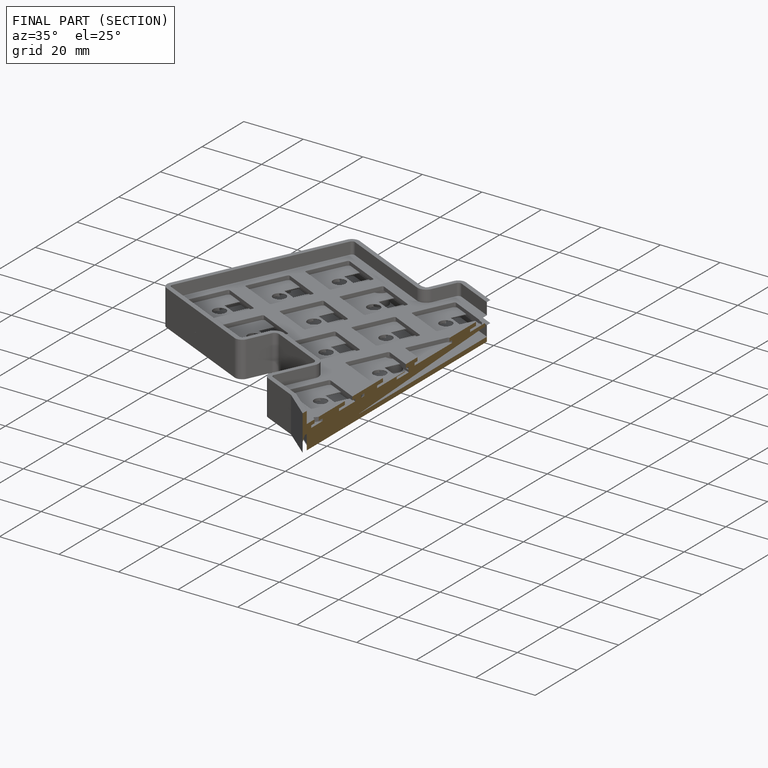
[diagram: finished part — half-section view (interior)]
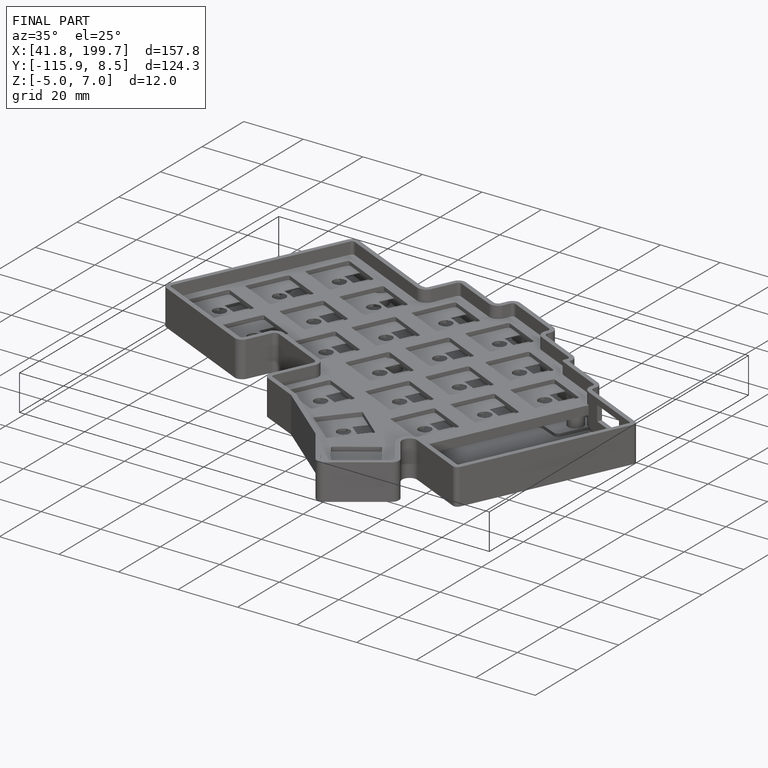
[diagram: finished part — iso view with bounding-box wireframe]
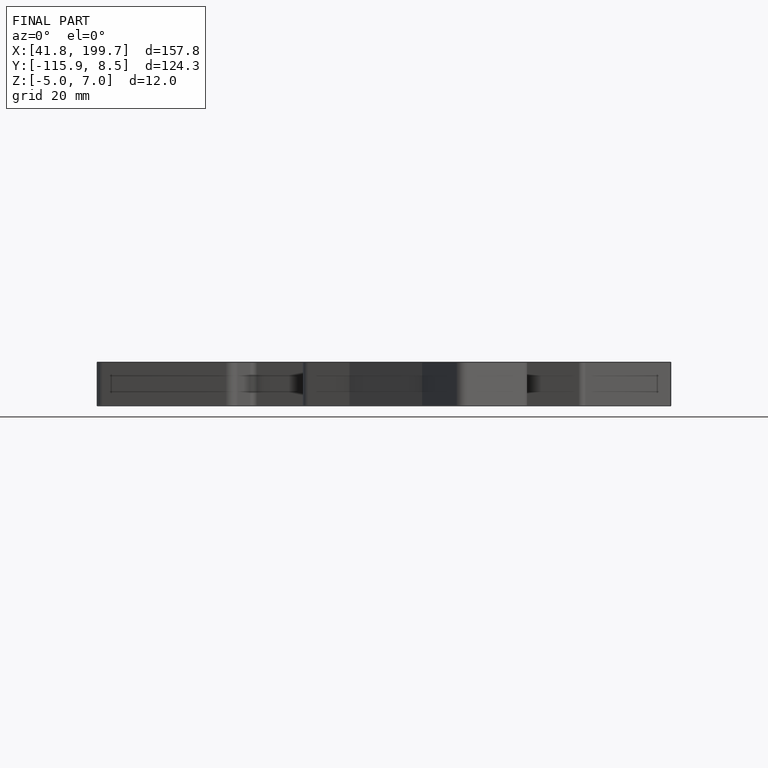
[diagram: finished part — front view with bounding-box wireframe]
